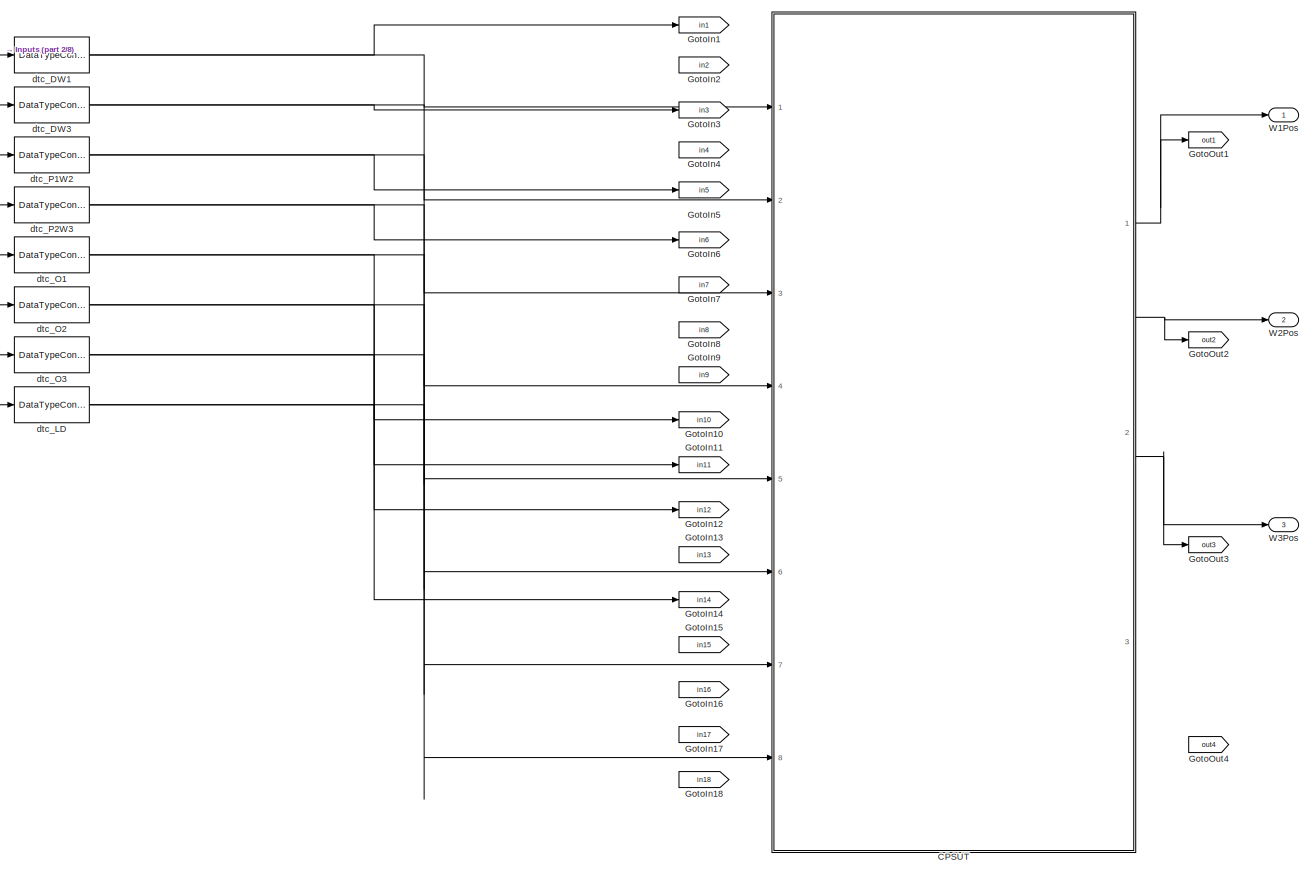
[diagram: root canvas - part 1/8, top left region]
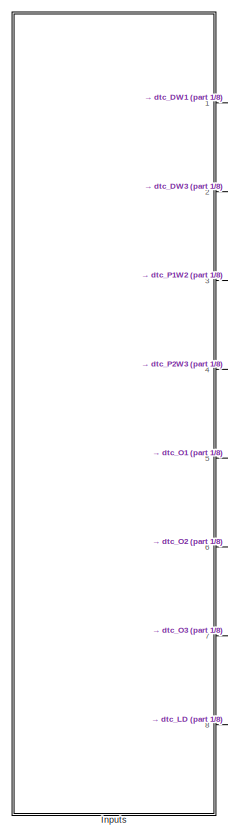
[diagram: root canvas - part 2/8, top left region]
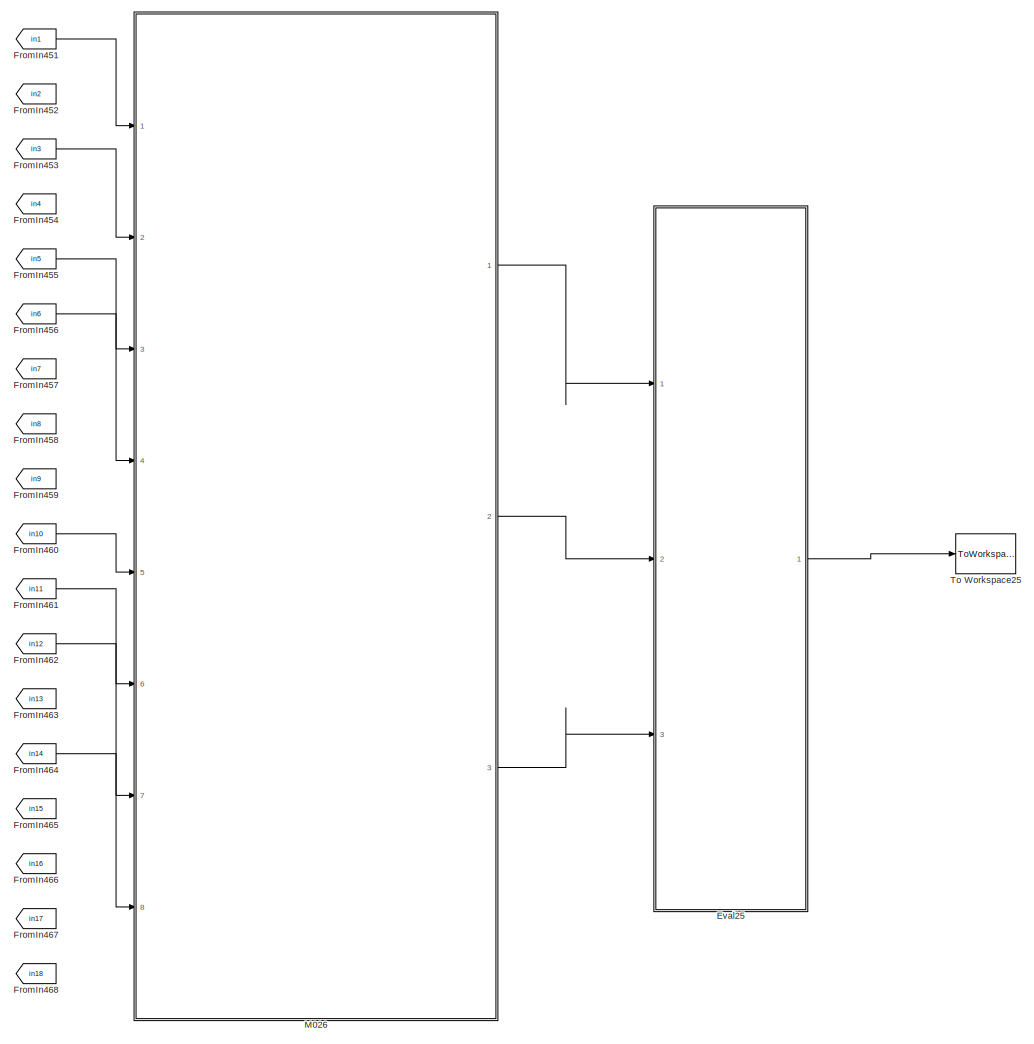
[diagram: root canvas - part 3/8, top center region]
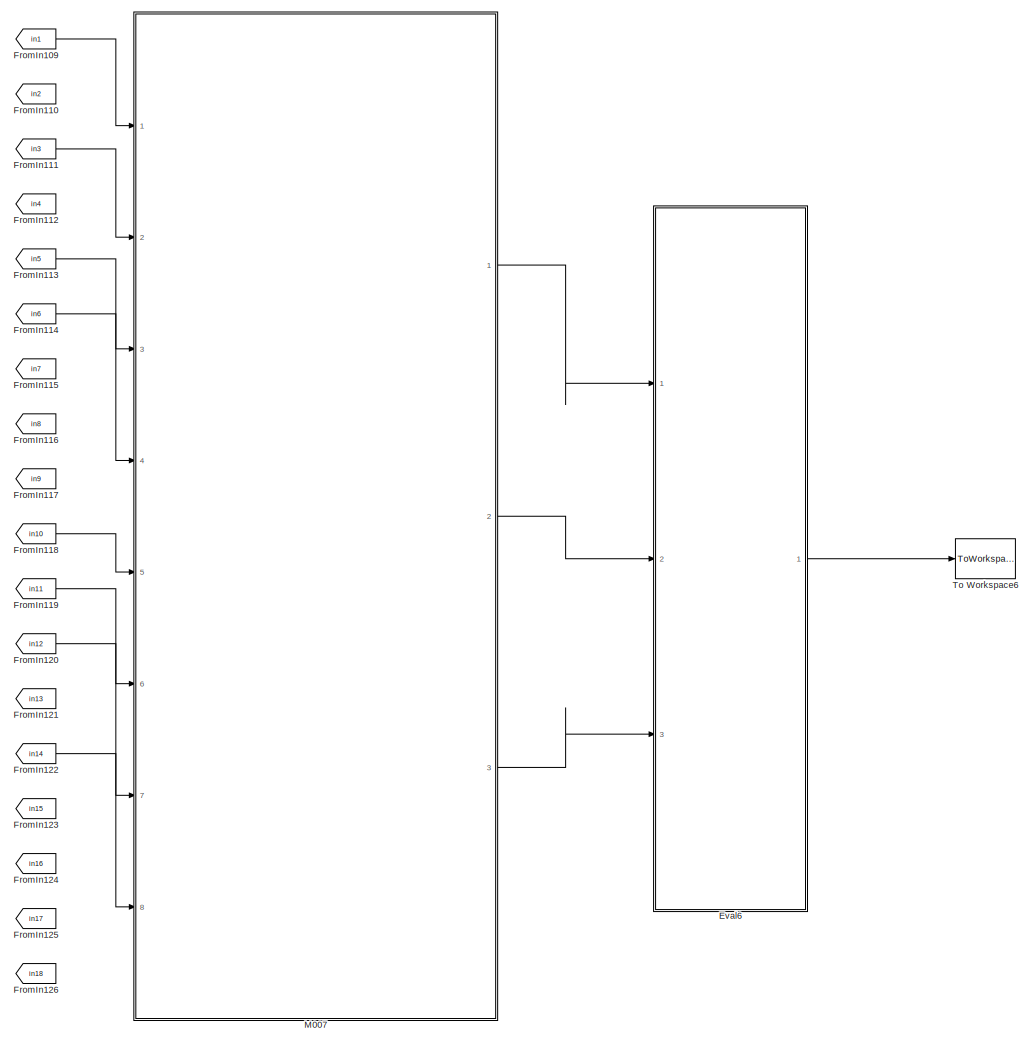
[diagram: root canvas - part 4/8, central region]
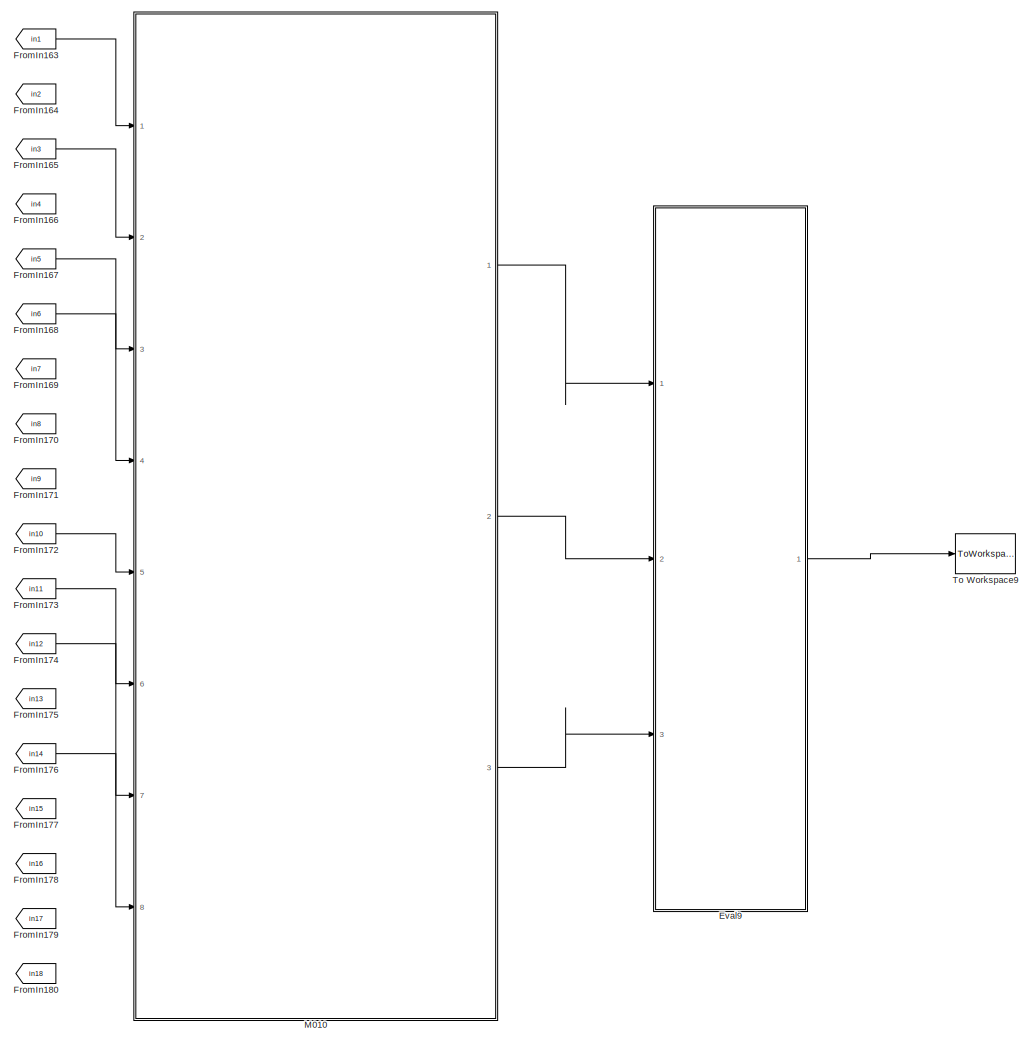
[diagram: root canvas - part 5/8, central region]
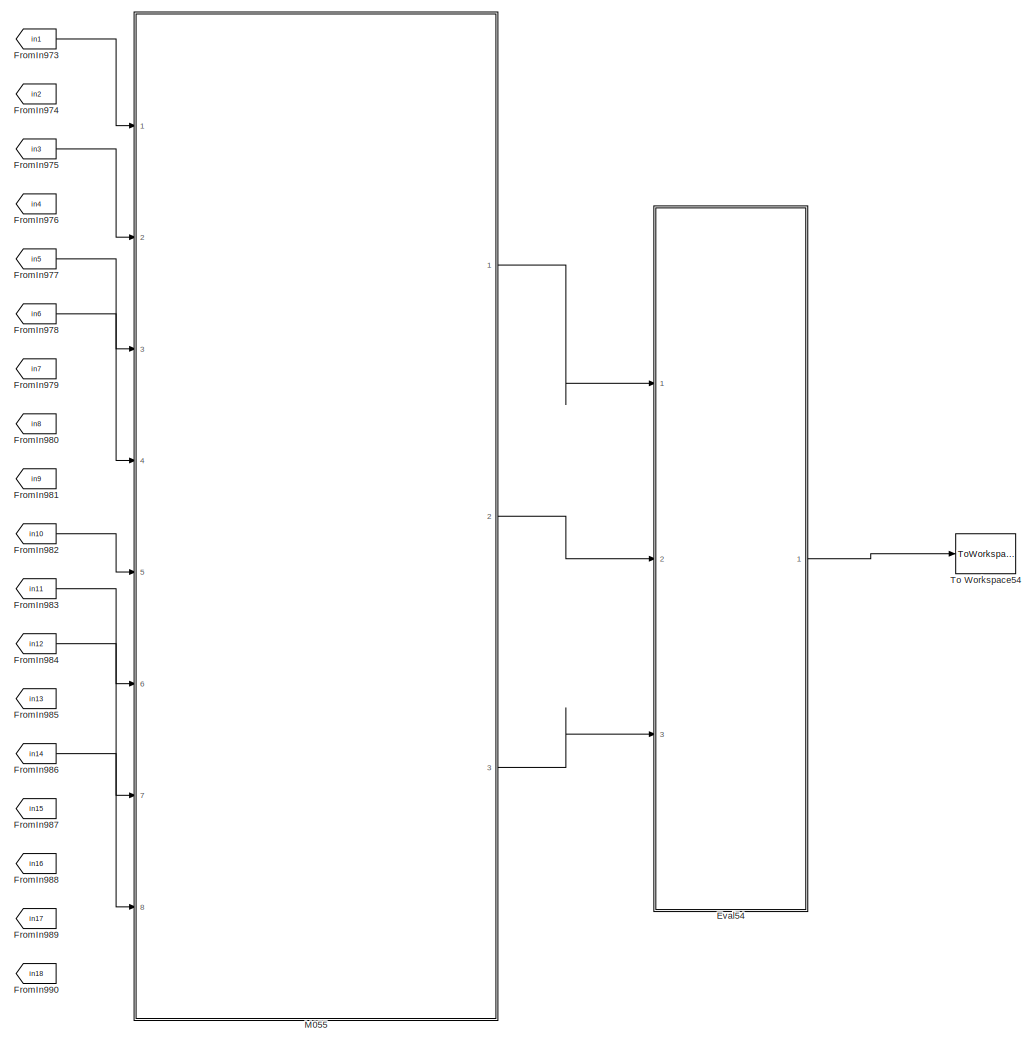
[diagram: root canvas - part 6/8, bottom right region]
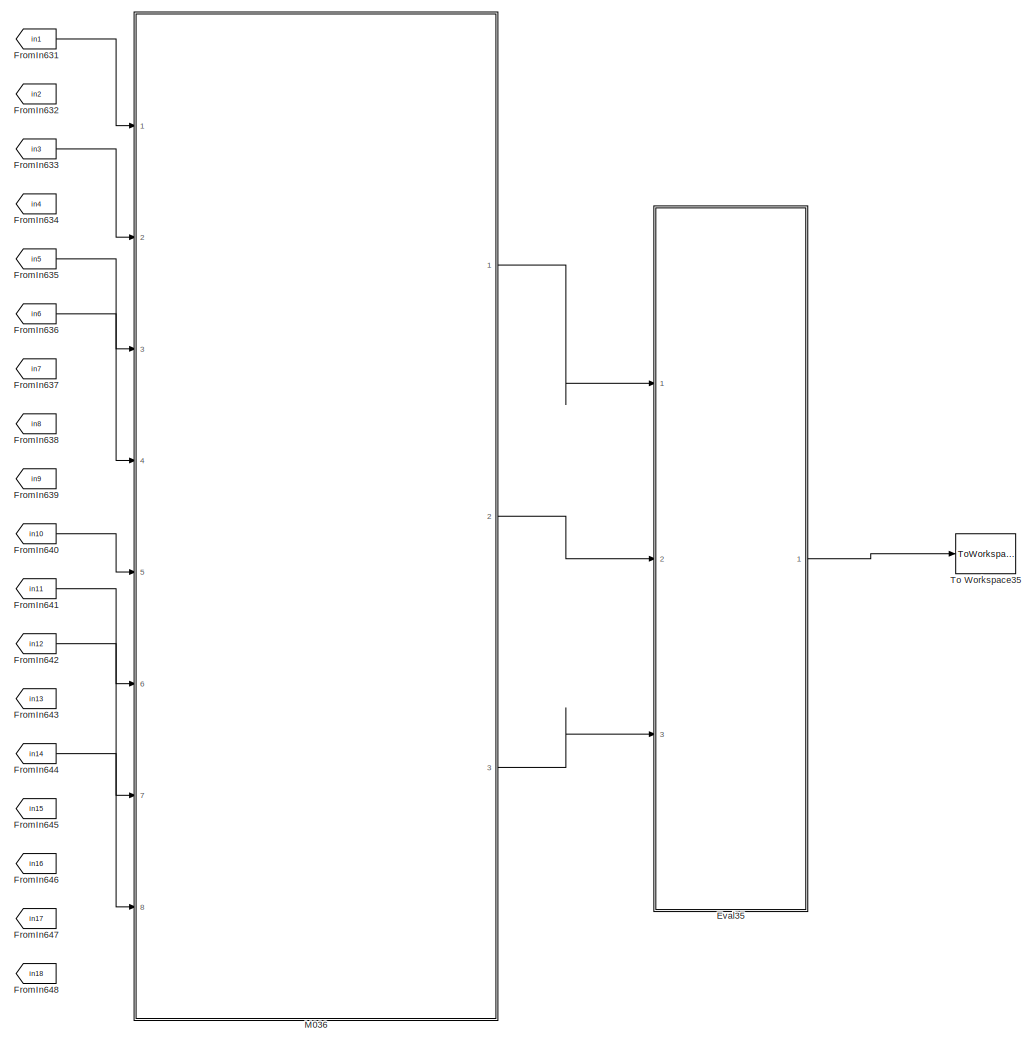
[diagram: root canvas - part 7/8, bottom center region]
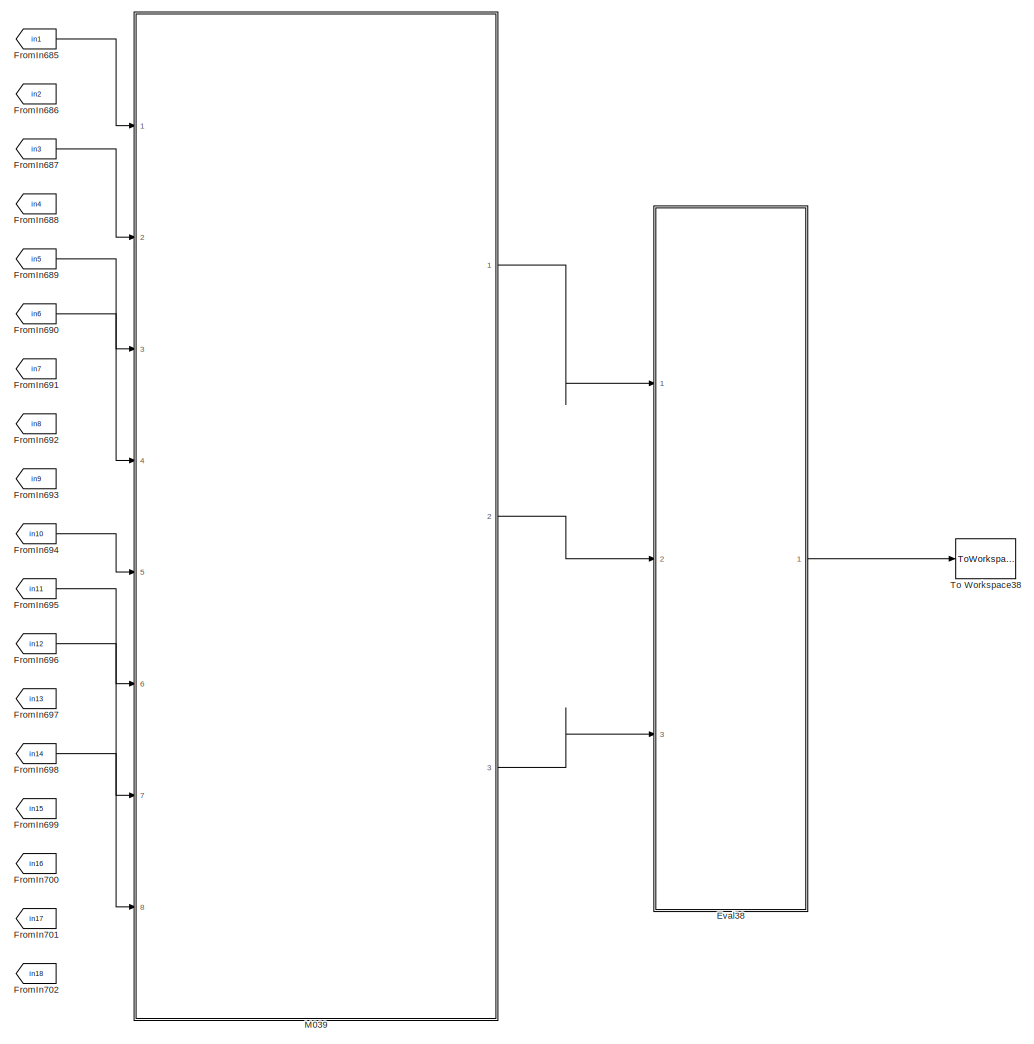
[diagram: root canvas - part 8/8, bottom center region]
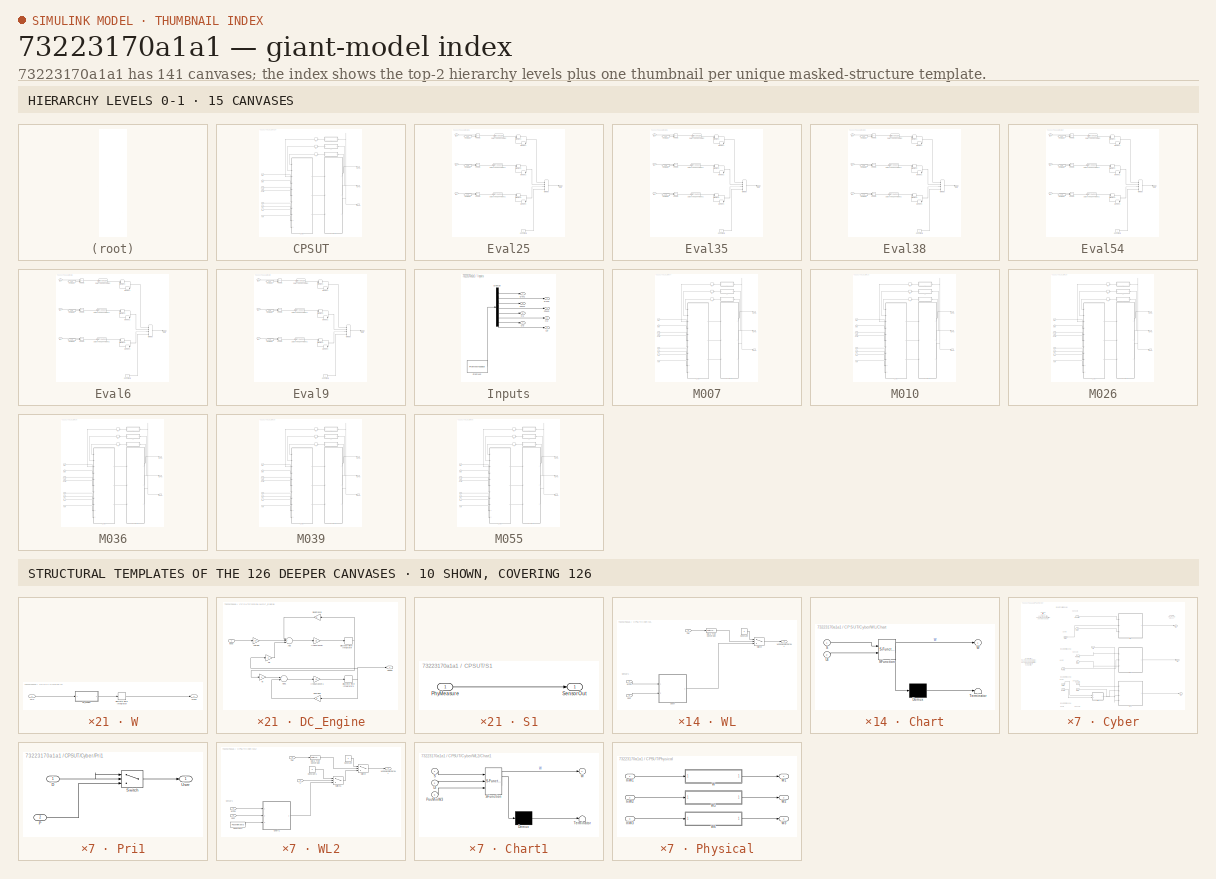
[diagram: thumbnail index - top-2 hierarchy levels (15 canvases) + 10 structural-template representatives of the remaining 126 canvases]
MODEL slx_73223170a1a1
KIND model
CONFIG AbsTol = auto
CONFIG EnableMultiTasking = on
CONFIG FixedStep = auto
CONFIG MaxStep = auto
CONFIG MinStep = auto
CONFIG RelTol = 1e-3
CONFIG SampleTimeConstraint = Unconstrained
CONFIG Solver = ode3
CONFIG SolverName = ode3
CONFIG StartTime = 0.0
CONFIG StopTime = 10.0
BLOCK [SubSystem] CPSUT
  Ports = [8, 3]
  RequestExecContextInheritance = off
BLOCK [SubSystem] CPSUT/Cyber
  Ports = [11, 3]
  RequestExecContextInheritance = off
BLOCK [Inport] CPSUT/Cyber/DW1
  IconDisplay = Port number
  Port = 4
BLOCK [Inport] CPSUT/Cyber/DW3
  IconDisplay = Port number
  Port = 5
BLOCK [Inport] CPSUT/Cyber/LD
  IconDisplay = Port number
  Port = 11
BLOCK [Inport] CPSUT/Cyber/OW1
  IconDisplay = Port number
  Port = 8
BLOCK [Inport] CPSUT/Cyber/OW2
  IconDisplay = Port number
  Port = 9
BLOCK [Inport] CPSUT/Cyber/OW3
  IconDisplay = Port number
  Port = 10
BLOCK [Inport] CPSUT/Cyber/P1W2
  IconDisplay = Port number
  Port = 6
BLOCK [Inport] CPSUT/Cyber/P2W3
  IconDisplay = Port number
  Port = 7
BLOCK [Inport] CPSUT/Cyber/PosW1
  IconDisplay = Port number
BLOCK [Inport] CPSUT/Cyber/PosW2
  IconDisplay = Port number
  Port = 2
BLOCK [Inport] CPSUT/Cyber/PosW3
  IconDisplay = Port number
  Port = 3
BLOCK [SubSystem] CPSUT/Cyber/Pri1
  Ports = [2, 1]
  RequestExecContextInheritance = off
BLOCK [Inport] CPSUT/Cyber/Pri1/D
  IconDisplay = Port number
BLOCK [Inport] CPSUT/Cyber/Pri1/P
  IconDisplay = Port number
  Port = 2
BLOCK [Switch] CPSUT/Cyber/Pri1/Switch
  Criteria = u2 ~= 0
  InputSameDT = off
  SaturateOnIntegerOverflow = off
BLOCK [Outport] CPSUT/Cyber/Pri1/User
  IconDisplay = Port number
BLOCK [Outport] CPSUT/Cyber/W1
  IconDisplay = Port number
BLOCK [Outport] CPSUT/Cyber/W2
  IconDisplay = Port number
  Port = 2
BLOCK [Outport] CPSUT/Cyber/W3
  IconDisplay = Port number
  Port = 3
BLOCK [SubSystem] CPSUT/Cyber/WL
  Ports = [3, 1]
  RequestExecContextInheritance = off
BLOCK [SubSystem] CPSUT/Cyber/WL/Chart
  ErrorFcn = Stateflow.Translate.translate
  PermitHierarchicalResolution = ExplicitOnly
  Ports = [2, 1]
  RequestExecContextInheritance = off
  SFBlockType = Chart
  TreatAsAtomicUnit = on
BLOCK [Demux] CPSUT/Cyber/WL/Chart/ Demux 
  Outputs = 1
  Ports = [1, 1]
BLOCK [S-Function] CPSUT/Cyber/WL/Chart/ SFunction 
  EnableBusSupport = off
  FunctionName = sf_sfun
  PortCounts = [2 2]
  Ports = [2, 2]
  SFcnIsStateOwnerBlock = off
  SFunctionDeploymentMode = off
  Tag = Stateflow S-Function c00027M_harness 1
BLOCK [Terminator] CPSUT/Cyber/WL/Chart/ Terminator 
BLOCK [Inport] CPSUT/Cyber/WL/Chart/S
  IconDisplay = Port number
BLOCK [Inport] CPSUT/Cyber/WL/Chart/UI
  IconDisplay = Port number
  Port = 2
BLOCK [Outport] CPSUT/Cyber/WL/Chart/W
  IconDisplay = Port number
BLOCK [Constant] CPSUT/Cyber/WL/Constant
  Value = -1
BLOCK [DataTypeConversion] CPSUT/Cyber/WL/Data Type Conversion
  RndMeth = Floor
  SaturateOnIntegerOverflow = off
BLOCK [Inport] CPSUT/Cyber/WL/OW
  IconDisplay = Port number
  Port = 3
BLOCK [Switch] CPSUT/Cyber/WL/Switch
  Criteria = u2 ~= 0
  InputSameDT = off
  SaturateOnIntegerOverflow = off
  Threshold = 1
  ZeroCross = off
BLOCK [Inport] CPSUT/Cyber/WL/User
  IconDisplay = Port number
  Port = 2
BLOCK [Inport] CPSUT/Cyber/WL/WPos
  IconDisplay = Port number
BLOCK [Outport] CPSUT/Cyber/WL/WindowLogicOutput
  IconDisplay = Port number
BLOCK [SubSystem] CPSUT/Cyber/WL1
  Ports = [3, 1]
  RequestExecContextInheritance = off
BLOCK [SubSystem] CPSUT/Cyber/WL1/Chart1
  ErrorFcn = Stateflow.Translate.translate
  PermitHierarchicalResolution = ExplicitOnly
  Ports = [2, 1]
  RequestExecContextInheritance = off
  SFBlockType = Chart
  TreatAsAtomicUnit = on
BLOCK [Demux] CPSUT/Cyber/WL1/Chart1/ Demux 
  Outputs = 1
  Ports = [1, 1]
BLOCK [S-Function] CPSUT/Cyber/WL1/Chart1/ SFunction 
  EnableBusSupport = off
  FunctionName = sf_sfun
  PortCounts = [2 2]
  Ports = [2, 2]
  SFcnIsStateOwnerBlock = off
  SFunctionDeploymentMode = off
  Tag = Stateflow S-Function c00027M_harness 3
BLOCK [Terminator] CPSUT/Cyber/WL1/Chart1/ Terminator 
BLOCK [Inport] CPSUT/Cyber/WL1/Chart1/S
  IconDisplay = Port number
BLOCK [Inport] CPSUT/Cyber/WL1/Chart1/UI
  IconDisplay = Port number
  Port = 2
BLOCK [Outport] CPSUT/Cyber/WL1/Chart1/W
  IconDisplay = Port number
BLOCK [Constant] CPSUT/Cyber/WL1/Constant
  Value = -1
BLOCK [DataTypeConversion] CPSUT/Cyber/WL1/Data Type Conversion
  RndMeth = Floor
  SaturateOnIntegerOverflow = off
BLOCK [Inport] CPSUT/Cyber/WL1/OW
  IconDisplay = Port number
  Port = 3
BLOCK [Switch] CPSUT/Cyber/WL1/Switch
  Criteria = u2 ~= 0
  InputSameDT = off
  SaturateOnIntegerOverflow = off
  Threshold = 1
  ZeroCross = off
BLOCK [Inport] CPSUT/Cyber/WL1/User
  IconDisplay = Port number
  Port = 2
BLOCK [Inport] CPSUT/Cyber/WL1/WPos
  IconDisplay = Port number
BLOCK [Outport] CPSUT/Cyber/WL1/WindowLogicOutput
  IconDisplay = Port number
BLOCK [SubSystem] CPSUT/Cyber/WL2
  Ports = [4, 1]
  RequestExecContextInheritance = off
BLOCK [SubSystem] CPSUT/Cyber/WL2/Chart1
  ErrorFcn = Stateflow.Translate.translate
  PermitHierarchicalResolution = ExplicitOnly
  Ports = [3, 1]
  RequestExecContextInheritance = off
  SFBlockType = Chart
  TreatAsAtomicUnit = on
BLOCK [Demux] CPSUT/Cyber/WL2/Chart1/ Demux 
  Outputs = 1
  Ports = [1, 1]
BLOCK [S-Function] CPSUT/Cyber/WL2/Chart1/ SFunction 
  EnableBusSupport = off
  FunctionName = sf_sfun
  PortCounts = [3 2]
  Ports = [3, 2]
  SFcnIsStateOwnerBlock = off
  SFunctionDeploymentMode = off
  Tag = Stateflow S-Function c00027M_harness 2
BLOCK [Terminator] CPSUT/Cyber/WL2/Chart1/ Terminator 
BLOCK [Inport] CPSUT/Cyber/WL2/Chart1/PosMinW3
  IconDisplay = Port number
  Port = 3
BLOCK [Inport] CPSUT/Cyber/WL2/Chart1/S
  IconDisplay = Port number
BLOCK [Inport] CPSUT/Cyber/WL2/Chart1/UI
  IconDisplay = Port number
  Port = 2
BLOCK [Outport] CPSUT/Cyber/WL2/Chart1/W
  IconDisplay = Port number
BLOCK [Constant] CPSUT/Cyber/WL2/Constant
  Value = -1
BLOCK [Constant] CPSUT/Cyber/WL2/Constant1
  Value = 0
BLOCK [Constant] CPSUT/Cyber/WL2/Constant2
  Value = PosMinimaW3
BLOCK [DataTypeConversion] CPSUT/Cyber/WL2/Data Type Conversion
  RndMeth = Floor
  SaturateOnIntegerOverflow = off
BLOCK [Inport] CPSUT/Cyber/WL2/L
  IconDisplay = Port number
  Port = 4
BLOCK [Inport] CPSUT/Cyber/WL2/OW
  IconDisplay = Port number
  Port = 3
BLOCK [Switch] CPSUT/Cyber/WL2/Switch
  Criteria = u2 ~= 0
  InputSameDT = off
  SaturateOnIntegerOverflow = off
  Threshold = 1
  ZeroCross = off
BLOCK [Switch] CPSUT/Cyber/WL2/Switch1
  Criteria = u2 ~= 0
  InputSameDT = off
  SaturateOnIntegerOverflow = off
BLOCK [Inport] CPSUT/Cyber/WL2/User
  IconDisplay = Port number
  Port = 2
BLOCK [Inport] CPSUT/Cyber/WL2/WPos
  IconDisplay = Port number
BLOCK [Outport] CPSUT/Cyber/WL2/WindowLogicOutput
  IconDisplay = Port number
BLOCK [Inport] CPSUT/DW1
  IconDisplay = Port number
  OutDataTypeStr = int8
  OutMax = 4
  OutMin = 0
BLOCK [Inport] CPSUT/DW3
  IconDisplay = Port number
  OutDataTypeStr = int8
  OutMax = 4
  OutMin = 0
  Port = 2
BLOCK [Inport] CPSUT/LD
  IconDisplay = Port number
  OutDataTypeStr = boolean
  Port = 8
BLOCK [Memory] CPSUT/M
BLOCK [Memory] CPSUT/M1
BLOCK [Memory] CPSUT/M2
BLOCK [Inport] CPSUT/O1
  IconDisplay = Port number
  OutDataTypeStr = boolean
  Port = 5
BLOCK [Inport] CPSUT/O2
  IconDisplay = Port number
  OutDataTypeStr = boolean
  Port = 6
BLOCK [Inport] CPSUT/O3
  IconDisplay = Port number
  OutDataTypeStr = boolean
  Port = 7
BLOCK [Inport] CPSUT/P1W2
  IconDisplay = Port number
  OutDataTypeStr = int8
  OutMax = 4
  OutMin = 0
  Port = 3
BLOCK [Inport] CPSUT/P2W3
  IconDisplay = Port number
  OutDataTypeStr = int8
  OutMax = 4
  OutMin = 0
  Port = 4
BLOCK [SubSystem] CPSUT/Physical
  Ports = [3, 3]
  RequestExecContextInheritance = off
BLOCK [Inport] CPSUT/Physical/InW1
  IconDisplay = Port number
BLOCK [Inport] CPSUT/Physical/InW2
  IconDisplay = Port number
  Port = 2
BLOCK [Inport] CPSUT/Physical/InW3
  IconDisplay = Port number
  Port = 3
BLOCK [SubSystem] CPSUT/Physical/W
  Ports = [1, 1]
  RequestExecContextInheritance = off
BLOCK [SubSystem] CPSUT/Physical/W/DC_Engine
  Ports = [1, 1]
  RequestExecContextInheritance = off
BLOCK [Gain] CPSUT/Physical/W/DC_Engine/(Inductance)
  Gain = 1/L
  OutDataTypeStr = Inherit: Inherit via internal rule
  ParamDataTypeStr = Inherit: Inherit via internal rule
  SaturateOnIntegerOverflow = off
BLOCK [Gain] CPSUT/Physical/W/DC_Engine/(Inductance)1
  Gain = 1/J
  OutDataTypeStr = Inherit: Inherit via internal rule
  ParamDataTypeStr = Inherit: Inherit via internal rule
  SaturateOnIntegerOverflow = off
BLOCK [Sum] CPSUT/Physical/W/DC_Engine/Add
  InputSameDT = off
  Inputs = -+-
  OutDataTypeStr = Inherit: Inherit via internal rule
  Ports = [3, 1]
  SaturateOnIntegerOverflow = off
BLOCK [Sum] CPSUT/Physical/W/DC_Engine/Add1
  InputSameDT = off
  Inputs = +-
  OutDataTypeStr = Inherit: Inherit via internal rule
  Ports = [2, 1]
  SaturateOnIntegerOverflow = off
BLOCK [Gain] CPSUT/Physical/W/DC_Engine/Damping
  Gain = b
  OutDataTypeStr = Inherit: Inherit via internal rule
  ParamDataTypeStr = Inherit: Inherit via internal rule
  SaturateOnIntegerOverflow = off
BLOCK [DiscreteIntegrator] CPSUT/Physical/W/DC_Engine/Discrete-Time Integrator
  ICPrevOutput = DiscIntNeverNeededParam
  ICPrevScaledInput = DiscIntNeverNeededParam
  Ports = [1, 1]
  SampleTime = -1
BLOCK [DiscreteIntegrator] CPSUT/Physical/W/DC_Engine/Discrete-Time Integrator1
  ICPrevOutput = DiscIntNeverNeededParam
  ICPrevScaledInput = DiscIntNeverNeededParam
  Ports = [1, 1]
  SampleTime = -1
BLOCK [Gain] CPSUT/Physical/W/DC_Engine/Ke
  Gain = K
  OutDataTypeStr = Inherit: Inherit via internal rule
  ParamDataTypeStr = Inherit: Inherit via internal rule
  SaturateOnIntegerOverflow = off
BLOCK [Gain] CPSUT/Physical/W/DC_Engine/Kt
  Gain = K
  OutDataTypeStr = Inherit: Inherit via internal rule
  ParamDataTypeStr = Inherit: Inherit via internal rule
  SaturateOnIntegerOverflow = off
BLOCK [Gain] CPSUT/Physical/W/DC_Engine/Resistance
  Gain = R
  OutDataTypeStr = Inherit: Inherit via internal rule
  ParamDataTypeStr = Inherit: Inherit via internal rule
  SaturateOnIntegerOverflow = off
BLOCK [Outport] CPSUT/Physical/W/DC_Engine/Speed
  IconDisplay = Port number
BLOCK [Gain] CPSUT/Physical/W/DC_Engine/Voltage
  Gain = 10
  OutDataTypeStr = Inherit: Inherit via internal rule
  ParamDataTypeStr = Inherit: Inherit via internal rule
  SaturateOnIntegerOverflow = off
BLOCK [Inport] CPSUT/Physical/W/DC_Engine/input
  IconDisplay = Port number
BLOCK [DiscreteIntegrator] CPSUT/Physical/W/Discrete-Time Integrator
  ICPrevOutput = DiscIntNeverNeededParam
  ICPrevScaledInput = DiscIntNeverNeededParam
  InitialCondition = 5
  LimitOutput = on
  LowerSaturationLimit = 0
  Ports = [1, 1]
  SampleTime = -1
  UpperSaturationLimit = 5
BLOCK [Inport] CPSUT/Physical/W/WIn
  IconDisplay = Port number
BLOCK [Outport] CPSUT/Physical/W/WPos
  IconDisplay = Port number
BLOCK [Outport] CPSUT/Physical/W1
  IconDisplay = Port number
BLOCK [Outport] CPSUT/Physical/W2
  IconDisplay = Port number
  Port = 2
BLOCK [Outport] CPSUT/Physical/W3
  IconDisplay = Port number
  Port = 3
BLOCK [SubSystem] CPSUT/Physical/W5
  Ports = [1, 1]
  RequestExecContextInheritance = off
BLOCK [SubSystem] CPSUT/Physical/W5/DC_Engine
  Ports = [1, 1]
  RequestExecContextInheritance = off
BLOCK [Gain] CPSUT/Physical/W5/DC_Engine/(Inductance)
  Gain = 1/L
  OutDataTypeStr = Inherit: Inherit via internal rule
  ParamDataTypeStr = Inherit: Inherit via internal rule
  SaturateOnIntegerOverflow = off
BLOCK [Gain] CPSUT/Physical/W5/DC_Engine/(Inductance)1
  Gain = 1/J
  OutDataTypeStr = Inherit: Inherit via internal rule
  ParamDataTypeStr = Inherit: Inherit via internal rule
  SaturateOnIntegerOverflow = off
BLOCK [Sum] CPSUT/Physical/W5/DC_Engine/Add
  InputSameDT = off
  Inputs = -+-
  OutDataTypeStr = Inherit: Inherit via internal rule
  Ports = [3, 1]
  SaturateOnIntegerOverflow = off
BLOCK [Sum] CPSUT/Physical/W5/DC_Engine/Add1
  InputSameDT = off
  Inputs = +-
  OutDataTypeStr = Inherit: Inherit via internal rule
  Ports = [2, 1]
  SaturateOnIntegerOverflow = off
BLOCK [Gain] CPSUT/Physical/W5/DC_Engine/Damping
  Gain = b
  OutDataTypeStr = Inherit: Inherit via internal rule
  ParamDataTypeStr = Inherit: Inherit via internal rule
  SaturateOnIntegerOverflow = off
BLOCK [DiscreteIntegrator] CPSUT/Physical/W5/DC_Engine/Discrete-Time Integrator
  ICPrevOutput = DiscIntNeverNeededParam
  ICPrevScaledInput = DiscIntNeverNeededParam
  Ports = [1, 1]
  SampleTime = -1
BLOCK [DiscreteIntegrator] CPSUT/Physical/W5/DC_Engine/Discrete-Time Integrator1
  ICPrevOutput = DiscIntNeverNeededParam
  ICPrevScaledInput = DiscIntNeverNeededParam
  Ports = [1, 1]
  SampleTime = -1
BLOCK [Gain] CPSUT/Physical/W5/DC_Engine/Ke
  Gain = K
  OutDataTypeStr = Inherit: Inherit via internal rule
  ParamDataTypeStr = Inherit: Inherit via internal rule
  SaturateOnIntegerOverflow = off
BLOCK [Gain] CPSUT/Physical/W5/DC_Engine/Kt
  Gain = K
  OutDataTypeStr = Inherit: Inherit via internal rule
  ParamDataTypeStr = Inherit: Inherit via internal rule
  SaturateOnIntegerOverflow = off
BLOCK [Gain] CPSUT/Physical/W5/DC_Engine/Resistance
  Gain = R
  OutDataTypeStr = Inherit: Inherit via internal rule
  ParamDataTypeStr = Inherit: Inherit via internal rule
  SaturateOnIntegerOverflow = off
BLOCK [Outport] CPSUT/Physical/W5/DC_Engine/Speed
  IconDisplay = Port number
BLOCK [Gain] CPSUT/Physical/W5/DC_Engine/Voltage
  Gain = 10
  OutDataTypeStr = Inherit: Inherit via internal rule
  ParamDataTypeStr = Inherit: Inherit via internal rule
  SaturateOnIntegerOverflow = off
BLOCK [Inport] CPSUT/Physical/W5/DC_Engine/input
  IconDisplay = Port number
BLOCK [DiscreteIntegrator] CPSUT/Physical/W5/Discrete-Time Integrator
  ICPrevOutput = DiscIntNeverNeededParam
  ICPrevScaledInput = DiscIntNeverNeededParam
  InitialCondition = 5
  LimitOutput = on
  LowerSaturationLimit = 0
  Ports = [1, 1]
  SampleTime = -1
  UpperSaturationLimit = 5
BLOCK [Inport] CPSUT/Physical/W5/WIn
  IconDisplay = Port number
BLOCK [Outport] CPSUT/Physical/W5/WPos
  IconDisplay = Port number
BLOCK [SubSystem] CPSUT/Physical/W6
  Ports = [1, 1]
  RequestExecContextInheritance = off
BLOCK [SubSystem] CPSUT/Physical/W6/DC_Engine
  Ports = [1, 1]
  RequestExecContextInheritance = off
BLOCK [Gain] CPSUT/Physical/W6/DC_Engine/(Inductance)
  Gain = 1/L
  OutDataTypeStr = Inherit: Inherit via internal rule
  ParamDataTypeStr = Inherit: Inherit via internal rule
  SaturateOnIntegerOverflow = off
BLOCK [Gain] CPSUT/Physical/W6/DC_Engine/(Inductance)1
  Gain = 1/J
  OutDataTypeStr = Inherit: Inherit via internal rule
  ParamDataTypeStr = Inherit: Inherit via internal rule
  SaturateOnIntegerOverflow = off
BLOCK [Sum] CPSUT/Physical/W6/DC_Engine/Add
  InputSameDT = off
  Inputs = -+-
  OutDataTypeStr = Inherit: Inherit via internal rule
  Ports = [3, 1]
  SaturateOnIntegerOverflow = off
BLOCK [Sum] CPSUT/Physical/W6/DC_Engine/Add1
  InputSameDT = off
  Inputs = +-
  OutDataTypeStr = Inherit: Inherit via internal rule
  Ports = [2, 1]
  SaturateOnIntegerOverflow = off
BLOCK [Gain] CPSUT/Physical/W6/DC_Engine/Damping
  Gain = b
  OutDataTypeStr = Inherit: Inherit via internal rule
  ParamDataTypeStr = Inherit: Inherit via internal rule
  SaturateOnIntegerOverflow = off
BLOCK [DiscreteIntegrator] CPSUT/Physical/W6/DC_Engine/Discrete-Time Integrator
  ICPrevOutput = DiscIntNeverNeededParam
  ICPrevScaledInput = DiscIntNeverNeededParam
  Ports = [1, 1]
  SampleTime = -1
BLOCK [DiscreteIntegrator] CPSUT/Physical/W6/DC_Engine/Discrete-Time Integrator1
  ICPrevOutput = DiscIntNeverNeededParam
  ICPrevScaledInput = DiscIntNeverNeededParam
  Ports = [1, 1]
  SampleTime = -1
BLOCK [Gain] CPSUT/Physical/W6/DC_Engine/Ke
  Gain = K
  OutDataTypeStr = Inherit: Inherit via internal rule
  ParamDataTypeStr = Inherit: Inherit via internal rule
  SaturateOnIntegerOverflow = off
BLOCK [Gain] CPSUT/Physical/W6/DC_Engine/Kt
  Gain = K
  OutDataTypeStr = Inherit: Inherit via internal rule
  ParamDataTypeStr = Inherit: Inherit via internal rule
  SaturateOnIntegerOverflow = off
BLOCK [Gain] CPSUT/Physical/W6/DC_Engine/Resistance
  Gain = R
  OutDataTypeStr = Inherit: Inherit via internal rule
  ParamDataTypeStr = Inherit: Inherit via internal rule
  SaturateOnIntegerOverflow = off
BLOCK [Outport] CPSUT/Physical/W6/DC_Engine/Speed
  IconDisplay = Port number
BLOCK [Gain] CPSUT/Physical/W6/DC_Engine/Voltage
  Gain = 10
  OutDataTypeStr = Inherit: Inherit via internal rule
  ParamDataTypeStr = Inherit: Inherit via internal rule
  SaturateOnIntegerOverflow = off
BLOCK [Inport] CPSUT/Physical/W6/DC_Engine/input
  IconDisplay = Port number
BLOCK [DiscreteIntegrator] CPSUT/Physical/W6/Discrete-Time Integrator
  ICPrevOutput = DiscIntNeverNeededParam
  ICPrevScaledInput = DiscIntNeverNeededParam
  InitialCondition = 5
  LimitOutput = on
  LowerSaturationLimit = PosMinimaW3
  Ports = [1, 1]
  SampleTime = -1
  UpperSaturationLimit = 5
BLOCK [Inport] CPSUT/Physical/W6/WIn
  IconDisplay = Port number
BLOCK [Outport] CPSUT/Physical/W6/WPos
  IconDisplay = Port number
BLOCK [SubSystem] CPSUT/S1
  Ports = [1, 1]
  RequestExecContextInheritance = off
BLOCK [Inport] CPSUT/S1/PhyMeasure
  IconDisplay = Port number
BLOCK [Outport] CPSUT/S1/SensorOut
  IconDisplay = Port number
BLOCK [SubSystem] CPSUT/S2
  Ports = [1, 1]
  RequestExecContextInheritance = off
BLOCK [Inport] CPSUT/S2/PhyMeasure
  IconDisplay = Port number
BLOCK [Outport] CPSUT/S2/SensorOut
  IconDisplay = Port number
BLOCK [SubSystem] CPSUT/S3
  Ports = [1, 1]
  RequestExecContextInheritance = off
BLOCK [Inport] CPSUT/S3/PhyMeasure
  IconDisplay = Port number
BLOCK [Outport] CPSUT/S3/SensorOut
  IconDisplay = Port number
BLOCK [Outport] CPSUT/W1Pos
  IconDisplay = Port number
BLOCK [Outport] CPSUT/W2Pos
  IconDisplay = Port number
  Port = 2
BLOCK [Outport] CPSUT/W3Pos
  IconDisplay = Port number
  Port = 3
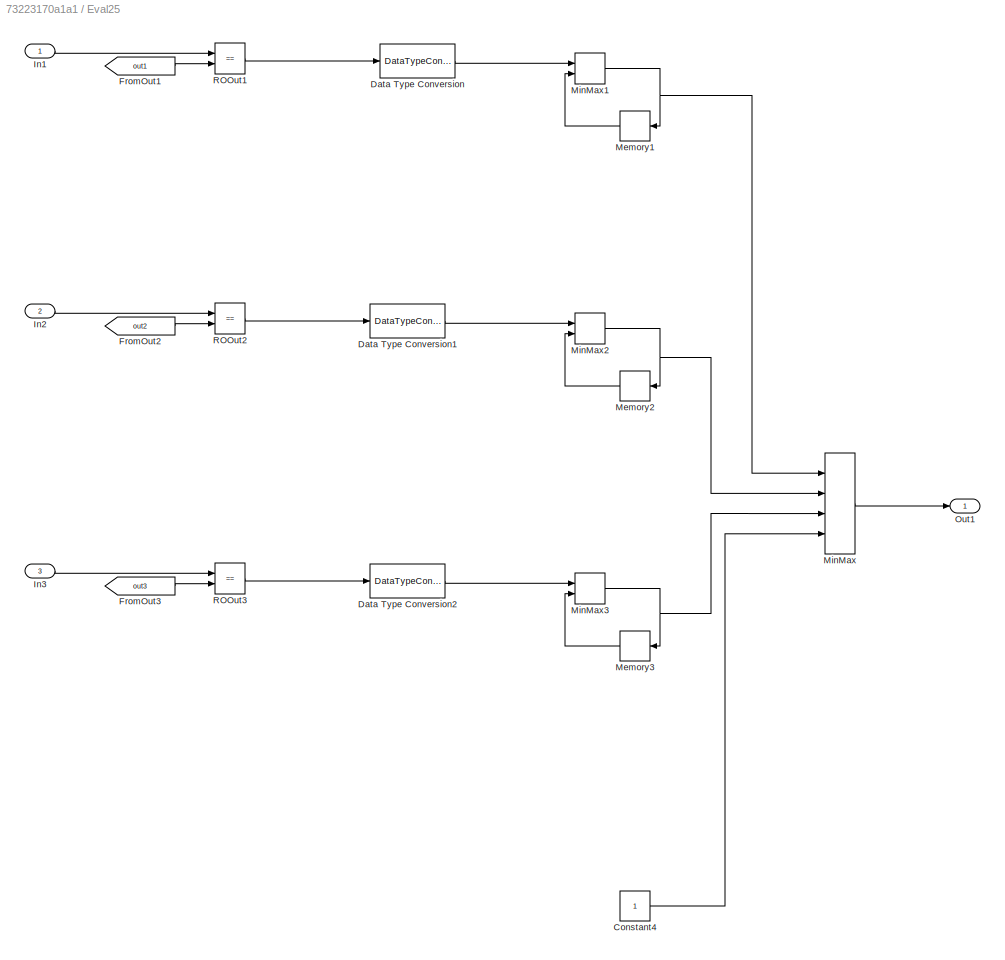
BLOCK [SubSystem] Eval25
  Ports = [3, 1]
  RequestExecContextInheritance = off
BLOCK [Constant] Eval25/Constant4
BLOCK [DataTypeConversion] Eval25/Data Type Conversion
  RndMeth = Floor
  SaturateOnIntegerOverflow = off
BLOCK [DataTypeConversion] Eval25/Data Type Conversion1
  RndMeth = Floor
  SaturateOnIntegerOverflow = off
BLOCK [DataTypeConversion] Eval25/Data Type Conversion2
  RndMeth = Floor
  SaturateOnIntegerOverflow = off
BLOCK [From] Eval25/FromOut1
  GotoTag = out1
BLOCK [From] Eval25/FromOut2
  GotoTag = out2
BLOCK [From] Eval25/FromOut3
  GotoTag = out3
BLOCK [Inport] Eval25/In1
  IconDisplay = Port number
BLOCK [Inport] Eval25/In2
  IconDisplay = Port number
  Port = 2
BLOCK [Inport] Eval25/In3
  IconDisplay = Port number
  Port = 3
BLOCK [Memory] Eval25/Memory1
  InitialCondition = 1
BLOCK [Memory] Eval25/Memory2
  InitialCondition = 1
BLOCK [Memory] Eval25/Memory3
  InitialCondition = 1
BLOCK [MinMax] Eval25/MinMax
  InputSameDT = off
  Inputs = 4
  Ports = [4, 1]
  SaturateOnIntegerOverflow = off
BLOCK [MinMax] Eval25/MinMax1
  InputSameDT = off
  Inputs = 2
  Ports = [2, 1]
  SaturateOnIntegerOverflow = off
BLOCK [MinMax] Eval25/MinMax2
  InputSameDT = off
  Inputs = 2
  Ports = [2, 1]
  SaturateOnIntegerOverflow = off
BLOCK [MinMax] Eval25/MinMax3
  InputSameDT = off
  Inputs = 2
  Ports = [2, 1]
  SaturateOnIntegerOverflow = off
BLOCK [Outport] Eval25/Out1
  IconDisplay = Port number
BLOCK [RelationalOperator] Eval25/ROOut1
  InputSameDT = off
  Operator = ==
  OutDataTypeStr = boolean
  Ports = [2, 1]
  RndMeth = Simplest
BLOCK [RelationalOperator] Eval25/ROOut2
  InputSameDT = off
  Operator = ==
  OutDataTypeStr = boolean
  Ports = [2, 1]
  RndMeth = Simplest
BLOCK [RelationalOperator] Eval25/ROOut3
  InputSameDT = off
  Operator = ==
  OutDataTypeStr = boolean
  Ports = [2, 1]
  RndMeth = Simplest
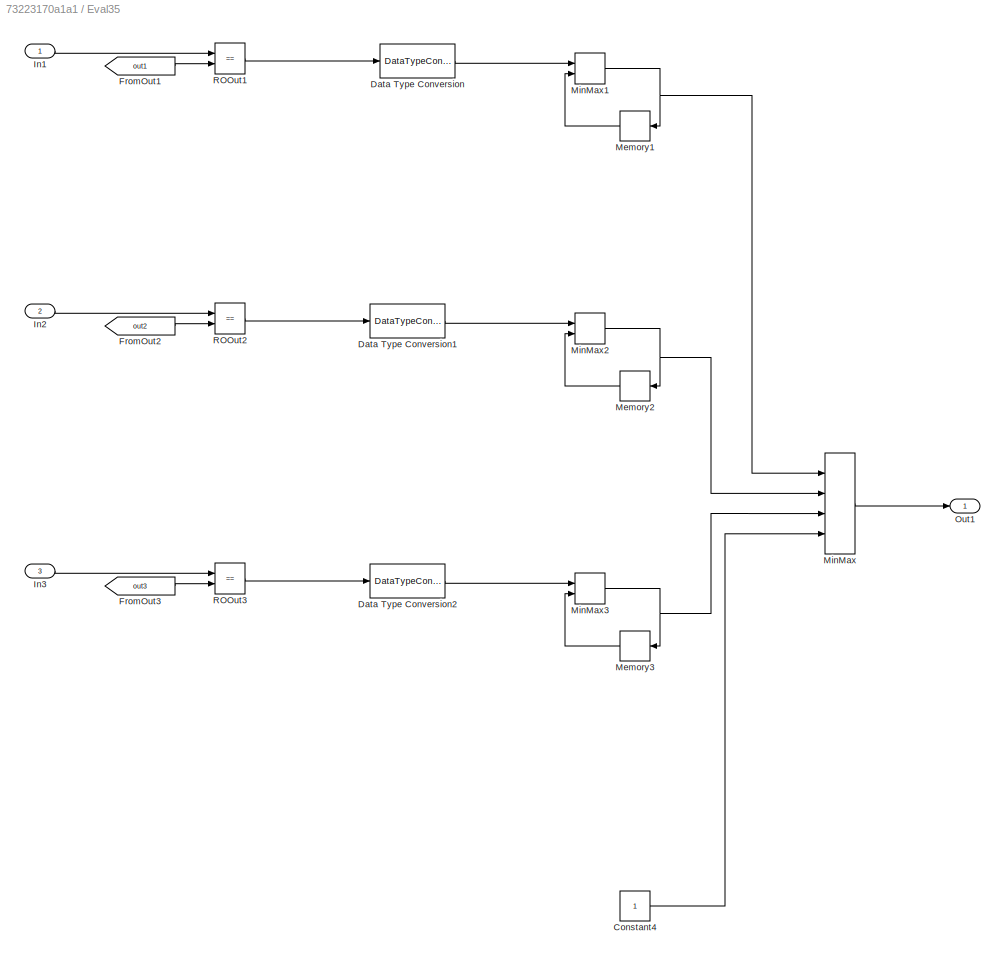
BLOCK [SubSystem] Eval35
  Ports = [3, 1]
  RequestExecContextInheritance = off
BLOCK [Constant] Eval35/Constant4
BLOCK [DataTypeConversion] Eval35/Data Type Conversion
  RndMeth = Floor
  SaturateOnIntegerOverflow = off
BLOCK [DataTypeConversion] Eval35/Data Type Conversion1
  RndMeth = Floor
  SaturateOnIntegerOverflow = off
BLOCK [DataTypeConversion] Eval35/Data Type Conversion2
  RndMeth = Floor
  SaturateOnIntegerOverflow = off
BLOCK [From] Eval35/FromOut1
  GotoTag = out1
BLOCK [From] Eval35/FromOut2
  GotoTag = out2
BLOCK [From] Eval35/FromOut3
  GotoTag = out3
BLOCK [Inport] Eval35/In1
  IconDisplay = Port number
BLOCK [Inport] Eval35/In2
  IconDisplay = Port number
  Port = 2
BLOCK [Inport] Eval35/In3
  IconDisplay = Port number
  Port = 3
BLOCK [Memory] Eval35/Memory1
  InitialCondition = 1
BLOCK [Memory] Eval35/Memory2
  InitialCondition = 1
BLOCK [Memory] Eval35/Memory3
  InitialCondition = 1
BLOCK [MinMax] Eval35/MinMax
  InputSameDT = off
  Inputs = 4
  Ports = [4, 1]
  SaturateOnIntegerOverflow = off
BLOCK [MinMax] Eval35/MinMax1
  InputSameDT = off
  Inputs = 2
  Ports = [2, 1]
  SaturateOnIntegerOverflow = off
BLOCK [MinMax] Eval35/MinMax2
  InputSameDT = off
  Inputs = 2
  Ports = [2, 1]
  SaturateOnIntegerOverflow = off
BLOCK [MinMax] Eval35/MinMax3
  InputSameDT = off
  Inputs = 2
  Ports = [2, 1]
  SaturateOnIntegerOverflow = off
BLOCK [Outport] Eval35/Out1
  IconDisplay = Port number
BLOCK [RelationalOperator] Eval35/ROOut1
  InputSameDT = off
  Operator = ==
  OutDataTypeStr = boolean
  Ports = [2, 1]
  RndMeth = Simplest
BLOCK [RelationalOperator] Eval35/ROOut2
  InputSameDT = off
  Operator = ==
  OutDataTypeStr = boolean
  Ports = [2, 1]
  RndMeth = Simplest
BLOCK [RelationalOperator] Eval35/ROOut3
  InputSameDT = off
  Operator = ==
  OutDataTypeStr = boolean
  Ports = [2, 1]
  RndMeth = Simplest
BLOCK [SubSystem] Eval38
  Ports = [3, 1]
  RequestExecContextInheritance = off
BLOCK [Constant] Eval38/Constant4
BLOCK [DataTypeConversion] Eval38/Data Type Conversion
  RndMeth = Floor
  SaturateOnIntegerOverflow = off
BLOCK [DataTypeConversion] Eval38/Data Type Conversion1
  RndMeth = Floor
  SaturateOnIntegerOverflow = off
BLOCK [DataTypeConversion] Eval38/Data Type Conversion2
  RndMeth = Floor
  SaturateOnIntegerOverflow = off
BLOCK [From] Eval38/FromOut1
  GotoTag = out1
BLOCK [From] Eval38/FromOut2
  GotoTag = out2
BLOCK [From] Eval38/FromOut3
  GotoTag = out3
BLOCK [Inport] Eval38/In1
  IconDisplay = Port number
BLOCK [Inport] Eval38/In2
  IconDisplay = Port number
  Port = 2
BLOCK [Inport] Eval38/In3
  IconDisplay = Port number
  Port = 3
BLOCK [Memory] Eval38/Memory1
  InitialCondition = 1
BLOCK [Memory] Eval38/Memory2
  InitialCondition = 1
BLOCK [Memory] Eval38/Memory3
  InitialCondition = 1
BLOCK [MinMax] Eval38/MinMax
  InputSameDT = off
  Inputs = 4
  Ports = [4, 1]
  SaturateOnIntegerOverflow = off
BLOCK [MinMax] Eval38/MinMax1
  InputSameDT = off
  Inputs = 2
  Ports = [2, 1]
  SaturateOnIntegerOverflow = off
BLOCK [MinMax] Eval38/MinMax2
  InputSameDT = off
  Inputs = 2
  Ports = [2, 1]
  SaturateOnIntegerOverflow = off
BLOCK [MinMax] Eval38/MinMax3
  InputSameDT = off
  Inputs = 2
  Ports = [2, 1]
  SaturateOnIntegerOverflow = off
BLOCK [Outport] Eval38/Out1
  IconDisplay = Port number
BLOCK [RelationalOperator] Eval38/ROOut1
  InputSameDT = off
  Operator = ==
  OutDataTypeStr = boolean
  Ports = [2, 1]
  RndMeth = Simplest
BLOCK [RelationalOperator] Eval38/ROOut2
  InputSameDT = off
  Operator = ==
  OutDataTypeStr = boolean
  Ports = [2, 1]
  RndMeth = Simplest
BLOCK [RelationalOperator] Eval38/ROOut3
  InputSameDT = off
  Operator = ==
  OutDataTypeStr = boolean
  Ports = [2, 1]
  RndMeth = Simplest
BLOCK [SubSystem] Eval54
  Ports = [3, 1]
  RequestExecContextInheritance = off
BLOCK [Constant] Eval54/Constant4
BLOCK [DataTypeConversion] Eval54/Data Type Conversion
  RndMeth = Floor
  SaturateOnIntegerOverflow = off
BLOCK [DataTypeConversion] Eval54/Data Type Conversion1
  RndMeth = Floor
  SaturateOnIntegerOverflow = off
BLOCK [DataTypeConversion] Eval54/Data Type Conversion2
  RndMeth = Floor
  SaturateOnIntegerOverflow = off
BLOCK [From] Eval54/FromOut1
  GotoTag = out1
BLOCK [From] Eval54/FromOut2
  GotoTag = out2
BLOCK [From] Eval54/FromOut3
  GotoTag = out3
BLOCK [Inport] Eval54/In1
  IconDisplay = Port number
BLOCK [Inport] Eval54/In2
  IconDisplay = Port number
  Port = 2
BLOCK [Inport] Eval54/In3
  IconDisplay = Port number
  Port = 3
BLOCK [Memory] Eval54/Memory1
  InitialCondition = 1
BLOCK [Memory] Eval54/Memory2
  InitialCondition = 1
BLOCK [Memory] Eval54/Memory3
  InitialCondition = 1
BLOCK [MinMax] Eval54/MinMax
  InputSameDT = off
  Inputs = 4
  Ports = [4, 1]
  SaturateOnIntegerOverflow = off
BLOCK [MinMax] Eval54/MinMax1
  InputSameDT = off
  Inputs = 2
  Ports = [2, 1]
  SaturateOnIntegerOverflow = off
BLOCK [MinMax] Eval54/MinMax2
  InputSameDT = off
  Inputs = 2
  Ports = [2, 1]
  SaturateOnIntegerOverflow = off
BLOCK [MinMax] Eval54/MinMax3
  InputSameDT = off
  Inputs = 2
  Ports = [2, 1]
  SaturateOnIntegerOverflow = off
BLOCK [Outport] Eval54/Out1
  IconDisplay = Port number
BLOCK [RelationalOperator] Eval54/ROOut1
  InputSameDT = off
  Operator = ==
  OutDataTypeStr = boolean
  Ports = [2, 1]
  RndMeth = Simplest
BLOCK [RelationalOperator] Eval54/ROOut2
  InputSameDT = off
  Operator = ==
  OutDataTypeStr = boolean
  Ports = [2, 1]
  RndMeth = Simplest
BLOCK [RelationalOperator] Eval54/ROOut3
  InputSameDT = off
  Operator = ==
  OutDataTypeStr = boolean
  Ports = [2, 1]
  RndMeth = Simplest
BLOCK [SubSystem] Eval6
  Ports = [3, 1]
  RequestExecContextInheritance = off
BLOCK [Constant] Eval6/Constant4
BLOCK [DataTypeConversion] Eval6/Data Type Conversion
  RndMeth = Floor
  SaturateOnIntegerOverflow = off
BLOCK [DataTypeConversion] Eval6/Data Type Conversion1
  RndMeth = Floor
  SaturateOnIntegerOverflow = off
BLOCK [DataTypeConversion] Eval6/Data Type Conversion2
  RndMeth = Floor
  SaturateOnIntegerOverflow = off
BLOCK [From] Eval6/FromOut1
  GotoTag = out1
BLOCK [From] Eval6/FromOut2
  GotoTag = out2
BLOCK [From] Eval6/FromOut3
  GotoTag = out3
BLOCK [Inport] Eval6/In1
  IconDisplay = Port number
BLOCK [Inport] Eval6/In2
  IconDisplay = Port number
  Port = 2
BLOCK [Inport] Eval6/In3
  IconDisplay = Port number
  Port = 3
BLOCK [Memory] Eval6/Memory1
  InitialCondition = 1
BLOCK [Memory] Eval6/Memory2
  InitialCondition = 1
BLOCK [Memory] Eval6/Memory3
  InitialCondition = 1
BLOCK [MinMax] Eval6/MinMax
  InputSameDT = off
  Inputs = 4
  Ports = [4, 1]
  SaturateOnIntegerOverflow = off
BLOCK [MinMax] Eval6/MinMax1
  InputSameDT = off
  Inputs = 2
  Ports = [2, 1]
  SaturateOnIntegerOverflow = off
BLOCK [MinMax] Eval6/MinMax2
  InputSameDT = off
  Inputs = 2
  Ports = [2, 1]
  SaturateOnIntegerOverflow = off
BLOCK [MinMax] Eval6/MinMax3
  InputSameDT = off
  Inputs = 2
  Ports = [2, 1]
  SaturateOnIntegerOverflow = off
BLOCK [Outport] Eval6/Out1
  IconDisplay = Port number
BLOCK [RelationalOperator] Eval6/ROOut1
  InputSameDT = off
  Operator = ==
  OutDataTypeStr = boolean
  Ports = [2, 1]
  RndMeth = Simplest
BLOCK [RelationalOperator] Eval6/ROOut2
  InputSameDT = off
  Operator = ==
  OutDataTypeStr = boolean
  Ports = [2, 1]
  RndMeth = Simplest
BLOCK [RelationalOperator] Eval6/ROOut3
  InputSameDT = off
  Operator = ==
  OutDataTypeStr = boolean
  Ports = [2, 1]
  RndMeth = Simplest
BLOCK [SubSystem] Eval9
  Ports = [3, 1]
  RequestExecContextInheritance = off
BLOCK [Constant] Eval9/Constant4
BLOCK [DataTypeConversion] Eval9/Data Type Conversion
  RndMeth = Floor
  SaturateOnIntegerOverflow = off
BLOCK [DataTypeConversion] Eval9/Data Type Conversion1
  RndMeth = Floor
  SaturateOnIntegerOverflow = off
BLOCK [DataTypeConversion] Eval9/Data Type Conversion2
  RndMeth = Floor
  SaturateOnIntegerOverflow = off
BLOCK [From] Eval9/FromOut1
  GotoTag = out1
BLOCK [From] Eval9/FromOut2
  GotoTag = out2
BLOCK [From] Eval9/FromOut3
  GotoTag = out3
BLOCK [Inport] Eval9/In1
  IconDisplay = Port number
BLOCK [Inport] Eval9/In2
  IconDisplay = Port number
  Port = 2
BLOCK [Inport] Eval9/In3
  IconDisplay = Port number
  Port = 3
BLOCK [Memory] Eval9/Memory1
  InitialCondition = 1
BLOCK [Memory] Eval9/Memory2
  InitialCondition = 1
BLOCK [Memory] Eval9/Memory3
  InitialCondition = 1
BLOCK [MinMax] Eval9/MinMax
  InputSameDT = off
  Inputs = 4
  Ports = [4, 1]
  SaturateOnIntegerOverflow = off
BLOCK [MinMax] Eval9/MinMax1
  InputSameDT = off
  Inputs = 2
  Ports = [2, 1]
  SaturateOnIntegerOverflow = off
BLOCK [MinMax] Eval9/MinMax2
  InputSameDT = off
  Inputs = 2
  Ports = [2, 1]
  SaturateOnIntegerOverflow = off
BLOCK [MinMax] Eval9/MinMax3
  InputSameDT = off
  Inputs = 2
  Ports = [2, 1]
  SaturateOnIntegerOverflow = off
BLOCK [Outport] Eval9/Out1
  IconDisplay = Port number
BLOCK [RelationalOperator] Eval9/ROOut1
  InputSameDT = off
  Operator = ==
  OutDataTypeStr = boolean
  Ports = [2, 1]
  RndMeth = Simplest
BLOCK [RelationalOperator] Eval9/ROOut2
  InputSameDT = off
  Operator = ==
  OutDataTypeStr = boolean
  Ports = [2, 1]
  RndMeth = Simplest
BLOCK [RelationalOperator] Eval9/ROOut3
  InputSameDT = off
  Operator = ==
  OutDataTypeStr = boolean
  Ports = [2, 1]
  RndMeth = Simplest
BLOCK [From] FromIn109
  GotoTag = in1
BLOCK [From] FromIn110
  GotoTag = in2
BLOCK [From] FromIn111
  GotoTag = in3
BLOCK [From] FromIn112
  GotoTag = in4
BLOCK [From] FromIn113
  GotoTag = in5
BLOCK [From] FromIn114
  GotoTag = in6
BLOCK [From] FromIn115
  GotoTag = in7
BLOCK [From] FromIn116
  GotoTag = in8
BLOCK [From] FromIn117
  GotoTag = in9
BLOCK [From] FromIn118
  GotoTag = in10
BLOCK [From] FromIn119
  GotoTag = in11
BLOCK [From] FromIn120
  GotoTag = in12
BLOCK [From] FromIn121
  GotoTag = in13
BLOCK [From] FromIn122
  GotoTag = in14
BLOCK [From] FromIn123
  GotoTag = in15
BLOCK [From] FromIn124
  GotoTag = in16
BLOCK [From] FromIn125
  GotoTag = in17
BLOCK [From] FromIn126
  GotoTag = in18
BLOCK [From] FromIn163
  GotoTag = in1
BLOCK [From] FromIn164
  GotoTag = in2
BLOCK [From] FromIn165
  GotoTag = in3
BLOCK [From] FromIn166
  GotoTag = in4
BLOCK [From] FromIn167
  GotoTag = in5
BLOCK [From] FromIn168
  GotoTag = in6
BLOCK [From] FromIn169
  GotoTag = in7
BLOCK [From] FromIn170
  GotoTag = in8
BLOCK [From] FromIn171
  GotoTag = in9
BLOCK [From] FromIn172
  GotoTag = in10
BLOCK [From] FromIn173
  GotoTag = in11
BLOCK [From] FromIn174
  GotoTag = in12
BLOCK [From] FromIn175
  GotoTag = in13
BLOCK [From] FromIn176
  GotoTag = in14
BLOCK [From] FromIn177
  GotoTag = in15
BLOCK [From] FromIn178
  GotoTag = in16
BLOCK [From] FromIn179
  GotoTag = in17
BLOCK [From] FromIn180
  GotoTag = in18
BLOCK [From] FromIn451
  GotoTag = in1
BLOCK [From] FromIn452
  GotoTag = in2
BLOCK [From] FromIn453
  GotoTag = in3
BLOCK [From] FromIn454
  GotoTag = in4
BLOCK [From] FromIn455
  GotoTag = in5
BLOCK [From] FromIn456
  GotoTag = in6
BLOCK [From] FromIn457
  GotoTag = in7
BLOCK [From] FromIn458
  GotoTag = in8
BLOCK [From] FromIn459
  GotoTag = in9
BLOCK [From] FromIn460
  GotoTag = in10
BLOCK [From] FromIn461
  GotoTag = in11
BLOCK [From] FromIn462
  GotoTag = in12
BLOCK [From] FromIn463
  GotoTag = in13
BLOCK [From] FromIn464
  GotoTag = in14
BLOCK [From] FromIn465
  GotoTag = in15
BLOCK [From] FromIn466
  GotoTag = in16
BLOCK [From] FromIn467
  GotoTag = in17
BLOCK [From] FromIn468
  GotoTag = in18
BLOCK [From] FromIn631
  GotoTag = in1
BLOCK [From] FromIn632
  GotoTag = in2
BLOCK [From] FromIn633
  GotoTag = in3
BLOCK [From] FromIn634
  GotoTag = in4
BLOCK [From] FromIn635
  GotoTag = in5
BLOCK [From] FromIn636
  GotoTag = in6
BLOCK [From] FromIn637
  GotoTag = in7
BLOCK [From] FromIn638
  GotoTag = in8
BLOCK [From] FromIn639
  GotoTag = in9
BLOCK [From] FromIn640
  GotoTag = in10
BLOCK [From] FromIn641
  GotoTag = in11
BLOCK [From] FromIn642
  GotoTag = in12
BLOCK [From] FromIn643
  GotoTag = in13
BLOCK [From] FromIn644
  GotoTag = in14
BLOCK [From] FromIn645
  GotoTag = in15
BLOCK [From] FromIn646
  GotoTag = in16
BLOCK [From] FromIn647
  GotoTag = in17
BLOCK [From] FromIn648
  GotoTag = in18
BLOCK [From] FromIn685
  GotoTag = in1
BLOCK [From] FromIn686
  GotoTag = in2
BLOCK [From] FromIn687
  GotoTag = in3
BLOCK [From] FromIn688
  GotoTag = in4
BLOCK [From] FromIn689
  GotoTag = in5
BLOCK [From] FromIn690
  GotoTag = in6
BLOCK [From] FromIn691
  GotoTag = in7
BLOCK [From] FromIn692
  GotoTag = in8
BLOCK [From] FromIn693
  GotoTag = in9
BLOCK [From] FromIn694
  GotoTag = in10
BLOCK [From] FromIn695
  GotoTag = in11
BLOCK [From] FromIn696
  GotoTag = in12
BLOCK [From] FromIn697
  GotoTag = in13
BLOCK [From] FromIn698
  GotoTag = in14
BLOCK [From] FromIn699
  GotoTag = in15
BLOCK [From] FromIn700
  GotoTag = in16
BLOCK [From] FromIn701
  GotoTag = in17
BLOCK [From] FromIn702
  GotoTag = in18
BLOCK [From] FromIn973
  GotoTag = in1
BLOCK [From] FromIn974
  GotoTag = in2
BLOCK [From] FromIn975
  GotoTag = in3
BLOCK [From] FromIn976
  GotoTag = in4
BLOCK [From] FromIn977
  GotoTag = in5
BLOCK [From] FromIn978
  GotoTag = in6
BLOCK [From] FromIn979
  GotoTag = in7
BLOCK [From] FromIn980
  GotoTag = in8
BLOCK [From] FromIn981
  GotoTag = in9
BLOCK [From] FromIn982
  GotoTag = in10
BLOCK [From] FromIn983
  GotoTag = in11
BLOCK [From] FromIn984
  GotoTag = in12
BLOCK [From] FromIn985
  GotoTag = in13
BLOCK [From] FromIn986
  GotoTag = in14
BLOCK [From] FromIn987
  GotoTag = in15
BLOCK [From] FromIn988
  GotoTag = in16
BLOCK [From] FromIn989
  GotoTag = in17
BLOCK [From] FromIn990
  GotoTag = in18
BLOCK [Goto] GotoIn1
  GotoTag = in1
BLOCK [Goto] GotoIn10
  GotoTag = in10
BLOCK [Goto] GotoIn11
  GotoTag = in11
BLOCK [Goto] GotoIn12
  GotoTag = in12
BLOCK [Goto] GotoIn13
  GotoTag = in13
BLOCK [Goto] GotoIn14
  GotoTag = in14
BLOCK [Goto] GotoIn15
  GotoTag = in15
BLOCK [Goto] GotoIn16
  GotoTag = in16
BLOCK [Goto] GotoIn17
  GotoTag = in17
BLOCK [Goto] GotoIn18
  GotoTag = in18
BLOCK [Goto] GotoIn2
  GotoTag = in2
BLOCK [Goto] GotoIn3
  GotoTag = in3
BLOCK [Goto] GotoIn4
  GotoTag = in4
BLOCK [Goto] GotoIn5
  GotoTag = in5
BLOCK [Goto] GotoIn6
  GotoTag = in6
BLOCK [Goto] GotoIn7
  GotoTag = in7
BLOCK [Goto] GotoIn8
  GotoTag = in8
BLOCK [Goto] GotoIn9
  GotoTag = in9
BLOCK [Goto] GotoOut1
  GotoTag = out1
  TagVisibility = global
BLOCK [Goto] GotoOut2
  GotoTag = out2
  TagVisibility = global
BLOCK [Goto] GotoOut3
  GotoTag = out3
  TagVisibility = global
BLOCK [Goto] GotoOut4
  GotoTag = out4
  TagVisibility = global
BLOCK [SubSystem] Inputs
  ClipboardFcn = sigbuilder_block('clipboard');
  CloseFcn = sigbuilder_block('close');
  ContinueFcn = sigbuilder_block('continue');
  CopyFcn = sigbuilder_block('copy');
  DeleteFcn = sigbuilder_block('delete');
  LoadFcn = sigbuilder_block('load');
  MaskHideContents = on
  ModelCloseFcn = sigbuilder_block('modelClose');
  NameChangeFcn = sigbuilder_block('namechange');
  OpenFcn = sigbuilder_block('open');
  PauseFcn = sigbuilder_block('pause');
  Ports = [0, 8]
  PreSaveFcn = sigbuilder_block('preSave');
  RequestExecContextInheritance = off
  StartFcn = sigbuilder_block('start');
  StopFcn = sigbuilder_block('stop');
  Tag = STV Subsys
BLOCK [Outport] Inputs/DW1
  IconDisplay = Port number
  Tag = STV Outport
BLOCK [Outport] Inputs/DW3
  IconDisplay = Port number
  Port = 2
  Tag = STV Outport
BLOCK [Demux] Inputs/Demux
  Outputs = 8
  Ports = [1, 8]
  Tag = STV Demux
BLOCK [FromWorkspace] Inputs/FromWs
  SampleTime = 0
  Tag = STV FromWs
  VariableName = tuvar
BLOCK [Outport] Inputs/LD
  IconDisplay = Port number
  Port = 8
  Tag = STV Outport
BLOCK [Outport] Inputs/O1
  IconDisplay = Port number
  Port = 5
  Tag = STV Outport
BLOCK [Outport] Inputs/O2
  IconDisplay = Port number
  Port = 6
  Tag = STV Outport
BLOCK [Outport] Inputs/O3
  IconDisplay = Port number
  Port = 7
  Tag = STV Outport
BLOCK [Outport] Inputs/P1W2
  IconDisplay = Port number
  Port = 3
  Tag = STV Outport
BLOCK [Outport] Inputs/P2W3
  IconDisplay = Port number
  Port = 4
  Tag = STV Outport
BLOCK [SubSystem] M007
  Ports = [8, 3]
  RequestExecContextInheritance = off
BLOCK [SubSystem] M007/Cyber
  Ports = [11, 3]
  RequestExecContextInheritance = off
BLOCK [Inport] M007/Cyber/DW1
  IconDisplay = Port number
  Port = 4
BLOCK [Inport] M007/Cyber/DW3
  IconDisplay = Port number
  Port = 5
BLOCK [Inport] M007/Cyber/LD
  IconDisplay = Port number
  Port = 11
BLOCK [Inport] M007/Cyber/OW1
  IconDisplay = Port number
  Port = 8
BLOCK [Inport] M007/Cyber/OW2
  IconDisplay = Port number
  Port = 9
BLOCK [Inport] M007/Cyber/OW3
  IconDisplay = Port number
  Port = 10
BLOCK [Inport] M007/Cyber/P1W2
  IconDisplay = Port number
  Port = 6
BLOCK [Inport] M007/Cyber/P2W3
  IconDisplay = Port number
  Port = 7
BLOCK [Inport] M007/Cyber/PosW1
  IconDisplay = Port number
BLOCK [Inport] M007/Cyber/PosW2
  IconDisplay = Port number
  Port = 2
BLOCK [Inport] M007/Cyber/PosW3
  IconDisplay = Port number
  Port = 3
BLOCK [SubSystem] M007/Cyber/Pri1
  Ports = [2, 1]
  RequestExecContextInheritance = off
BLOCK [Inport] M007/Cyber/Pri1/D
  IconDisplay = Port number
BLOCK [Inport] M007/Cyber/Pri1/P
  IconDisplay = Port number
  Port = 2
BLOCK [Switch] M007/Cyber/Pri1/Switch
  Criteria = u2 > Threshold
  InputSameDT = off
  SaturateOnIntegerOverflow = off
  Threshold = 4
BLOCK [Outport] M007/Cyber/Pri1/User
  IconDisplay = Port number
BLOCK [Outport] M007/Cyber/W1
  IconDisplay = Port number
BLOCK [Outport] M007/Cyber/W2
  IconDisplay = Port number
  Port = 2
BLOCK [Outport] M007/Cyber/W3
  IconDisplay = Port number
  Port = 3
BLOCK [SubSystem] M007/Cyber/WL
  Ports = [3, 1]
  RequestExecContextInheritance = off
BLOCK [SubSystem] M007/Cyber/WL/Chart
  ErrorFcn = Stateflow.Translate.translate
  PermitHierarchicalResolution = ExplicitOnly
  Ports = [2, 1]
  RequestExecContextInheritance = off
  SFBlockType = Chart
  TreatAsAtomicUnit = on
BLOCK [Demux] M007/Cyber/WL/Chart/ Demux 
  Outputs = 1
  Ports = [1, 1]
BLOCK [S-Function] M007/Cyber/WL/Chart/ SFunction 
  EnableBusSupport = off
  FunctionName = sf_sfun
  PortCounts = [2 2]
  Ports = [2, 2]
  SFcnIsStateOwnerBlock = off
  SFunctionDeploymentMode = off
  Tag = Stateflow S-Function c00027M_harness 29
BLOCK [Terminator] M007/Cyber/WL/Chart/ Terminator 
BLOCK [Inport] M007/Cyber/WL/Chart/S
  IconDisplay = Port number
BLOCK [Inport] M007/Cyber/WL/Chart/UI
  IconDisplay = Port number
  Port = 2
BLOCK [Outport] M007/Cyber/WL/Chart/W
  IconDisplay = Port number
BLOCK [Constant] M007/Cyber/WL/Constant
  Value = -1
BLOCK [DataTypeConversion] M007/Cyber/WL/Data Type Conversion
  RndMeth = Floor
  SaturateOnIntegerOverflow = off
BLOCK [Inport] M007/Cyber/WL/OW
  IconDisplay = Port number
  Port = 3
BLOCK [Switch] M007/Cyber/WL/Switch
  Criteria = u2 ~= 0
  InputSameDT = off
  SaturateOnIntegerOverflow = off
  Threshold = 1
  ZeroCross = off
BLOCK [Inport] M007/Cyber/WL/User
  IconDisplay = Port number
  Port = 2
BLOCK [Inport] M007/Cyber/WL/WPos
  IconDisplay = Port number
BLOCK [Outport] M007/Cyber/WL/WindowLogicOutput
  IconDisplay = Port number
BLOCK [SubSystem] M007/Cyber/WL1
  Ports = [3, 1]
  RequestExecContextInheritance = off
BLOCK [SubSystem] M007/Cyber/WL1/Chart1
  ErrorFcn = Stateflow.Translate.translate
  PermitHierarchicalResolution = ExplicitOnly
  Ports = [2, 1]
  RequestExecContextInheritance = off
  SFBlockType = Chart
  TreatAsAtomicUnit = on
BLOCK [Demux] M007/Cyber/WL1/Chart1/ Demux 
  Outputs = 1
  Ports = [1, 1]
BLOCK [S-Function] M007/Cyber/WL1/Chart1/ SFunction 
  EnableBusSupport = off
  FunctionName = sf_sfun
  PortCounts = [2 2]
  Ports = [2, 2]
  SFcnIsStateOwnerBlock = off
  SFunctionDeploymentMode = off
  Tag = Stateflow S-Function c00027M_harness 30
BLOCK [Terminator] M007/Cyber/WL1/Chart1/ Terminator 
BLOCK [Inport] M007/Cyber/WL1/Chart1/S
  IconDisplay = Port number
BLOCK [Inport] M007/Cyber/WL1/Chart1/UI
  IconDisplay = Port number
  Port = 2
BLOCK [Outport] M007/Cyber/WL1/Chart1/W
  IconDisplay = Port number
BLOCK [Constant] M007/Cyber/WL1/Constant
  Value = -1
BLOCK [DataTypeConversion] M007/Cyber/WL1/Data Type Conversion
  RndMeth = Floor
  SaturateOnIntegerOverflow = off
BLOCK [Inport] M007/Cyber/WL1/OW
  IconDisplay = Port number
  Port = 3
BLOCK [Switch] M007/Cyber/WL1/Switch
  Criteria = u2 ~= 0
  InputSameDT = off
  SaturateOnIntegerOverflow = off
  Threshold = 1
  ZeroCross = off
BLOCK [Inport] M007/Cyber/WL1/User
  IconDisplay = Port number
  Port = 2
BLOCK [Inport] M007/Cyber/WL1/WPos
  IconDisplay = Port number
BLOCK [Outport] M007/Cyber/WL1/WindowLogicOutput
  IconDisplay = Port number
BLOCK [SubSystem] M007/Cyber/WL2
  Ports = [4, 1]
  RequestExecContextInheritance = off
BLOCK [SubSystem] M007/Cyber/WL2/Chart1
  ErrorFcn = Stateflow.Translate.translate
  PermitHierarchicalResolution = ExplicitOnly
  Ports = [3, 1]
  RequestExecContextInheritance = off
  SFBlockType = Chart
  TreatAsAtomicUnit = on
BLOCK [Demux] M007/Cyber/WL2/Chart1/ Demux 
  Outputs = 1
  Ports = [1, 1]
BLOCK [S-Function] M007/Cyber/WL2/Chart1/ SFunction 
  EnableBusSupport = off
  FunctionName = sf_sfun
  PortCounts = [3 2]
  Ports = [3, 2]
  SFcnIsStateOwnerBlock = off
  SFunctionDeploymentMode = off
  Tag = Stateflow S-Function c00027M_harness 31
BLOCK [Terminator] M007/Cyber/WL2/Chart1/ Terminator 
BLOCK [Inport] M007/Cyber/WL2/Chart1/PosMinW3
  IconDisplay = Port number
  Port = 3
BLOCK [Inport] M007/Cyber/WL2/Chart1/S
  IconDisplay = Port number
BLOCK [Inport] M007/Cyber/WL2/Chart1/UI
  IconDisplay = Port number
  Port = 2
BLOCK [Outport] M007/Cyber/WL2/Chart1/W
  IconDisplay = Port number
BLOCK [Constant] M007/Cyber/WL2/Constant
  Value = -1
BLOCK [Constant] M007/Cyber/WL2/Constant1
  Value = 0
BLOCK [Constant] M007/Cyber/WL2/Constant2
  Value = PosMinimaW3
BLOCK [DataTypeConversion] M007/Cyber/WL2/Data Type Conversion
  RndMeth = Floor
  SaturateOnIntegerOverflow = off
BLOCK [Inport] M007/Cyber/WL2/L
  IconDisplay = Port number
  Port = 4
BLOCK [Inport] M007/Cyber/WL2/OW
  IconDisplay = Port number
  Port = 3
BLOCK [Switch] M007/Cyber/WL2/Switch
  Criteria = u2 ~= 0
  InputSameDT = off
  SaturateOnIntegerOverflow = off
  Threshold = 1
  ZeroCross = off
BLOCK [Switch] M007/Cyber/WL2/Switch1
  Criteria = u2 ~= 0
  InputSameDT = off
  SaturateOnIntegerOverflow = off
BLOCK [Inport] M007/Cyber/WL2/User
  IconDisplay = Port number
  Port = 2
BLOCK [Inport] M007/Cyber/WL2/WPos
  IconDisplay = Port number
BLOCK [Outport] M007/Cyber/WL2/WindowLogicOutput
  IconDisplay = Port number
BLOCK [Inport] M007/DW1
  IconDisplay = Port number
  OutDataTypeStr = int8
  OutMax = 4
  OutMin = 0
BLOCK [Inport] M007/DW3
  IconDisplay = Port number
  OutDataTypeStr = int8
  OutMax = 4
  OutMin = 0
  Port = 2
BLOCK [Inport] M007/LD
  IconDisplay = Port number
  OutDataTypeStr = boolean
  Port = 8
BLOCK [Memory] M007/M
BLOCK [Memory] M007/M1
BLOCK [Memory] M007/M2
BLOCK [Inport] M007/O1
  IconDisplay = Port number
  OutDataTypeStr = boolean
  Port = 5
BLOCK [Inport] M007/O2
  IconDisplay = Port number
  OutDataTypeStr = boolean
  Port = 6
BLOCK [Inport] M007/O3
  IconDisplay = Port number
  OutDataTypeStr = boolean
  Port = 7
BLOCK [Inport] M007/P1W2
  IconDisplay = Port number
  OutDataTypeStr = int8
  OutMax = 4
  OutMin = 0
  Port = 3
BLOCK [Inport] M007/P2W3
  IconDisplay = Port number
  OutDataTypeStr = int8
  OutMax = 4
  OutMin = 0
  Port = 4
BLOCK [SubSystem] M007/Physical
  Ports = [3, 3]
  RequestExecContextInheritance = off
BLOCK [Inport] M007/Physical/InW1
  IconDisplay = Port number
BLOCK [Inport] M007/Physical/InW2
  IconDisplay = Port number
  Port = 2
BLOCK [Inport] M007/Physical/InW3
  IconDisplay = Port number
  Port = 3
BLOCK [SubSystem] M007/Physical/W
  Ports = [1, 1]
  RequestExecContextInheritance = off
BLOCK [SubSystem] M007/Physical/W/DC_Engine
  Ports = [1, 1]
  RequestExecContextInheritance = off
BLOCK [Gain] M007/Physical/W/DC_Engine/(Inductance)
  Gain = 1/L
  OutDataTypeStr = Inherit: Inherit via internal rule
  ParamDataTypeStr = Inherit: Inherit via internal rule
  SaturateOnIntegerOverflow = off
BLOCK [Gain] M007/Physical/W/DC_Engine/(Inductance)1
  Gain = 1/J
  OutDataTypeStr = Inherit: Inherit via internal rule
  ParamDataTypeStr = Inherit: Inherit via internal rule
  SaturateOnIntegerOverflow = off
BLOCK [Sum] M007/Physical/W/DC_Engine/Add
  InputSameDT = off
  Inputs = -+-
  OutDataTypeStr = Inherit: Inherit via internal rule
  Ports = [3, 1]
  SaturateOnIntegerOverflow = off
BLOCK [Sum] M007/Physical/W/DC_Engine/Add1
  InputSameDT = off
  Inputs = +-
  OutDataTypeStr = Inherit: Inherit via internal rule
  Ports = [2, 1]
  SaturateOnIntegerOverflow = off
BLOCK [Gain] M007/Physical/W/DC_Engine/Damping
  Gain = b
  OutDataTypeStr = Inherit: Inherit via internal rule
  ParamDataTypeStr = Inherit: Inherit via internal rule
  SaturateOnIntegerOverflow = off
BLOCK [DiscreteIntegrator] M007/Physical/W/DC_Engine/Discrete-Time Integrator
  ICPrevOutput = DiscIntNeverNeededParam
  ICPrevScaledInput = DiscIntNeverNeededParam
  Ports = [1, 1]
  SampleTime = -1
BLOCK [DiscreteIntegrator] M007/Physical/W/DC_Engine/Discrete-Time Integrator1
  ICPrevOutput = DiscIntNeverNeededParam
  ICPrevScaledInput = DiscIntNeverNeededParam
  Ports = [1, 1]
  SampleTime = -1
BLOCK [Gain] M007/Physical/W/DC_Engine/Ke
  Gain = K
  OutDataTypeStr = Inherit: Inherit via internal rule
  ParamDataTypeStr = Inherit: Inherit via internal rule
  SaturateOnIntegerOverflow = off
BLOCK [Gain] M007/Physical/W/DC_Engine/Kt
  Gain = K
  OutDataTypeStr = Inherit: Inherit via internal rule
  ParamDataTypeStr = Inherit: Inherit via internal rule
  SaturateOnIntegerOverflow = off
BLOCK [Gain] M007/Physical/W/DC_Engine/Resistance
  Gain = R
  OutDataTypeStr = Inherit: Inherit via internal rule
  ParamDataTypeStr = Inherit: Inherit via internal rule
  SaturateOnIntegerOverflow = off
BLOCK [Outport] M007/Physical/W/DC_Engine/Speed
  IconDisplay = Port number
BLOCK [Gain] M007/Physical/W/DC_Engine/Voltage
  Gain = 10
  OutDataTypeStr = Inherit: Inherit via internal rule
  ParamDataTypeStr = Inherit: Inherit via internal rule
  SaturateOnIntegerOverflow = off
BLOCK [Inport] M007/Physical/W/DC_Engine/input
  IconDisplay = Port number
BLOCK [DiscreteIntegrator] M007/Physical/W/Discrete-Time Integrator
  ICPrevOutput = DiscIntNeverNeededParam
  ICPrevScaledInput = DiscIntNeverNeededParam
  InitialCondition = 5
  LimitOutput = on
  LowerSaturationLimit = 0
  Ports = [1, 1]
  SampleTime = -1
  UpperSaturationLimit = 5
BLOCK [Inport] M007/Physical/W/WIn
  IconDisplay = Port number
BLOCK [Outport] M007/Physical/W/WPos
  IconDisplay = Port number
BLOCK [Outport] M007/Physical/W1
  IconDisplay = Port number
BLOCK [Outport] M007/Physical/W2
  IconDisplay = Port number
  Port = 2
BLOCK [Outport] M007/Physical/W3
  IconDisplay = Port number
  Port = 3
BLOCK [SubSystem] M007/Physical/W5
  Ports = [1, 1]
  RequestExecContextInheritance = off
BLOCK [SubSystem] M007/Physical/W5/DC_Engine
  Ports = [1, 1]
  RequestExecContextInheritance = off
BLOCK [Gain] M007/Physical/W5/DC_Engine/(Inductance)
  Gain = 1/L
  OutDataTypeStr = Inherit: Inherit via internal rule
  ParamDataTypeStr = Inherit: Inherit via internal rule
  SaturateOnIntegerOverflow = off
BLOCK [Gain] M007/Physical/W5/DC_Engine/(Inductance)1
  Gain = 1/J
  OutDataTypeStr = Inherit: Inherit via internal rule
  ParamDataTypeStr = Inherit: Inherit via internal rule
  SaturateOnIntegerOverflow = off
BLOCK [Sum] M007/Physical/W5/DC_Engine/Add
  InputSameDT = off
  Inputs = -+-
  OutDataTypeStr = Inherit: Inherit via internal rule
  Ports = [3, 1]
  SaturateOnIntegerOverflow = off
BLOCK [Sum] M007/Physical/W5/DC_Engine/Add1
  InputSameDT = off
  Inputs = +-
  OutDataTypeStr = Inherit: Inherit via internal rule
  Ports = [2, 1]
  SaturateOnIntegerOverflow = off
BLOCK [Gain] M007/Physical/W5/DC_Engine/Damping
  Gain = b
  OutDataTypeStr = Inherit: Inherit via internal rule
  ParamDataTypeStr = Inherit: Inherit via internal rule
  SaturateOnIntegerOverflow = off
BLOCK [DiscreteIntegrator] M007/Physical/W5/DC_Engine/Discrete-Time Integrator
  ICPrevOutput = DiscIntNeverNeededParam
  ICPrevScaledInput = DiscIntNeverNeededParam
  Ports = [1, 1]
  SampleTime = -1
BLOCK [DiscreteIntegrator] M007/Physical/W5/DC_Engine/Discrete-Time Integrator1
  ICPrevOutput = DiscIntNeverNeededParam
  ICPrevScaledInput = DiscIntNeverNeededParam
  Ports = [1, 1]
  SampleTime = -1
BLOCK [Gain] M007/Physical/W5/DC_Engine/Ke
  Gain = K
  OutDataTypeStr = Inherit: Inherit via internal rule
  ParamDataTypeStr = Inherit: Inherit via internal rule
  SaturateOnIntegerOverflow = off
BLOCK [Gain] M007/Physical/W5/DC_Engine/Kt
  Gain = K
  OutDataTypeStr = Inherit: Inherit via internal rule
  ParamDataTypeStr = Inherit: Inherit via internal rule
  SaturateOnIntegerOverflow = off
BLOCK [Gain] M007/Physical/W5/DC_Engine/Resistance
  Gain = R
  OutDataTypeStr = Inherit: Inherit via internal rule
  ParamDataTypeStr = Inherit: Inherit via internal rule
  SaturateOnIntegerOverflow = off
BLOCK [Outport] M007/Physical/W5/DC_Engine/Speed
  IconDisplay = Port number
BLOCK [Gain] M007/Physical/W5/DC_Engine/Voltage
  Gain = 10
  OutDataTypeStr = Inherit: Inherit via internal rule
  ParamDataTypeStr = Inherit: Inherit via internal rule
  SaturateOnIntegerOverflow = off
BLOCK [Inport] M007/Physical/W5/DC_Engine/input
  IconDisplay = Port number
BLOCK [DiscreteIntegrator] M007/Physical/W5/Discrete-Time Integrator
  ICPrevOutput = DiscIntNeverNeededParam
  ICPrevScaledInput = DiscIntNeverNeededParam
  InitialCondition = 5
  LimitOutput = on
  LowerSaturationLimit = 0
  Ports = [1, 1]
  SampleTime = -1
  UpperSaturationLimit = 5
BLOCK [Inport] M007/Physical/W5/WIn
  IconDisplay = Port number
BLOCK [Outport] M007/Physical/W5/WPos
  IconDisplay = Port number
BLOCK [SubSystem] M007/Physical/W6
  Ports = [1, 1]
  RequestExecContextInheritance = off
BLOCK [SubSystem] M007/Physical/W6/DC_Engine
  Ports = [1, 1]
  RequestExecContextInheritance = off
BLOCK [Gain] M007/Physical/W6/DC_Engine/(Inductance)
  Gain = 1/L
  OutDataTypeStr = Inherit: Inherit via internal rule
  ParamDataTypeStr = Inherit: Inherit via internal rule
  SaturateOnIntegerOverflow = off
BLOCK [Gain] M007/Physical/W6/DC_Engine/(Inductance)1
  Gain = 1/J
  OutDataTypeStr = Inherit: Inherit via internal rule
  ParamDataTypeStr = Inherit: Inherit via internal rule
  SaturateOnIntegerOverflow = off
BLOCK [Sum] M007/Physical/W6/DC_Engine/Add
  InputSameDT = off
  Inputs = -+-
  OutDataTypeStr = Inherit: Inherit via internal rule
  Ports = [3, 1]
  SaturateOnIntegerOverflow = off
BLOCK [Sum] M007/Physical/W6/DC_Engine/Add1
  InputSameDT = off
  Inputs = +-
  OutDataTypeStr = Inherit: Inherit via internal rule
  Ports = [2, 1]
  SaturateOnIntegerOverflow = off
BLOCK [Gain] M007/Physical/W6/DC_Engine/Damping
  Gain = b
  OutDataTypeStr = Inherit: Inherit via internal rule
  ParamDataTypeStr = Inherit: Inherit via internal rule
  SaturateOnIntegerOverflow = off
BLOCK [DiscreteIntegrator] M007/Physical/W6/DC_Engine/Discrete-Time Integrator
  ICPrevOutput = DiscIntNeverNeededParam
  ICPrevScaledInput = DiscIntNeverNeededParam
  Ports = [1, 1]
  SampleTime = -1
BLOCK [DiscreteIntegrator] M007/Physical/W6/DC_Engine/Discrete-Time Integrator1
  ICPrevOutput = DiscIntNeverNeededParam
  ICPrevScaledInput = DiscIntNeverNeededParam
  Ports = [1, 1]
  SampleTime = -1
BLOCK [Gain] M007/Physical/W6/DC_Engine/Ke
  Gain = K
  OutDataTypeStr = Inherit: Inherit via internal rule
  ParamDataTypeStr = Inherit: Inherit via internal rule
  SaturateOnIntegerOverflow = off
BLOCK [Gain] M007/Physical/W6/DC_Engine/Kt
  Gain = K
  OutDataTypeStr = Inherit: Inherit via internal rule
  ParamDataTypeStr = Inherit: Inherit via internal rule
  SaturateOnIntegerOverflow = off
BLOCK [Gain] M007/Physical/W6/DC_Engine/Resistance
  Gain = R
  OutDataTypeStr = Inherit: Inherit via internal rule
  ParamDataTypeStr = Inherit: Inherit via internal rule
  SaturateOnIntegerOverflow = off
BLOCK [Outport] M007/Physical/W6/DC_Engine/Speed
  IconDisplay = Port number
BLOCK [Gain] M007/Physical/W6/DC_Engine/Voltage
  Gain = 10
  OutDataTypeStr = Inherit: Inherit via internal rule
  ParamDataTypeStr = Inherit: Inherit via internal rule
  SaturateOnIntegerOverflow = off
BLOCK [Inport] M007/Physical/W6/DC_Engine/input
  IconDisplay = Port number
BLOCK [DiscreteIntegrator] M007/Physical/W6/Discrete-Time Integrator
  ICPrevOutput = DiscIntNeverNeededParam
  ICPrevScaledInput = DiscIntNeverNeededParam
  InitialCondition = 5
  LimitOutput = on
  LowerSaturationLimit = PosMinimaW3
  Ports = [1, 1]
  SampleTime = -1
  UpperSaturationLimit = 5
BLOCK [Inport] M007/Physical/W6/WIn
  IconDisplay = Port number
BLOCK [Outport] M007/Physical/W6/WPos
  IconDisplay = Port number
BLOCK [SubSystem] M007/S1
  Ports = [1, 1]
  RequestExecContextInheritance = off
BLOCK [Inport] M007/S1/PhyMeasure
  IconDisplay = Port number
BLOCK [Outport] M007/S1/SensorOut
  IconDisplay = Port number
BLOCK [SubSystem] M007/S2
  Ports = [1, 1]
  RequestExecContextInheritance = off
BLOCK [Inport] M007/S2/PhyMeasure
  IconDisplay = Port number
BLOCK [Outport] M007/S2/SensorOut
  IconDisplay = Port number
BLOCK [SubSystem] M007/S3
  Ports = [1, 1]
  RequestExecContextInheritance = off
BLOCK [Inport] M007/S3/PhyMeasure
  IconDisplay = Port number
BLOCK [Outport] M007/S3/SensorOut
  IconDisplay = Port number
BLOCK [Outport] M007/W1Pos
  IconDisplay = Port number
BLOCK [Outport] M007/W2Pos
  IconDisplay = Port number
  Port = 2
BLOCK [Outport] M007/W3Pos
  IconDisplay = Port number
  Port = 3
BLOCK [SubSystem] M010
  Ports = [8, 3]
  RequestExecContextInheritance = off
BLOCK [SubSystem] M010/Cyber
  Ports = [11, 3]
  RequestExecContextInheritance = off
BLOCK [Inport] M010/Cyber/DW1
  IconDisplay = Port number
  Port = 4
BLOCK [Inport] M010/Cyber/DW3
  IconDisplay = Port number
  Port = 5
BLOCK [Inport] M010/Cyber/LD
  IconDisplay = Port number
  Port = 11
BLOCK [Inport] M010/Cyber/OW1
  IconDisplay = Port number
  Port = 8
BLOCK [Inport] M010/Cyber/OW2
  IconDisplay = Port number
  Port = 9
BLOCK [Inport] M010/Cyber/OW3
  IconDisplay = Port number
  Port = 10
BLOCK [Inport] M010/Cyber/P1W2
  IconDisplay = Port number
  Port = 6
BLOCK [Inport] M010/Cyber/P2W3
  IconDisplay = Port number
  Port = 7
BLOCK [Inport] M010/Cyber/PosW1
  IconDisplay = Port number
BLOCK [Inport] M010/Cyber/PosW2
  IconDisplay = Port number
  Port = 2
BLOCK [Inport] M010/Cyber/PosW3
  IconDisplay = Port number
  Port = 3
BLOCK [SubSystem] M010/Cyber/Pri1
  Ports = [2, 1]
  RequestExecContextInheritance = off
BLOCK [Inport] M010/Cyber/Pri1/D
  IconDisplay = Port number
BLOCK [Inport] M010/Cyber/Pri1/P
  IconDisplay = Port number
  Port = 2
BLOCK [Switch] M010/Cyber/Pri1/Switch
  Criteria = u2 ~= 0
  InputSameDT = off
  SaturateOnIntegerOverflow = off
BLOCK [Outport] M010/Cyber/Pri1/User
  IconDisplay = Port number
BLOCK [Outport] M010/Cyber/W1
  IconDisplay = Port number
BLOCK [Outport] M010/Cyber/W2
  IconDisplay = Port number
  Port = 2
BLOCK [Outport] M010/Cyber/W3
  IconDisplay = Port number
  Port = 3
BLOCK [SubSystem] M010/Cyber/WL
  Ports = [3, 1]
  RequestExecContextInheritance = off
BLOCK [SubSystem] M010/Cyber/WL/Chart
  ErrorFcn = Stateflow.Translate.translate
  PermitHierarchicalResolution = ExplicitOnly
  Ports = [2, 1]
  RequestExecContextInheritance = off
  SFBlockType = Chart
  TreatAsAtomicUnit = on
BLOCK [Demux] M010/Cyber/WL/Chart/ Demux 
  Outputs = 1
  Ports = [1, 1]
BLOCK [S-Function] M010/Cyber/WL/Chart/ SFunction 
  EnableBusSupport = off
  FunctionName = sf_sfun
  PortCounts = [2 2]
  Ports = [2, 2]
  SFcnIsStateOwnerBlock = off
  SFunctionDeploymentMode = off
  Tag = Stateflow S-Function c00027M_harness 41
BLOCK [Terminator] M010/Cyber/WL/Chart/ Terminator 
BLOCK [Inport] M010/Cyber/WL/Chart/S
  IconDisplay = Port number
BLOCK [Inport] M010/Cyber/WL/Chart/UI
  IconDisplay = Port number
  Port = 2
BLOCK [Outport] M010/Cyber/WL/Chart/W
  IconDisplay = Port number
BLOCK [Constant] M010/Cyber/WL/Constant
  Value = -1
BLOCK [DataTypeConversion] M010/Cyber/WL/Data Type Conversion
  RndMeth = Floor
  SaturateOnIntegerOverflow = off
BLOCK [Inport] M010/Cyber/WL/OW
  IconDisplay = Port number
  Port = 3
BLOCK [Switch] M010/Cyber/WL/Switch
  Criteria = u2 ~= 0
  InputSameDT = off
  SaturateOnIntegerOverflow = off
  Threshold = 1
  ZeroCross = off
BLOCK [Inport] M010/Cyber/WL/User
  IconDisplay = Port number
  Port = 2
BLOCK [Inport] M010/Cyber/WL/WPos
  IconDisplay = Port number
BLOCK [Outport] M010/Cyber/WL/WindowLogicOutput
  IconDisplay = Port number
BLOCK [SubSystem] M010/Cyber/WL1
  Ports = [3, 1]
  RequestExecContextInheritance = off
BLOCK [SubSystem] M010/Cyber/WL1/Chart1
  ErrorFcn = Stateflow.Translate.translate
  PermitHierarchicalResolution = ExplicitOnly
  Ports = [2, 1]
  RequestExecContextInheritance = off
  SFBlockType = Chart
  TreatAsAtomicUnit = on
BLOCK [Demux] M010/Cyber/WL1/Chart1/ Demux 
  Outputs = 1
  Ports = [1, 1]
BLOCK [S-Function] M010/Cyber/WL1/Chart1/ SFunction 
  EnableBusSupport = off
  FunctionName = sf_sfun
  PortCounts = [2 2]
  Ports = [2, 2]
  SFcnIsStateOwnerBlock = off
  SFunctionDeploymentMode = off
  Tag = Stateflow S-Function c00027M_harness 42
BLOCK [Terminator] M010/Cyber/WL1/Chart1/ Terminator 
BLOCK [Inport] M010/Cyber/WL1/Chart1/S
  IconDisplay = Port number
BLOCK [Inport] M010/Cyber/WL1/Chart1/UI
  IconDisplay = Port number
  Port = 2
BLOCK [Outport] M010/Cyber/WL1/Chart1/W
  IconDisplay = Port number
BLOCK [Constant] M010/Cyber/WL1/Constant
  Value = -1
BLOCK [DataTypeConversion] M010/Cyber/WL1/Data Type Conversion
  RndMeth = Floor
  SaturateOnIntegerOverflow = off
BLOCK [Inport] M010/Cyber/WL1/OW
  IconDisplay = Port number
  Port = 3
BLOCK [Switch] M010/Cyber/WL1/Switch
  Criteria = u2 ~= 0
  InputSameDT = off
  SaturateOnIntegerOverflow = off
  Threshold = 1
  ZeroCross = off
BLOCK [Inport] M010/Cyber/WL1/User
  IconDisplay = Port number
  Port = 2
BLOCK [Inport] M010/Cyber/WL1/WPos
  IconDisplay = Port number
BLOCK [Outport] M010/Cyber/WL1/WindowLogicOutput
  IconDisplay = Port number
BLOCK [SubSystem] M010/Cyber/WL2
  Ports = [4, 1]
  RequestExecContextInheritance = off
BLOCK [SubSystem] M010/Cyber/WL2/Chart1
  ErrorFcn = Stateflow.Translate.translate
  PermitHierarchicalResolution = ExplicitOnly
  Ports = [3, 1]
  RequestExecContextInheritance = off
  SFBlockType = Chart
  TreatAsAtomicUnit = on
BLOCK [Demux] M010/Cyber/WL2/Chart1/ Demux 
  Outputs = 1
  Ports = [1, 1]
BLOCK [S-Function] M010/Cyber/WL2/Chart1/ SFunction 
  EnableBusSupport = off
  FunctionName = sf_sfun
  PortCounts = [3 2]
  Ports = [3, 2]
  SFcnIsStateOwnerBlock = off
  SFunctionDeploymentMode = off
  Tag = Stateflow S-Function c00027M_harness 43
BLOCK [Terminator] M010/Cyber/WL2/Chart1/ Terminator 
BLOCK [Inport] M010/Cyber/WL2/Chart1/PosMinW3
  IconDisplay = Port number
  Port = 3
BLOCK [Inport] M010/Cyber/WL2/Chart1/S
  IconDisplay = Port number
BLOCK [Inport] M010/Cyber/WL2/Chart1/UI
  IconDisplay = Port number
  Port = 2
BLOCK [Outport] M010/Cyber/WL2/Chart1/W
  IconDisplay = Port number
BLOCK [Constant] M010/Cyber/WL2/Constant
  Value = -1
BLOCK [Constant] M010/Cyber/WL2/Constant1
  Value = 0
BLOCK [Constant] M010/Cyber/WL2/Constant2
  Value = PosMinimaW3
BLOCK [DataTypeConversion] M010/Cyber/WL2/Data Type Conversion
  RndMeth = Floor
  SaturateOnIntegerOverflow = off
BLOCK [Inport] M010/Cyber/WL2/L
  IconDisplay = Port number
  Port = 4
BLOCK [Inport] M010/Cyber/WL2/OW
  IconDisplay = Port number
  Port = 3
BLOCK [Switch] M010/Cyber/WL2/Switch
  Criteria = u2 ~= 0
  InputSameDT = off
  SaturateOnIntegerOverflow = off
  Threshold = 1
  ZeroCross = off
BLOCK [Switch] M010/Cyber/WL2/Switch1
  Criteria = u2 ~= 0
  InputSameDT = off
  SaturateOnIntegerOverflow = off
BLOCK [Inport] M010/Cyber/WL2/User
  IconDisplay = Port number
  Port = 2
BLOCK [Inport] M010/Cyber/WL2/WPos
  IconDisplay = Port number
BLOCK [Outport] M010/Cyber/WL2/WindowLogicOutput
  IconDisplay = Port number
BLOCK [Inport] M010/DW1
  IconDisplay = Port number
  OutDataTypeStr = int8
  OutMax = 4
  OutMin = 0
BLOCK [Inport] M010/DW3
  IconDisplay = Port number
  OutDataTypeStr = int8
  OutMax = 4
  OutMin = 0
  Port = 2
BLOCK [Inport] M010/LD
  IconDisplay = Port number
  OutDataTypeStr = boolean
  Port = 8
BLOCK [Memory] M010/M
BLOCK [Memory] M010/M1
BLOCK [Memory] M010/M2
BLOCK [Inport] M010/O1
  IconDisplay = Port number
  OutDataTypeStr = boolean
  Port = 5
BLOCK [Inport] M010/O2
  IconDisplay = Port number
  OutDataTypeStr = boolean
  Port = 6
BLOCK [Inport] M010/O3
  IconDisplay = Port number
  OutDataTypeStr = boolean
  Port = 7
BLOCK [Inport] M010/P1W2
  IconDisplay = Port number
  OutDataTypeStr = int8
  OutMax = 4
  OutMin = 0
  Port = 3
BLOCK [Inport] M010/P2W3
  IconDisplay = Port number
  OutDataTypeStr = int8
  OutMax = 4
  OutMin = 0
  Port = 4
BLOCK [SubSystem] M010/Physical
  Ports = [3, 3]
  RequestExecContextInheritance = off
BLOCK [Inport] M010/Physical/InW1
  IconDisplay = Port number
BLOCK [Inport] M010/Physical/InW2
  IconDisplay = Port number
  Port = 2
BLOCK [Inport] M010/Physical/InW3
  IconDisplay = Port number
  Port = 3
BLOCK [SubSystem] M010/Physical/W
  Ports = [1, 1]
  RequestExecContextInheritance = off
BLOCK [SubSystem] M010/Physical/W/DC_Engine
  Ports = [1, 1]
  RequestExecContextInheritance = off
BLOCK [Gain] M010/Physical/W/DC_Engine/(Inductance)
  Gain = 1/L
  OutDataTypeStr = Inherit: Inherit via internal rule
  ParamDataTypeStr = Inherit: Inherit via internal rule
  SaturateOnIntegerOverflow = off
BLOCK [Gain] M010/Physical/W/DC_Engine/(Inductance)1
  Gain = 1/J
  OutDataTypeStr = Inherit: Inherit via internal rule
  ParamDataTypeStr = Inherit: Inherit via internal rule
  SaturateOnIntegerOverflow = off
BLOCK [Sum] M010/Physical/W/DC_Engine/Add
  InputSameDT = off
  Inputs = -+-
  OutDataTypeStr = Inherit: Inherit via internal rule
  Ports = [3, 1]
  SaturateOnIntegerOverflow = off
BLOCK [Sum] M010/Physical/W/DC_Engine/Add1
  InputSameDT = off
  Inputs = +-
  OutDataTypeStr = Inherit: Inherit via internal rule
  Ports = [2, 1]
  SaturateOnIntegerOverflow = off
BLOCK [Gain] M010/Physical/W/DC_Engine/Damping
  Gain = b
  OutDataTypeStr = Inherit: Inherit via internal rule
  ParamDataTypeStr = Inherit: Inherit via internal rule
  SaturateOnIntegerOverflow = off
BLOCK [DiscreteIntegrator] M010/Physical/W/DC_Engine/Discrete-Time Integrator
  ICPrevOutput = DiscIntNeverNeededParam
  ICPrevScaledInput = DiscIntNeverNeededParam
  Ports = [1, 1]
  SampleTime = -1
BLOCK [DiscreteIntegrator] M010/Physical/W/DC_Engine/Discrete-Time Integrator1
  ICPrevOutput = DiscIntNeverNeededParam
  ICPrevScaledInput = DiscIntNeverNeededParam
  Ports = [1, 1]
  SampleTime = -1
BLOCK [Gain] M010/Physical/W/DC_Engine/Ke
  Gain = K
  OutDataTypeStr = Inherit: Inherit via internal rule
  ParamDataTypeStr = Inherit: Inherit via internal rule
  SaturateOnIntegerOverflow = off
BLOCK [Gain] M010/Physical/W/DC_Engine/Kt
  Gain = K
  OutDataTypeStr = Inherit: Inherit via internal rule
  ParamDataTypeStr = Inherit: Inherit via internal rule
  SaturateOnIntegerOverflow = off
BLOCK [Gain] M010/Physical/W/DC_Engine/Resistance
  Gain = R
  OutDataTypeStr = Inherit: Inherit via internal rule
  ParamDataTypeStr = Inherit: Inherit via internal rule
  SaturateOnIntegerOverflow = off
BLOCK [Outport] M010/Physical/W/DC_Engine/Speed
  IconDisplay = Port number
BLOCK [Gain] M010/Physical/W/DC_Engine/Voltage
  Gain = 10
  OutDataTypeStr = Inherit: Inherit via internal rule
  ParamDataTypeStr = Inherit: Inherit via internal rule
  SaturateOnIntegerOverflow = off
BLOCK [Inport] M010/Physical/W/DC_Engine/input
  IconDisplay = Port number
BLOCK [DiscreteIntegrator] M010/Physical/W/Discrete-Time Integrator
  ICPrevOutput = DiscIntNeverNeededParam
  ICPrevScaledInput = DiscIntNeverNeededParam
  InitialCondition = 5
  LimitOutput = on
  LowerSaturationLimit = 0
  Ports = [1, 1]
  SampleTime = -1
  UpperSaturationLimit = 5
BLOCK [Inport] M010/Physical/W/WIn
  IconDisplay = Port number
BLOCK [Outport] M010/Physical/W/WPos
  IconDisplay = Port number
BLOCK [Outport] M010/Physical/W1
  IconDisplay = Port number
BLOCK [Outport] M010/Physical/W2
  IconDisplay = Port number
  Port = 2
BLOCK [Outport] M010/Physical/W3
  IconDisplay = Port number
  Port = 3
BLOCK [SubSystem] M010/Physical/W5
  Ports = [1, 1]
  RequestExecContextInheritance = off
BLOCK [SubSystem] M010/Physical/W5/DC_Engine
  Ports = [1, 1]
  RequestExecContextInheritance = off
BLOCK [Gain] M010/Physical/W5/DC_Engine/(Inductance)
  Gain = 1/L
  OutDataTypeStr = Inherit: Inherit via internal rule
  ParamDataTypeStr = Inherit: Inherit via internal rule
  SaturateOnIntegerOverflow = off
BLOCK [Gain] M010/Physical/W5/DC_Engine/(Inductance)1
  Gain = 1/J
  OutDataTypeStr = Inherit: Inherit via internal rule
  ParamDataTypeStr = Inherit: Inherit via internal rule
  SaturateOnIntegerOverflow = off
BLOCK [Sum] M010/Physical/W5/DC_Engine/Add
  InputSameDT = off
  Inputs = -+-
  OutDataTypeStr = Inherit: Inherit via internal rule
  Ports = [3, 1]
  SaturateOnIntegerOverflow = off
BLOCK [Sum] M010/Physical/W5/DC_Engine/Add1
  InputSameDT = off
  Inputs = +-
  OutDataTypeStr = Inherit: Inherit via internal rule
  Ports = [2, 1]
  SaturateOnIntegerOverflow = off
BLOCK [Gain] M010/Physical/W5/DC_Engine/Damping
  Gain = b
  OutDataTypeStr = Inherit: Inherit via internal rule
  ParamDataTypeStr = Inherit: Inherit via internal rule
  SaturateOnIntegerOverflow = off
BLOCK [DiscreteIntegrator] M010/Physical/W5/DC_Engine/Discrete-Time Integrator
  ICPrevOutput = DiscIntNeverNeededParam
  ICPrevScaledInput = DiscIntNeverNeededParam
  Ports = [1, 1]
  SampleTime = -1
BLOCK [DiscreteIntegrator] M010/Physical/W5/DC_Engine/Discrete-Time Integrator1
  ICPrevOutput = DiscIntNeverNeededParam
  ICPrevScaledInput = DiscIntNeverNeededParam
  Ports = [1, 1]
  SampleTime = -1
BLOCK [Gain] M010/Physical/W5/DC_Engine/Ke
  Gain = K
  OutDataTypeStr = Inherit: Inherit via internal rule
  ParamDataTypeStr = Inherit: Inherit via internal rule
  SaturateOnIntegerOverflow = off
BLOCK [Gain] M010/Physical/W5/DC_Engine/Kt
  Gain = K
  OutDataTypeStr = Inherit: Inherit via internal rule
  ParamDataTypeStr = Inherit: Inherit via internal rule
  SaturateOnIntegerOverflow = off
BLOCK [Gain] M010/Physical/W5/DC_Engine/Resistance
  Gain = R
  OutDataTypeStr = Inherit: Inherit via internal rule
  ParamDataTypeStr = Inherit: Inherit via internal rule
  SaturateOnIntegerOverflow = off
BLOCK [Outport] M010/Physical/W5/DC_Engine/Speed
  IconDisplay = Port number
BLOCK [Gain] M010/Physical/W5/DC_Engine/Voltage
  Gain = 10
  OutDataTypeStr = Inherit: Inherit via internal rule
  ParamDataTypeStr = Inherit: Inherit via internal rule
  SaturateOnIntegerOverflow = off
BLOCK [Inport] M010/Physical/W5/DC_Engine/input
  IconDisplay = Port number
BLOCK [DiscreteIntegrator] M010/Physical/W5/Discrete-Time Integrator
  ICPrevOutput = DiscIntNeverNeededParam
  ICPrevScaledInput = DiscIntNeverNeededParam
  InitialCondition = 5
  LimitOutput = on
  LowerSaturationLimit = 0
  Ports = [1, 1]
  SampleTime = -1
  UpperSaturationLimit = 5
BLOCK [Inport] M010/Physical/W5/WIn
  IconDisplay = Port number
BLOCK [Outport] M010/Physical/W5/WPos
  IconDisplay = Port number
BLOCK [SubSystem] M010/Physical/W6
  Ports = [1, 1]
  RequestExecContextInheritance = off
BLOCK [SubSystem] M010/Physical/W6/DC_Engine
  Ports = [1, 1]
  RequestExecContextInheritance = off
BLOCK [Gain] M010/Physical/W6/DC_Engine/(Inductance)
  Gain = 1/L
  OutDataTypeStr = Inherit: Inherit via internal rule
  ParamDataTypeStr = Inherit: Inherit via internal rule
  SaturateOnIntegerOverflow = off
BLOCK [Gain] M010/Physical/W6/DC_Engine/(Inductance)1
  Gain = 1/J
  OutDataTypeStr = Inherit: Inherit via internal rule
  ParamDataTypeStr = Inherit: Inherit via internal rule
  SaturateOnIntegerOverflow = off
BLOCK [Sum] M010/Physical/W6/DC_Engine/Add
  InputSameDT = off
  Inputs = -+-
  OutDataTypeStr = Inherit: Inherit via internal rule
  Ports = [3, 1]
  SaturateOnIntegerOverflow = off
BLOCK [Sum] M010/Physical/W6/DC_Engine/Add1
  InputSameDT = off
  Inputs = +-
  OutDataTypeStr = Inherit: Inherit via internal rule
  Ports = [2, 1]
  SaturateOnIntegerOverflow = off
BLOCK [Gain] M010/Physical/W6/DC_Engine/Damping
  Gain = b
  OutDataTypeStr = Inherit: Inherit via internal rule
  ParamDataTypeStr = Inherit: Inherit via internal rule
  SaturateOnIntegerOverflow = off
BLOCK [DiscreteIntegrator] M010/Physical/W6/DC_Engine/Discrete-Time Integrator
  ICPrevOutput = DiscIntNeverNeededParam
  ICPrevScaledInput = DiscIntNeverNeededParam
  Ports = [1, 1]
  SampleTime = -1
BLOCK [DiscreteIntegrator] M010/Physical/W6/DC_Engine/Discrete-Time Integrator1
  ICPrevOutput = DiscIntNeverNeededParam
  ICPrevScaledInput = DiscIntNeverNeededParam
  Ports = [1, 1]
  SampleTime = -1
BLOCK [Gain] M010/Physical/W6/DC_Engine/Ke
  Gain = K
  OutDataTypeStr = Inherit: Inherit via internal rule
  ParamDataTypeStr = Inherit: Inherit via internal rule
  SaturateOnIntegerOverflow = off
BLOCK [Gain] M010/Physical/W6/DC_Engine/Kt
  Gain = K
  OutDataTypeStr = Inherit: Inherit via internal rule
  ParamDataTypeStr = Inherit: Inherit via internal rule
  SaturateOnIntegerOverflow = off
BLOCK [Gain] M010/Physical/W6/DC_Engine/Resistance
  Gain = R
  OutDataTypeStr = Inherit: Inherit via internal rule
  ParamDataTypeStr = Inherit: Inherit via internal rule
  SaturateOnIntegerOverflow = off
BLOCK [Outport] M010/Physical/W6/DC_Engine/Speed
  IconDisplay = Port number
BLOCK [Gain] M010/Physical/W6/DC_Engine/Voltage
  Gain = 10
  OutDataTypeStr = Inherit: Inherit via internal rule
  ParamDataTypeStr = Inherit: Inherit via internal rule
  SaturateOnIntegerOverflow = off
BLOCK [Inport] M010/Physical/W6/DC_Engine/input
  IconDisplay = Port number
BLOCK [DiscreteIntegrator] M010/Physical/W6/Discrete-Time Integrator
  ICPrevOutput = DiscIntNeverNeededParam
  ICPrevScaledInput = DiscIntNeverNeededParam
  InitialCondition = 5
  LimitOutput = on
  LowerSaturationLimit = PosMinimaW3
  Ports = [1, 1]
  SampleTime = -1
  UpperSaturationLimit = 5
BLOCK [Inport] M010/Physical/W6/WIn
  IconDisplay = Port number
BLOCK [Outport] M010/Physical/W6/WPos
  IconDisplay = Port number
BLOCK [SubSystem] M010/S1
  Ports = [1, 1]
  RequestExecContextInheritance = off
BLOCK [Inport] M010/S1/PhyMeasure
  IconDisplay = Port number
BLOCK [Outport] M010/S1/SensorOut
  IconDisplay = Port number
BLOCK [SubSystem] M010/S2
  Ports = [1, 1]
  RequestExecContextInheritance = off
BLOCK [Inport] M010/S2/PhyMeasure
  IconDisplay = Port number
BLOCK [Outport] M010/S2/SensorOut
  IconDisplay = Port number
BLOCK [SubSystem] M010/S3
  Ports = [1, 1]
  RequestExecContextInheritance = off
BLOCK [Inport] M010/S3/PhyMeasure
  IconDisplay = Port number
BLOCK [Outport] M010/S3/SensorOut
  IconDisplay = Port number
BLOCK [Outport] M010/W1Pos
  IconDisplay = Port number
BLOCK [Outport] M010/W2Pos
  IconDisplay = Port number
  Port = 2
BLOCK [Outport] M010/W3Pos
  IconDisplay = Port number
  Port = 3
BLOCK [SubSystem] M026
  Ports = [8, 3]
  RequestExecContextInheritance = off
BLOCK [SubSystem] M026/Cyber
  Ports = [11, 3]
  RequestExecContextInheritance = off
BLOCK [Inport] M026/Cyber/DW1
  IconDisplay = Port number
  Port = 4
BLOCK [Inport] M026/Cyber/DW3
  IconDisplay = Port number
  Port = 5
BLOCK [Inport] M026/Cyber/LD
  IconDisplay = Port number
  Port = 11
BLOCK [Inport] M026/Cyber/OW1
  IconDisplay = Port number
  Port = 8
BLOCK [Inport] M026/Cyber/OW2
  IconDisplay = Port number
  Port = 9
BLOCK [Inport] M026/Cyber/OW3
  IconDisplay = Port number
  Port = 10
BLOCK [Inport] M026/Cyber/P1W2
  IconDisplay = Port number
  Port = 6
BLOCK [Inport] M026/Cyber/P2W3
  IconDisplay = Port number
  Port = 7
BLOCK [Inport] M026/Cyber/PosW1
  IconDisplay = Port number
BLOCK [Inport] M026/Cyber/PosW2
  IconDisplay = Port number
  Port = 2
BLOCK [Inport] M026/Cyber/PosW3
  IconDisplay = Port number
  Port = 3
BLOCK [SubSystem] M026/Cyber/Pri1
  Ports = [2, 1]
  RequestExecContextInheritance = off
BLOCK [Inport] M026/Cyber/Pri1/D
  IconDisplay = Port number
BLOCK [Inport] M026/Cyber/Pri1/P
  IconDisplay = Port number
  Port = 2
BLOCK [Switch] M026/Cyber/Pri1/Switch
  Criteria = u2 ~= 0
  InputSameDT = off
  SaturateOnIntegerOverflow = off
BLOCK [Outport] M026/Cyber/Pri1/User
  IconDisplay = Port number
BLOCK [Outport] M026/Cyber/W1
  IconDisplay = Port number
BLOCK [Outport] M026/Cyber/W2
  IconDisplay = Port number
  Port = 2
BLOCK [Outport] M026/Cyber/W3
  IconDisplay = Port number
  Port = 3
BLOCK [SubSystem] M026/Cyber/WL
  Ports = [3, 1]
  RequestExecContextInheritance = off
BLOCK [SubSystem] M026/Cyber/WL/Chart
  ErrorFcn = Stateflow.Translate.translate
  PermitHierarchicalResolution = ExplicitOnly
  Ports = [2, 1]
  RequestExecContextInheritance = off
  SFBlockType = Chart
  TreatAsAtomicUnit = on
BLOCK [Demux] M026/Cyber/WL/Chart/ Demux 
  Outputs = 1
  Ports = [1, 1]
BLOCK [S-Function] M026/Cyber/WL/Chart/ SFunction 
  EnableBusSupport = off
  FunctionName = sf_sfun
  PortCounts = [2 2]
  Ports = [2, 2]
  SFcnIsStateOwnerBlock = off
  SFunctionDeploymentMode = off
  Tag = Stateflow S-Function c00027M_harness 105
BLOCK [Terminator] M026/Cyber/WL/Chart/ Terminator 
BLOCK [Inport] M026/Cyber/WL/Chart/S
  IconDisplay = Port number
BLOCK [Inport] M026/Cyber/WL/Chart/UI
  IconDisplay = Port number
  Port = 2
BLOCK [Outport] M026/Cyber/WL/Chart/W
  IconDisplay = Port number
BLOCK [Constant] M026/Cyber/WL/Constant
  Value = -1
BLOCK [DataTypeConversion] M026/Cyber/WL/Data Type Conversion
  RndMeth = Floor
  SaturateOnIntegerOverflow = off
BLOCK [Inport] M026/Cyber/WL/OW
  IconDisplay = Port number
  Port = 3
BLOCK [Switch] M026/Cyber/WL/Switch
  Criteria = u2 ~= 0
  InputSameDT = off
  SaturateOnIntegerOverflow = off
  Threshold = 1
  ZeroCross = off
BLOCK [Inport] M026/Cyber/WL/User
  IconDisplay = Port number
  Port = 2
BLOCK [Inport] M026/Cyber/WL/WPos
  IconDisplay = Port number
BLOCK [Outport] M026/Cyber/WL/WindowLogicOutput
  IconDisplay = Port number
BLOCK [SubSystem] M026/Cyber/WL1
  Ports = [3, 1]
  RequestExecContextInheritance = off
BLOCK [SubSystem] M026/Cyber/WL1/Chart1
  ErrorFcn = Stateflow.Translate.translate
  PermitHierarchicalResolution = ExplicitOnly
  Ports = [2, 1]
  RequestExecContextInheritance = off
  SFBlockType = Chart
  TreatAsAtomicUnit = on
BLOCK [Demux] M026/Cyber/WL1/Chart1/ Demux 
  Outputs = 1
  Ports = [1, 1]
BLOCK [S-Function] M026/Cyber/WL1/Chart1/ SFunction 
  EnableBusSupport = off
  FunctionName = sf_sfun
  PortCounts = [2 2]
  Ports = [2, 2]
  SFcnIsStateOwnerBlock = off
  SFunctionDeploymentMode = off
  Tag = Stateflow S-Function c00027M_harness 106
BLOCK [Terminator] M026/Cyber/WL1/Chart1/ Terminator 
BLOCK [Inport] M026/Cyber/WL1/Chart1/S
  IconDisplay = Port number
BLOCK [Inport] M026/Cyber/WL1/Chart1/UI
  IconDisplay = Port number
  Port = 2
BLOCK [Outport] M026/Cyber/WL1/Chart1/W
  IconDisplay = Port number
BLOCK [Constant] M026/Cyber/WL1/Constant
  Value = -1
BLOCK [DataTypeConversion] M026/Cyber/WL1/Data Type Conversion
  RndMeth = Floor
  SaturateOnIntegerOverflow = off
BLOCK [Inport] M026/Cyber/WL1/OW
  IconDisplay = Port number
  Port = 3
BLOCK [Switch] M026/Cyber/WL1/Switch
  Criteria = u2 ~= 0
  InputSameDT = off
  SaturateOnIntegerOverflow = off
  Threshold = 1
  ZeroCross = off
BLOCK [Inport] M026/Cyber/WL1/User
  IconDisplay = Port number
  Port = 2
BLOCK [Inport] M026/Cyber/WL1/WPos
  IconDisplay = Port number
BLOCK [Outport] M026/Cyber/WL1/WindowLogicOutput
  IconDisplay = Port number
BLOCK [SubSystem] M026/Cyber/WL2
  Ports = [4, 1]
  RequestExecContextInheritance = off
BLOCK [SubSystem] M026/Cyber/WL2/Chart1
  ErrorFcn = Stateflow.Translate.translate
  PermitHierarchicalResolution = ExplicitOnly
  Ports = [3, 1]
  RequestExecContextInheritance = off
  SFBlockType = Chart
  TreatAsAtomicUnit = on
BLOCK [Demux] M026/Cyber/WL2/Chart1/ Demux 
  Outputs = 1
  Ports = [1, 1]
BLOCK [S-Function] M026/Cyber/WL2/Chart1/ SFunction 
  EnableBusSupport = off
  FunctionName = sf_sfun
  PortCounts = [3 2]
  Ports = [3, 2]
  SFcnIsStateOwnerBlock = off
  SFunctionDeploymentMode = off
  Tag = Stateflow S-Function c00027M_harness 107
BLOCK [Terminator] M026/Cyber/WL2/Chart1/ Terminator 
BLOCK [Inport] M026/Cyber/WL2/Chart1/PosMinW3
  IconDisplay = Port number
  Port = 3
BLOCK [Inport] M026/Cyber/WL2/Chart1/S
  IconDisplay = Port number
BLOCK [Inport] M026/Cyber/WL2/Chart1/UI
  IconDisplay = Port number
  Port = 2
BLOCK [Outport] M026/Cyber/WL2/Chart1/W
  IconDisplay = Port number
BLOCK [Constant] M026/Cyber/WL2/Constant
  Value = -1
BLOCK [Constant] M026/Cyber/WL2/Constant1
  Value = 0
BLOCK [Constant] M026/Cyber/WL2/Constant2
  Value = PosMinimaW3
BLOCK [DataTypeConversion] M026/Cyber/WL2/Data Type Conversion
  RndMeth = Floor
  SaturateOnIntegerOverflow = off
BLOCK [Inport] M026/Cyber/WL2/L
  IconDisplay = Port number
  Port = 4
BLOCK [Inport] M026/Cyber/WL2/OW
  IconDisplay = Port number
  Port = 3
BLOCK [Switch] M026/Cyber/WL2/Switch
  Criteria = u2 ~= 0
  InputSameDT = off
  SaturateOnIntegerOverflow = off
  Threshold = 1
  ZeroCross = off
BLOCK [Switch] M026/Cyber/WL2/Switch1
  Criteria = u2 > Threshold
  InputSameDT = off
  SaturateOnIntegerOverflow = off
  Threshold = 4
BLOCK [Inport] M026/Cyber/WL2/User
  IconDisplay = Port number
  Port = 2
BLOCK [Inport] M026/Cyber/WL2/WPos
  IconDisplay = Port number
BLOCK [Outport] M026/Cyber/WL2/WindowLogicOutput
  IconDisplay = Port number
BLOCK [Inport] M026/DW1
  IconDisplay = Port number
  OutDataTypeStr = int8
  OutMax = 4
  OutMin = 0
BLOCK [Inport] M026/DW3
  IconDisplay = Port number
  OutDataTypeStr = int8
  OutMax = 4
  OutMin = 0
  Port = 2
BLOCK [Inport] M026/LD
  IconDisplay = Port number
  OutDataTypeStr = boolean
  Port = 8
BLOCK [Memory] M026/M
BLOCK [Memory] M026/M1
BLOCK [Memory] M026/M2
BLOCK [Inport] M026/O1
  IconDisplay = Port number
  OutDataTypeStr = boolean
  Port = 5
BLOCK [Inport] M026/O2
  IconDisplay = Port number
  OutDataTypeStr = boolean
  Port = 6
BLOCK [Inport] M026/O3
  IconDisplay = Port number
  OutDataTypeStr = boolean
  Port = 7
BLOCK [Inport] M026/P1W2
  IconDisplay = Port number
  OutDataTypeStr = int8
  OutMax = 4
  OutMin = 0
  Port = 3
BLOCK [Inport] M026/P2W3
  IconDisplay = Port number
  OutDataTypeStr = int8
  OutMax = 4
  OutMin = 0
  Port = 4
BLOCK [SubSystem] M026/Physical
  Ports = [3, 3]
  RequestExecContextInheritance = off
BLOCK [Inport] M026/Physical/InW1
  IconDisplay = Port number
BLOCK [Inport] M026/Physical/InW2
  IconDisplay = Port number
  Port = 2
BLOCK [Inport] M026/Physical/InW3
  IconDisplay = Port number
  Port = 3
BLOCK [SubSystem] M026/Physical/W
  Ports = [1, 1]
  RequestExecContextInheritance = off
BLOCK [SubSystem] M026/Physical/W/DC_Engine
  Ports = [1, 1]
  RequestExecContextInheritance = off
BLOCK [Gain] M026/Physical/W/DC_Engine/(Inductance)
  Gain = 1/L
  OutDataTypeStr = Inherit: Inherit via internal rule
  ParamDataTypeStr = Inherit: Inherit via internal rule
  SaturateOnIntegerOverflow = off
BLOCK [Gain] M026/Physical/W/DC_Engine/(Inductance)1
  Gain = 1/J
  OutDataTypeStr = Inherit: Inherit via internal rule
  ParamDataTypeStr = Inherit: Inherit via internal rule
  SaturateOnIntegerOverflow = off
BLOCK [Sum] M026/Physical/W/DC_Engine/Add
  InputSameDT = off
  Inputs = -+-
  OutDataTypeStr = Inherit: Inherit via internal rule
  Ports = [3, 1]
  SaturateOnIntegerOverflow = off
BLOCK [Sum] M026/Physical/W/DC_Engine/Add1
  InputSameDT = off
  Inputs = +-
  OutDataTypeStr = Inherit: Inherit via internal rule
  Ports = [2, 1]
  SaturateOnIntegerOverflow = off
BLOCK [Gain] M026/Physical/W/DC_Engine/Damping
  Gain = b
  OutDataTypeStr = Inherit: Inherit via internal rule
  ParamDataTypeStr = Inherit: Inherit via internal rule
  SaturateOnIntegerOverflow = off
BLOCK [DiscreteIntegrator] M026/Physical/W/DC_Engine/Discrete-Time Integrator
  ICPrevOutput = DiscIntNeverNeededParam
  ICPrevScaledInput = DiscIntNeverNeededParam
  Ports = [1, 1]
  SampleTime = -1
BLOCK [DiscreteIntegrator] M026/Physical/W/DC_Engine/Discrete-Time Integrator1
  ICPrevOutput = DiscIntNeverNeededParam
  ICPrevScaledInput = DiscIntNeverNeededParam
  Ports = [1, 1]
  SampleTime = -1
BLOCK [Gain] M026/Physical/W/DC_Engine/Ke
  Gain = K
  OutDataTypeStr = Inherit: Inherit via internal rule
  ParamDataTypeStr = Inherit: Inherit via internal rule
  SaturateOnIntegerOverflow = off
BLOCK [Gain] M026/Physical/W/DC_Engine/Kt
  Gain = K
  OutDataTypeStr = Inherit: Inherit via internal rule
  ParamDataTypeStr = Inherit: Inherit via internal rule
  SaturateOnIntegerOverflow = off
BLOCK [Gain] M026/Physical/W/DC_Engine/Resistance
  Gain = R
  OutDataTypeStr = Inherit: Inherit via internal rule
  ParamDataTypeStr = Inherit: Inherit via internal rule
  SaturateOnIntegerOverflow = off
BLOCK [Outport] M026/Physical/W/DC_Engine/Speed
  IconDisplay = Port number
BLOCK [Gain] M026/Physical/W/DC_Engine/Voltage
  Gain = 10
  OutDataTypeStr = Inherit: Inherit via internal rule
  ParamDataTypeStr = Inherit: Inherit via internal rule
  SaturateOnIntegerOverflow = off
BLOCK [Inport] M026/Physical/W/DC_Engine/input
  IconDisplay = Port number
BLOCK [DiscreteIntegrator] M026/Physical/W/Discrete-Time Integrator
  ICPrevOutput = DiscIntNeverNeededParam
  ICPrevScaledInput = DiscIntNeverNeededParam
  InitialCondition = 5
  LimitOutput = on
  LowerSaturationLimit = 0
  Ports = [1, 1]
  SampleTime = -1
  UpperSaturationLimit = 5
BLOCK [Inport] M026/Physical/W/WIn
  IconDisplay = Port number
BLOCK [Outport] M026/Physical/W/WPos
  IconDisplay = Port number
BLOCK [Outport] M026/Physical/W1
  IconDisplay = Port number
BLOCK [Outport] M026/Physical/W2
  IconDisplay = Port number
  Port = 2
BLOCK [Outport] M026/Physical/W3
  IconDisplay = Port number
  Port = 3
BLOCK [SubSystem] M026/Physical/W5
  Ports = [1, 1]
  RequestExecContextInheritance = off
BLOCK [SubSystem] M026/Physical/W5/DC_Engine
  Ports = [1, 1]
  RequestExecContextInheritance = off
BLOCK [Gain] M026/Physical/W5/DC_Engine/(Inductance)
  Gain = 1/L
  OutDataTypeStr = Inherit: Inherit via internal rule
  ParamDataTypeStr = Inherit: Inherit via internal rule
  SaturateOnIntegerOverflow = off
BLOCK [Gain] M026/Physical/W5/DC_Engine/(Inductance)1
  Gain = 1/J
  OutDataTypeStr = Inherit: Inherit via internal rule
  ParamDataTypeStr = Inherit: Inherit via internal rule
  SaturateOnIntegerOverflow = off
BLOCK [Sum] M026/Physical/W5/DC_Engine/Add
  InputSameDT = off
  Inputs = -+-
  OutDataTypeStr = Inherit: Inherit via internal rule
  Ports = [3, 1]
  SaturateOnIntegerOverflow = off
BLOCK [Sum] M026/Physical/W5/DC_Engine/Add1
  InputSameDT = off
  Inputs = +-
  OutDataTypeStr = Inherit: Inherit via internal rule
  Ports = [2, 1]
  SaturateOnIntegerOverflow = off
BLOCK [Gain] M026/Physical/W5/DC_Engine/Damping
  Gain = b
  OutDataTypeStr = Inherit: Inherit via internal rule
  ParamDataTypeStr = Inherit: Inherit via internal rule
  SaturateOnIntegerOverflow = off
BLOCK [DiscreteIntegrator] M026/Physical/W5/DC_Engine/Discrete-Time Integrator
  ICPrevOutput = DiscIntNeverNeededParam
  ICPrevScaledInput = DiscIntNeverNeededParam
  Ports = [1, 1]
  SampleTime = -1
BLOCK [DiscreteIntegrator] M026/Physical/W5/DC_Engine/Discrete-Time Integrator1
  ICPrevOutput = DiscIntNeverNeededParam
  ICPrevScaledInput = DiscIntNeverNeededParam
  Ports = [1, 1]
  SampleTime = -1
BLOCK [Gain] M026/Physical/W5/DC_Engine/Ke
  Gain = K
  OutDataTypeStr = Inherit: Inherit via internal rule
  ParamDataTypeStr = Inherit: Inherit via internal rule
  SaturateOnIntegerOverflow = off
BLOCK [Gain] M026/Physical/W5/DC_Engine/Kt
  Gain = K
  OutDataTypeStr = Inherit: Inherit via internal rule
  ParamDataTypeStr = Inherit: Inherit via internal rule
  SaturateOnIntegerOverflow = off
BLOCK [Gain] M026/Physical/W5/DC_Engine/Resistance
  Gain = R
  OutDataTypeStr = Inherit: Inherit via internal rule
  ParamDataTypeStr = Inherit: Inherit via internal rule
  SaturateOnIntegerOverflow = off
BLOCK [Outport] M026/Physical/W5/DC_Engine/Speed
  IconDisplay = Port number
BLOCK [Gain] M026/Physical/W5/DC_Engine/Voltage
  Gain = 10
  OutDataTypeStr = Inherit: Inherit via internal rule
  ParamDataTypeStr = Inherit: Inherit via internal rule
  SaturateOnIntegerOverflow = off
BLOCK [Inport] M026/Physical/W5/DC_Engine/input
  IconDisplay = Port number
BLOCK [DiscreteIntegrator] M026/Physical/W5/Discrete-Time Integrator
  ICPrevOutput = DiscIntNeverNeededParam
  ICPrevScaledInput = DiscIntNeverNeededParam
  InitialCondition = 5
  LimitOutput = on
  LowerSaturationLimit = 0
  Ports = [1, 1]
  SampleTime = -1
  UpperSaturationLimit = 5
BLOCK [Inport] M026/Physical/W5/WIn
  IconDisplay = Port number
BLOCK [Outport] M026/Physical/W5/WPos
  IconDisplay = Port number
BLOCK [SubSystem] M026/Physical/W6
  Ports = [1, 1]
  RequestExecContextInheritance = off
BLOCK [SubSystem] M026/Physical/W6/DC_Engine
  Ports = [1, 1]
  RequestExecContextInheritance = off
BLOCK [Gain] M026/Physical/W6/DC_Engine/(Inductance)
  Gain = 1/L
  OutDataTypeStr = Inherit: Inherit via internal rule
  ParamDataTypeStr = Inherit: Inherit via internal rule
  SaturateOnIntegerOverflow = off
BLOCK [Gain] M026/Physical/W6/DC_Engine/(Inductance)1
  Gain = 1/J
  OutDataTypeStr = Inherit: Inherit via internal rule
  ParamDataTypeStr = Inherit: Inherit via internal rule
  SaturateOnIntegerOverflow = off
BLOCK [Sum] M026/Physical/W6/DC_Engine/Add
  InputSameDT = off
  Inputs = -+-
  OutDataTypeStr = Inherit: Inherit via internal rule
  Ports = [3, 1]
  SaturateOnIntegerOverflow = off
BLOCK [Sum] M026/Physical/W6/DC_Engine/Add1
  InputSameDT = off
  Inputs = +-
  OutDataTypeStr = Inherit: Inherit via internal rule
  Ports = [2, 1]
  SaturateOnIntegerOverflow = off
BLOCK [Gain] M026/Physical/W6/DC_Engine/Damping
  Gain = b
  OutDataTypeStr = Inherit: Inherit via internal rule
  ParamDataTypeStr = Inherit: Inherit via internal rule
  SaturateOnIntegerOverflow = off
BLOCK [DiscreteIntegrator] M026/Physical/W6/DC_Engine/Discrete-Time Integrator
  ICPrevOutput = DiscIntNeverNeededParam
  ICPrevScaledInput = DiscIntNeverNeededParam
  Ports = [1, 1]
  SampleTime = -1
BLOCK [DiscreteIntegrator] M026/Physical/W6/DC_Engine/Discrete-Time Integrator1
  ICPrevOutput = DiscIntNeverNeededParam
  ICPrevScaledInput = DiscIntNeverNeededParam
  Ports = [1, 1]
  SampleTime = -1
BLOCK [Gain] M026/Physical/W6/DC_Engine/Ke
  Gain = K
  OutDataTypeStr = Inherit: Inherit via internal rule
  ParamDataTypeStr = Inherit: Inherit via internal rule
  SaturateOnIntegerOverflow = off
BLOCK [Gain] M026/Physical/W6/DC_Engine/Kt
  Gain = K
  OutDataTypeStr = Inherit: Inherit via internal rule
  ParamDataTypeStr = Inherit: Inherit via internal rule
  SaturateOnIntegerOverflow = off
BLOCK [Gain] M026/Physical/W6/DC_Engine/Resistance
  Gain = R
  OutDataTypeStr = Inherit: Inherit via internal rule
  ParamDataTypeStr = Inherit: Inherit via internal rule
  SaturateOnIntegerOverflow = off
BLOCK [Outport] M026/Physical/W6/DC_Engine/Speed
  IconDisplay = Port number
BLOCK [Gain] M026/Physical/W6/DC_Engine/Voltage
  Gain = 10
  OutDataTypeStr = Inherit: Inherit via internal rule
  ParamDataTypeStr = Inherit: Inherit via internal rule
  SaturateOnIntegerOverflow = off
BLOCK [Inport] M026/Physical/W6/DC_Engine/input
  IconDisplay = Port number
BLOCK [DiscreteIntegrator] M026/Physical/W6/Discrete-Time Integrator
  ICPrevOutput = DiscIntNeverNeededParam
  ICPrevScaledInput = DiscIntNeverNeededParam
  InitialCondition = 5
  LimitOutput = on
  LowerSaturationLimit = PosMinimaW3
  Ports = [1, 1]
  SampleTime = -1
  UpperSaturationLimit = 5
BLOCK [Inport] M026/Physical/W6/WIn
  IconDisplay = Port number
BLOCK [Outport] M026/Physical/W6/WPos
  IconDisplay = Port number
BLOCK [SubSystem] M026/S1
  Ports = [1, 1]
  RequestExecContextInheritance = off
BLOCK [Inport] M026/S1/PhyMeasure
  IconDisplay = Port number
BLOCK [Outport] M026/S1/SensorOut
  IconDisplay = Port number
BLOCK [SubSystem] M026/S2
  Ports = [1, 1]
  RequestExecContextInheritance = off
BLOCK [Inport] M026/S2/PhyMeasure
  IconDisplay = Port number
BLOCK [Outport] M026/S2/SensorOut
  IconDisplay = Port number
BLOCK [SubSystem] M026/S3
  Ports = [1, 1]
  RequestExecContextInheritance = off
BLOCK [Inport] M026/S3/PhyMeasure
  IconDisplay = Port number
BLOCK [Outport] M026/S3/SensorOut
  IconDisplay = Port number
BLOCK [Outport] M026/W1Pos
  IconDisplay = Port number
BLOCK [Outport] M026/W2Pos
  IconDisplay = Port number
  Port = 2
BLOCK [Outport] M026/W3Pos
  IconDisplay = Port number
  Port = 3
BLOCK [SubSystem] M036
  Ports = [8, 3]
  RequestExecContextInheritance = off
BLOCK [SubSystem] M036/Cyber
  Ports = [11, 3]
  RequestExecContextInheritance = off
BLOCK [Inport] M036/Cyber/DW1
  IconDisplay = Port number
  Port = 4
BLOCK [Inport] M036/Cyber/DW3
  IconDisplay = Port number
  Port = 5
BLOCK [Inport] M036/Cyber/LD
  IconDisplay = Port number
  Port = 11
BLOCK [Inport] M036/Cyber/OW1
  IconDisplay = Port number
  Port = 8
BLOCK [Inport] M036/Cyber/OW2
  IconDisplay = Port number
  Port = 9
BLOCK [Inport] M036/Cyber/OW3
  IconDisplay = Port number
  Port = 10
BLOCK [Inport] M036/Cyber/P1W2
  IconDisplay = Port number
  Port = 6
BLOCK [Inport] M036/Cyber/P2W3
  IconDisplay = Port number
  Port = 7
BLOCK [Inport] M036/Cyber/PosW1
  IconDisplay = Port number
BLOCK [Inport] M036/Cyber/PosW2
  IconDisplay = Port number
  Port = 2
BLOCK [Inport] M036/Cyber/PosW3
  IconDisplay = Port number
  Port = 3
BLOCK [SubSystem] M036/Cyber/Pri1
  Ports = [2, 1]
  RequestExecContextInheritance = off
BLOCK [Inport] M036/Cyber/Pri1/D
  IconDisplay = Port number
BLOCK [Inport] M036/Cyber/Pri1/P
  IconDisplay = Port number
  Port = 2
BLOCK [Switch] M036/Cyber/Pri1/Switch
  Criteria = u2 ~= 0
  InputSameDT = off
  SaturateOnIntegerOverflow = off
BLOCK [Outport] M036/Cyber/Pri1/User
  IconDisplay = Port number
BLOCK [Outport] M036/Cyber/W1
  IconDisplay = Port number
BLOCK [Outport] M036/Cyber/W2
  IconDisplay = Port number
  Port = 2
BLOCK [Outport] M036/Cyber/W3
  IconDisplay = Port number
  Port = 3
BLOCK [SubSystem] M036/Cyber/WL
  Ports = [3, 1]
  RequestExecContextInheritance = off
BLOCK [SubSystem] M036/Cyber/WL/Chart
  ErrorFcn = Stateflow.Translate.translate
  PermitHierarchicalResolution = ExplicitOnly
  Ports = [2, 1]
  RequestExecContextInheritance = off
  SFBlockType = Chart
  TreatAsAtomicUnit = on
BLOCK [Demux] M036/Cyber/WL/Chart/ Demux 
  Outputs = 1
  Ports = [1, 1]
BLOCK [S-Function] M036/Cyber/WL/Chart/ SFunction 
  EnableBusSupport = off
  FunctionName = sf_sfun
  PortCounts = [2 2]
  Ports = [2, 2]
  SFcnIsStateOwnerBlock = off
  SFunctionDeploymentMode = off
  Tag = Stateflow S-Function c00027M_harness 145
BLOCK [Terminator] M036/Cyber/WL/Chart/ Terminator 
BLOCK [Inport] M036/Cyber/WL/Chart/S
  IconDisplay = Port number
BLOCK [Inport] M036/Cyber/WL/Chart/UI
  IconDisplay = Port number
  Port = 2
BLOCK [Outport] M036/Cyber/WL/Chart/W
  IconDisplay = Port number
BLOCK [Constant] M036/Cyber/WL/Constant
  Value = -1
BLOCK [DataTypeConversion] M036/Cyber/WL/Data Type Conversion
  RndMeth = Floor
  SaturateOnIntegerOverflow = off
BLOCK [Inport] M036/Cyber/WL/OW
  IconDisplay = Port number
  Port = 3
BLOCK [Switch] M036/Cyber/WL/Switch
  Criteria = u2 ~= 0
  InputSameDT = off
  SaturateOnIntegerOverflow = off
  Threshold = 1
  ZeroCross = off
BLOCK [Inport] M036/Cyber/WL/User
  IconDisplay = Port number
  Port = 2
BLOCK [Inport] M036/Cyber/WL/WPos
  IconDisplay = Port number
BLOCK [Outport] M036/Cyber/WL/WindowLogicOutput
  IconDisplay = Port number
BLOCK [SubSystem] M036/Cyber/WL1
  Ports = [3, 1]
  RequestExecContextInheritance = off
BLOCK [SubSystem] M036/Cyber/WL1/Chart1
  ErrorFcn = Stateflow.Translate.translate
  PermitHierarchicalResolution = ExplicitOnly
  Ports = [2, 1]
  RequestExecContextInheritance = off
  SFBlockType = Chart
  TreatAsAtomicUnit = on
BLOCK [Demux] M036/Cyber/WL1/Chart1/ Demux 
  Outputs = 1
  Ports = [1, 1]
BLOCK [S-Function] M036/Cyber/WL1/Chart1/ SFunction 
  EnableBusSupport = off
  FunctionName = sf_sfun
  PortCounts = [2 2]
  Ports = [2, 2]
  SFcnIsStateOwnerBlock = off
  SFunctionDeploymentMode = off
  Tag = Stateflow S-Function c00027M_harness 146
BLOCK [Terminator] M036/Cyber/WL1/Chart1/ Terminator 
BLOCK [Inport] M036/Cyber/WL1/Chart1/S
  IconDisplay = Port number
BLOCK [Inport] M036/Cyber/WL1/Chart1/UI
  IconDisplay = Port number
  Port = 2
BLOCK [Outport] M036/Cyber/WL1/Chart1/W
  IconDisplay = Port number
BLOCK [Constant] M036/Cyber/WL1/Constant
  Value = -1
BLOCK [DataTypeConversion] M036/Cyber/WL1/Data Type Conversion
  RndMeth = Floor
  SaturateOnIntegerOverflow = off
BLOCK [Inport] M036/Cyber/WL1/OW
  IconDisplay = Port number
  Port = 3
BLOCK [Switch] M036/Cyber/WL1/Switch
  Criteria = u2 ~= 0
  InputSameDT = off
  SaturateOnIntegerOverflow = off
  Threshold = 1
  ZeroCross = off
BLOCK [Inport] M036/Cyber/WL1/User
  IconDisplay = Port number
  Port = 2
BLOCK [Inport] M036/Cyber/WL1/WPos
  IconDisplay = Port number
BLOCK [Outport] M036/Cyber/WL1/WindowLogicOutput
  IconDisplay = Port number
BLOCK [SubSystem] M036/Cyber/WL2
  Ports = [4, 1]
  RequestExecContextInheritance = off
BLOCK [SubSystem] M036/Cyber/WL2/Chart1
  ErrorFcn = Stateflow.Translate.translate
  PermitHierarchicalResolution = ExplicitOnly
  Ports = [3, 1]
  RequestExecContextInheritance = off
  SFBlockType = Chart
  TreatAsAtomicUnit = on
BLOCK [Demux] M036/Cyber/WL2/Chart1/ Demux 
  Outputs = 1
  Ports = [1, 1]
BLOCK [S-Function] M036/Cyber/WL2/Chart1/ SFunction 
  EnableBusSupport = off
  FunctionName = sf_sfun
  PortCounts = [3 2]
  Ports = [3, 2]
  SFcnIsStateOwnerBlock = off
  SFunctionDeploymentMode = off
  Tag = Stateflow S-Function c00027M_harness 147
BLOCK [Terminator] M036/Cyber/WL2/Chart1/ Terminator 
BLOCK [Inport] M036/Cyber/WL2/Chart1/PosMinW3
  IconDisplay = Port number
  Port = 3
BLOCK [Inport] M036/Cyber/WL2/Chart1/S
  IconDisplay = Port number
BLOCK [Inport] M036/Cyber/WL2/Chart1/UI
  IconDisplay = Port number
  Port = 2
BLOCK [Outport] M036/Cyber/WL2/Chart1/W
  IconDisplay = Port number
BLOCK [Constant] M036/Cyber/WL2/Constant
  Value = -1
BLOCK [Constant] M036/Cyber/WL2/Constant1
  Value = 0
BLOCK [Constant] M036/Cyber/WL2/Constant2
  Value = PosMinimaW3
BLOCK [DataTypeConversion] M036/Cyber/WL2/Data Type Conversion
  RndMeth = Floor
  SaturateOnIntegerOverflow = off
BLOCK [Inport] M036/Cyber/WL2/L
  IconDisplay = Port number
  Port = 4
BLOCK [Inport] M036/Cyber/WL2/OW
  IconDisplay = Port number
  Port = 3
BLOCK [Switch] M036/Cyber/WL2/Switch
  Criteria = u2 ~= 0
  InputSameDT = off
  SaturateOnIntegerOverflow = off
  Threshold = 1
  ZeroCross = off
BLOCK [Switch] M036/Cyber/WL2/Switch1
  Criteria = u2 ~= 0
  InputSameDT = off
  SaturateOnIntegerOverflow = off
BLOCK [Inport] M036/Cyber/WL2/User
  IconDisplay = Port number
  Port = 2
BLOCK [Inport] M036/Cyber/WL2/WPos
  IconDisplay = Port number
BLOCK [Outport] M036/Cyber/WL2/WindowLogicOutput
  IconDisplay = Port number
BLOCK [Inport] M036/DW1
  IconDisplay = Port number
  OutDataTypeStr = int8
  OutMax = 4
  OutMin = 0
BLOCK [Inport] M036/DW3
  IconDisplay = Port number
  OutDataTypeStr = int8
  OutMax = 4
  OutMin = 0
  Port = 2
BLOCK [Inport] M036/LD
  IconDisplay = Port number
  OutDataTypeStr = boolean
  Port = 8
BLOCK [Memory] M036/M
BLOCK [Memory] M036/M1
BLOCK [Memory] M036/M2
BLOCK [Inport] M036/O1
  IconDisplay = Port number
  OutDataTypeStr = boolean
  Port = 5
BLOCK [Inport] M036/O2
  IconDisplay = Port number
  OutDataTypeStr = boolean
  Port = 6
BLOCK [Inport] M036/O3
  IconDisplay = Port number
  OutDataTypeStr = boolean
  Port = 7
BLOCK [Inport] M036/P1W2
  IconDisplay = Port number
  OutDataTypeStr = int8
  OutMax = 4
  OutMin = 0
  Port = 3
BLOCK [Inport] M036/P2W3
  IconDisplay = Port number
  OutDataTypeStr = int8
  OutMax = 4
  OutMin = 0
  Port = 4
BLOCK [SubSystem] M036/Physical
  Ports = [3, 3]
  RequestExecContextInheritance = off
BLOCK [Inport] M036/Physical/InW1
  IconDisplay = Port number
BLOCK [Inport] M036/Physical/InW2
  IconDisplay = Port number
  Port = 2
BLOCK [Inport] M036/Physical/InW3
  IconDisplay = Port number
  Port = 3
BLOCK [SubSystem] M036/Physical/W
  Ports = [1, 1]
  RequestExecContextInheritance = off
BLOCK [SubSystem] M036/Physical/W/DC_Engine
  Ports = [1, 1]
  RequestExecContextInheritance = off
BLOCK [Gain] M036/Physical/W/DC_Engine/(Inductance)
  Gain = 1/L
  OutDataTypeStr = Inherit: Inherit via internal rule
  ParamDataTypeStr = Inherit: Inherit via internal rule
  SaturateOnIntegerOverflow = off
BLOCK [Gain] M036/Physical/W/DC_Engine/(Inductance)1
  Gain = 1/J
  OutDataTypeStr = Inherit: Inherit via internal rule
  ParamDataTypeStr = Inherit: Inherit via internal rule
  SaturateOnIntegerOverflow = off
BLOCK [Sum] M036/Physical/W/DC_Engine/Add
  InputSameDT = off
  Inputs = -+-
  OutDataTypeStr = Inherit: Inherit via internal rule
  Ports = [3, 1]
  SaturateOnIntegerOverflow = off
BLOCK [Sum] M036/Physical/W/DC_Engine/Add1
  InputSameDT = off
  Inputs = +-
  OutDataTypeStr = Inherit: Inherit via internal rule
  Ports = [2, 1]
  SaturateOnIntegerOverflow = off
BLOCK [Gain] M036/Physical/W/DC_Engine/Damping
  Gain = b
  OutDataTypeStr = Inherit: Inherit via internal rule
  ParamDataTypeStr = Inherit: Inherit via internal rule
  SaturateOnIntegerOverflow = off
BLOCK [DiscreteIntegrator] M036/Physical/W/DC_Engine/Discrete-Time Integrator
  ICPrevOutput = DiscIntNeverNeededParam
  ICPrevScaledInput = DiscIntNeverNeededParam
  Ports = [1, 1]
  SampleTime = -1
BLOCK [DiscreteIntegrator] M036/Physical/W/DC_Engine/Discrete-Time Integrator1
  ICPrevOutput = DiscIntNeverNeededParam
  ICPrevScaledInput = DiscIntNeverNeededParam
  Ports = [1, 1]
  SampleTime = -1
BLOCK [Gain] M036/Physical/W/DC_Engine/Ke
  Gain = K
  OutDataTypeStr = Inherit: Inherit via internal rule
  ParamDataTypeStr = Inherit: Inherit via internal rule
  SaturateOnIntegerOverflow = off
BLOCK [Gain] M036/Physical/W/DC_Engine/Kt
  Gain = K
  OutDataTypeStr = Inherit: Inherit via internal rule
  ParamDataTypeStr = Inherit: Inherit via internal rule
  SaturateOnIntegerOverflow = off
BLOCK [Gain] M036/Physical/W/DC_Engine/Resistance
  Gain = R
  OutDataTypeStr = Inherit: Inherit via internal rule
  ParamDataTypeStr = Inherit: Inherit via internal rule
  SaturateOnIntegerOverflow = off
BLOCK [Outport] M036/Physical/W/DC_Engine/Speed
  IconDisplay = Port number
BLOCK [Gain] M036/Physical/W/DC_Engine/Voltage
  Gain = 10
  OutDataTypeStr = Inherit: Inherit via internal rule
  ParamDataTypeStr = Inherit: Inherit via internal rule
  SaturateOnIntegerOverflow = off
BLOCK [Inport] M036/Physical/W/DC_Engine/input
  IconDisplay = Port number
BLOCK [DiscreteIntegrator] M036/Physical/W/Discrete-Time Integrator
  ICPrevOutput = DiscIntNeverNeededParam
  ICPrevScaledInput = DiscIntNeverNeededParam
  InitialCondition = 5
  LimitOutput = on
  LowerSaturationLimit = 0
  Ports = [1, 1]
  SampleTime = -1
  UpperSaturationLimit = 5
BLOCK [Inport] M036/Physical/W/WIn
  IconDisplay = Port number
BLOCK [Outport] M036/Physical/W/WPos
  IconDisplay = Port number
BLOCK [Outport] M036/Physical/W1
  IconDisplay = Port number
BLOCK [Outport] M036/Physical/W2
  IconDisplay = Port number
  Port = 2
BLOCK [Outport] M036/Physical/W3
  IconDisplay = Port number
  Port = 3
BLOCK [SubSystem] M036/Physical/W5
  Ports = [1, 1]
  RequestExecContextInheritance = off
BLOCK [SubSystem] M036/Physical/W5/DC_Engine
  Ports = [1, 1]
  RequestExecContextInheritance = off
BLOCK [Gain] M036/Physical/W5/DC_Engine/(Inductance)
  Gain = 1/L
  OutDataTypeStr = Inherit: Inherit via internal rule
  ParamDataTypeStr = Inherit: Inherit via internal rule
  SaturateOnIntegerOverflow = off
BLOCK [Gain] M036/Physical/W5/DC_Engine/(Inductance)1
  Gain = 1/J
  OutDataTypeStr = Inherit: Inherit via internal rule
  ParamDataTypeStr = Inherit: Inherit via internal rule
  SaturateOnIntegerOverflow = off
BLOCK [Sum] M036/Physical/W5/DC_Engine/Add
  InputSameDT = off
  Inputs = -+-
  OutDataTypeStr = Inherit: Inherit via internal rule
  Ports = [3, 1]
  SaturateOnIntegerOverflow = off
BLOCK [Sum] M036/Physical/W5/DC_Engine/Add1
  InputSameDT = off
  Inputs = +-
  OutDataTypeStr = Inherit: Inherit via internal rule
  Ports = [2, 1]
  SaturateOnIntegerOverflow = off
BLOCK [Gain] M036/Physical/W5/DC_Engine/Damping
  Gain = b
  OutDataTypeStr = Inherit: Inherit via internal rule
  ParamDataTypeStr = Inherit: Inherit via internal rule
  SaturateOnIntegerOverflow = off
BLOCK [DiscreteIntegrator] M036/Physical/W5/DC_Engine/Discrete-Time Integrator
  ICPrevOutput = DiscIntNeverNeededParam
  ICPrevScaledInput = DiscIntNeverNeededParam
  Ports = [1, 1]
  SampleTime = -1
BLOCK [DiscreteIntegrator] M036/Physical/W5/DC_Engine/Discrete-Time Integrator1
  ICPrevOutput = DiscIntNeverNeededParam
  ICPrevScaledInput = DiscIntNeverNeededParam
  Ports = [1, 1]
  SampleTime = -1
BLOCK [Gain] M036/Physical/W5/DC_Engine/Ke
  Gain = K
  OutDataTypeStr = Inherit: Inherit via internal rule
  ParamDataTypeStr = Inherit: Inherit via internal rule
  SaturateOnIntegerOverflow = off
BLOCK [Gain] M036/Physical/W5/DC_Engine/Kt
  Gain = K
  OutDataTypeStr = Inherit: Inherit via internal rule
  ParamDataTypeStr = Inherit: Inherit via internal rule
  SaturateOnIntegerOverflow = off
BLOCK [Gain] M036/Physical/W5/DC_Engine/Resistance
  Gain = R
  OutDataTypeStr = Inherit: Inherit via internal rule
  ParamDataTypeStr = Inherit: Inherit via internal rule
  SaturateOnIntegerOverflow = off
BLOCK [Outport] M036/Physical/W5/DC_Engine/Speed
  IconDisplay = Port number
BLOCK [Gain] M036/Physical/W5/DC_Engine/Voltage
  Gain = 10
  OutDataTypeStr = Inherit: Inherit via internal rule
  ParamDataTypeStr = Inherit: Inherit via internal rule
  SaturateOnIntegerOverflow = off
BLOCK [Inport] M036/Physical/W5/DC_Engine/input
  IconDisplay = Port number
BLOCK [DiscreteIntegrator] M036/Physical/W5/Discrete-Time Integrator
  ICPrevOutput = DiscIntNeverNeededParam
  ICPrevScaledInput = DiscIntNeverNeededParam
  InitialCondition = 5
  LimitOutput = on
  LowerSaturationLimit = 0
  Ports = [1, 1]
  SampleTime = -1
  UpperSaturationLimit = 5
BLOCK [Inport] M036/Physical/W5/WIn
  IconDisplay = Port number
BLOCK [Outport] M036/Physical/W5/WPos
  IconDisplay = Port number
BLOCK [SubSystem] M036/Physical/W6
  Ports = [1, 1]
  RequestExecContextInheritance = off
BLOCK [SubSystem] M036/Physical/W6/DC_Engine
  Ports = [1, 1]
  RequestExecContextInheritance = off
BLOCK [Gain] M036/Physical/W6/DC_Engine/(Inductance)
  Gain = 1/L
  OutDataTypeStr = Inherit: Inherit via internal rule
  ParamDataTypeStr = Inherit: Inherit via internal rule
  SaturateOnIntegerOverflow = off
BLOCK [Gain] M036/Physical/W6/DC_Engine/(Inductance)1
  Gain = 1/J
  OutDataTypeStr = Inherit: Inherit via internal rule
  ParamDataTypeStr = Inherit: Inherit via internal rule
  SaturateOnIntegerOverflow = off
BLOCK [Sum] M036/Physical/W6/DC_Engine/Add
  InputSameDT = off
  Inputs = -+-
  OutDataTypeStr = Inherit: Inherit via internal rule
  Ports = [3, 1]
  SaturateOnIntegerOverflow = off
BLOCK [Sum] M036/Physical/W6/DC_Engine/Add1
  InputSameDT = off
  Inputs = +-
  OutDataTypeStr = Inherit: Inherit via internal rule
  Ports = [2, 1]
  SaturateOnIntegerOverflow = off
BLOCK [Gain] M036/Physical/W6/DC_Engine/Damping
  Gain = b
  OutDataTypeStr = Inherit: Inherit via internal rule
  ParamDataTypeStr = Inherit: Inherit via internal rule
  SaturateOnIntegerOverflow = off
BLOCK [DiscreteIntegrator] M036/Physical/W6/DC_Engine/Discrete-Time Integrator
  ICPrevOutput = DiscIntNeverNeededParam
  ICPrevScaledInput = DiscIntNeverNeededParam
  Ports = [1, 1]
  SampleTime = -1
BLOCK [DiscreteIntegrator] M036/Physical/W6/DC_Engine/Discrete-Time Integrator1
  ICPrevOutput = DiscIntNeverNeededParam
  ICPrevScaledInput = DiscIntNeverNeededParam
  Ports = [1, 1]
  SampleTime = -1
BLOCK [Gain] M036/Physical/W6/DC_Engine/Ke
  Gain = K
  OutDataTypeStr = Inherit: Inherit via internal rule
  ParamDataTypeStr = Inherit: Inherit via internal rule
  SaturateOnIntegerOverflow = off
BLOCK [Gain] M036/Physical/W6/DC_Engine/Kt
  Gain = K
  OutDataTypeStr = Inherit: Inherit via internal rule
  ParamDataTypeStr = Inherit: Inherit via internal rule
  SaturateOnIntegerOverflow = off
BLOCK [Gain] M036/Physical/W6/DC_Engine/Resistance
  Gain = R
  OutDataTypeStr = Inherit: Inherit via internal rule
  ParamDataTypeStr = Inherit: Inherit via internal rule
  SaturateOnIntegerOverflow = off
BLOCK [Outport] M036/Physical/W6/DC_Engine/Speed
  IconDisplay = Port number
BLOCK [Gain] M036/Physical/W6/DC_Engine/Voltage
  Gain = 10
  OutDataTypeStr = Inherit: Inherit via internal rule
  ParamDataTypeStr = Inherit: Inherit via internal rule
  SaturateOnIntegerOverflow = off
BLOCK [Inport] M036/Physical/W6/DC_Engine/input
  IconDisplay = Port number
BLOCK [DiscreteIntegrator] M036/Physical/W6/Discrete-Time Integrator
  ICPrevOutput = DiscIntNeverNeededParam
  ICPrevScaledInput = DiscIntNeverNeededParam
  InitialCondition = 5
  LimitOutput = on
  LowerSaturationLimit = PosMinimaW3
  Ports = [1, 1]
  SampleTime = -1
  UpperSaturationLimit = 5
BLOCK [Inport] M036/Physical/W6/WIn
  IconDisplay = Port number
BLOCK [Outport] M036/Physical/W6/WPos
  IconDisplay = Port number
BLOCK [SubSystem] M036/S1
  Ports = [1, 1]
  RequestExecContextInheritance = off
BLOCK [Inport] M036/S1/PhyMeasure
  IconDisplay = Port number
BLOCK [Outport] M036/S1/SensorOut
  IconDisplay = Port number
BLOCK [SubSystem] M036/S2
  Ports = [1, 1]
  RequestExecContextInheritance = off
BLOCK [Inport] M036/S2/PhyMeasure
  IconDisplay = Port number
BLOCK [Outport] M036/S2/SensorOut
  IconDisplay = Port number
BLOCK [SubSystem] M036/S3
  Ports = [1, 1]
  RequestExecContextInheritance = off
BLOCK [Inport] M036/S3/PhyMeasure
  IconDisplay = Port number
BLOCK [Outport] M036/S3/SensorOut
  IconDisplay = Port number
BLOCK [Outport] M036/W1Pos
  IconDisplay = Port number
BLOCK [Outport] M036/W2Pos
  IconDisplay = Port number
  Port = 2
BLOCK [Outport] M036/W3Pos
  IconDisplay = Port number
  Port = 3
BLOCK [SubSystem] M039
  Ports = [8, 3]
  RequestExecContextInheritance = off
BLOCK [SubSystem] M039/Cyber
  Ports = [11, 3]
  RequestExecContextInheritance = off
BLOCK [Inport] M039/Cyber/DW1
  IconDisplay = Port number
  Port = 4
BLOCK [Inport] M039/Cyber/DW3
  IconDisplay = Port number
  Port = 5
BLOCK [Inport] M039/Cyber/LD
  IconDisplay = Port number
  Port = 11
BLOCK [Inport] M039/Cyber/OW1
  IconDisplay = Port number
  Port = 8
BLOCK [Inport] M039/Cyber/OW2
  IconDisplay = Port number
  Port = 9
BLOCK [Inport] M039/Cyber/OW3
  IconDisplay = Port number
  Port = 10
BLOCK [Inport] M039/Cyber/P1W2
  IconDisplay = Port number
  Port = 6
BLOCK [Inport] M039/Cyber/P2W3
  IconDisplay = Port number
  Port = 7
BLOCK [Inport] M039/Cyber/PosW1
  IconDisplay = Port number
BLOCK [Inport] M039/Cyber/PosW2
  IconDisplay = Port number
  Port = 2
BLOCK [Inport] M039/Cyber/PosW3
  IconDisplay = Port number
  Port = 3
BLOCK [SubSystem] M039/Cyber/Pri1
  Ports = [2, 1]
  RequestExecContextInheritance = off
BLOCK [Inport] M039/Cyber/Pri1/D
  IconDisplay = Port number
BLOCK [Inport] M039/Cyber/Pri1/P
  IconDisplay = Port number
  Port = 2
BLOCK [Switch] M039/Cyber/Pri1/Switch
  Criteria = u2 ~= 0
  InputSameDT = off
  SaturateOnIntegerOverflow = off
BLOCK [Outport] M039/Cyber/Pri1/User
  IconDisplay = Port number
BLOCK [Outport] M039/Cyber/W1
  IconDisplay = Port number
BLOCK [Outport] M039/Cyber/W2
  IconDisplay = Port number
  Port = 2
BLOCK [Outport] M039/Cyber/W3
  IconDisplay = Port number
  Port = 3
BLOCK [SubSystem] M039/Cyber/WL
  Ports = [3, 1]
  RequestExecContextInheritance = off
BLOCK [SubSystem] M039/Cyber/WL/Chart
  ErrorFcn = Stateflow.Translate.translate
  PermitHierarchicalResolution = ExplicitOnly
  Ports = [2, 1]
  RequestExecContextInheritance = off
  SFBlockType = Chart
  TreatAsAtomicUnit = on
BLOCK [Demux] M039/Cyber/WL/Chart/ Demux 
  Outputs = 1
  Ports = [1, 1]
BLOCK [S-Function] M039/Cyber/WL/Chart/ SFunction 
  EnableBusSupport = off
  FunctionName = sf_sfun
  PortCounts = [2 2]
  Ports = [2, 2]
  SFcnIsStateOwnerBlock = off
  SFunctionDeploymentMode = off
  Tag = Stateflow S-Function c00027M_harness 157
BLOCK [Terminator] M039/Cyber/WL/Chart/ Terminator 
BLOCK [Inport] M039/Cyber/WL/Chart/S
  IconDisplay = Port number
BLOCK [Inport] M039/Cyber/WL/Chart/UI
  IconDisplay = Port number
  Port = 2
BLOCK [Outport] M039/Cyber/WL/Chart/W
  IconDisplay = Port number
BLOCK [Constant] M039/Cyber/WL/Constant
  Value = -1
BLOCK [DataTypeConversion] M039/Cyber/WL/Data Type Conversion
  RndMeth = Floor
  SaturateOnIntegerOverflow = off
BLOCK [Inport] M039/Cyber/WL/OW
  IconDisplay = Port number
  Port = 3
BLOCK [Switch] M039/Cyber/WL/Switch
  Criteria = u2 ~= 0
  InputSameDT = off
  SaturateOnIntegerOverflow = off
  Threshold = 1
  ZeroCross = off
BLOCK [Inport] M039/Cyber/WL/User
  IconDisplay = Port number
  Port = 2
BLOCK [Inport] M039/Cyber/WL/WPos
  IconDisplay = Port number
BLOCK [Outport] M039/Cyber/WL/WindowLogicOutput
  IconDisplay = Port number
BLOCK [SubSystem] M039/Cyber/WL1
  Ports = [3, 1]
  RequestExecContextInheritance = off
BLOCK [SubSystem] M039/Cyber/WL1/Chart1
  ErrorFcn = Stateflow.Translate.translate
  PermitHierarchicalResolution = ExplicitOnly
  Ports = [2, 1]
  RequestExecContextInheritance = off
  SFBlockType = Chart
  TreatAsAtomicUnit = on
BLOCK [Demux] M039/Cyber/WL1/Chart1/ Demux 
  Outputs = 1
  Ports = [1, 1]
BLOCK [S-Function] M039/Cyber/WL1/Chart1/ SFunction 
  EnableBusSupport = off
  FunctionName = sf_sfun
  PortCounts = [2 2]
  Ports = [2, 2]
  SFcnIsStateOwnerBlock = off
  SFunctionDeploymentMode = off
  Tag = Stateflow S-Function c00027M_harness 158
BLOCK [Terminator] M039/Cyber/WL1/Chart1/ Terminator 
BLOCK [Inport] M039/Cyber/WL1/Chart1/S
  IconDisplay = Port number
BLOCK [Inport] M039/Cyber/WL1/Chart1/UI
  IconDisplay = Port number
  Port = 2
BLOCK [Outport] M039/Cyber/WL1/Chart1/W
  IconDisplay = Port number
BLOCK [Constant] M039/Cyber/WL1/Constant
  Value = -1
BLOCK [DataTypeConversion] M039/Cyber/WL1/Data Type Conversion
  RndMeth = Floor
  SaturateOnIntegerOverflow = off
BLOCK [Inport] M039/Cyber/WL1/OW
  IconDisplay = Port number
  Port = 3
BLOCK [Switch] M039/Cyber/WL1/Switch
  Criteria = u2 ~= 0
  InputSameDT = off
  SaturateOnIntegerOverflow = off
  Threshold = 1
  ZeroCross = off
BLOCK [Inport] M039/Cyber/WL1/User
  IconDisplay = Port number
  Port = 2
BLOCK [Inport] M039/Cyber/WL1/WPos
  IconDisplay = Port number
BLOCK [Outport] M039/Cyber/WL1/WindowLogicOutput
  IconDisplay = Port number
BLOCK [SubSystem] M039/Cyber/WL2
  Ports = [4, 1]
  RequestExecContextInheritance = off
BLOCK [SubSystem] M039/Cyber/WL2/Chart1
  ErrorFcn = Stateflow.Translate.translate
  PermitHierarchicalResolution = ExplicitOnly
  Ports = [3, 1]
  RequestExecContextInheritance = off
  SFBlockType = Chart
  TreatAsAtomicUnit = on
BLOCK [Demux] M039/Cyber/WL2/Chart1/ Demux 
  Outputs = 1
  Ports = [1, 1]
BLOCK [S-Function] M039/Cyber/WL2/Chart1/ SFunction 
  EnableBusSupport = off
  FunctionName = sf_sfun
  PortCounts = [3 2]
  Ports = [3, 2]
  SFcnIsStateOwnerBlock = off
  SFunctionDeploymentMode = off
  Tag = Stateflow S-Function c00027M_harness 159
BLOCK [Terminator] M039/Cyber/WL2/Chart1/ Terminator 
BLOCK [Inport] M039/Cyber/WL2/Chart1/PosMinW3
  IconDisplay = Port number
  Port = 3
BLOCK [Inport] M039/Cyber/WL2/Chart1/S
  IconDisplay = Port number
BLOCK [Inport] M039/Cyber/WL2/Chart1/UI
  IconDisplay = Port number
  Port = 2
BLOCK [Outport] M039/Cyber/WL2/Chart1/W
  IconDisplay = Port number
BLOCK [Constant] M039/Cyber/WL2/Constant
  Value = -1
BLOCK [Constant] M039/Cyber/WL2/Constant1
  Value = 0
BLOCK [Constant] M039/Cyber/WL2/Constant2
  Value = PosMinimaW3
BLOCK [DataTypeConversion] M039/Cyber/WL2/Data Type Conversion
  RndMeth = Floor
  SaturateOnIntegerOverflow = off
BLOCK [Inport] M039/Cyber/WL2/L
  IconDisplay = Port number
  Port = 4
BLOCK [Inport] M039/Cyber/WL2/OW
  IconDisplay = Port number
  Port = 3
BLOCK [Switch] M039/Cyber/WL2/Switch
  Criteria = u2 ~= 0
  InputSameDT = off
  SaturateOnIntegerOverflow = off
  Threshold = 1
  ZeroCross = off
BLOCK [Switch] M039/Cyber/WL2/Switch1
  Criteria = u2 ~= 0
  InputSameDT = off
  SaturateOnIntegerOverflow = off
BLOCK [Inport] M039/Cyber/WL2/User
  IconDisplay = Port number
  Port = 2
BLOCK [Inport] M039/Cyber/WL2/WPos
  IconDisplay = Port number
BLOCK [Outport] M039/Cyber/WL2/WindowLogicOutput
  IconDisplay = Port number
BLOCK [Inport] M039/DW1
  IconDisplay = Port number
  OutDataTypeStr = int8
  OutMax = 4
  OutMin = 0
BLOCK [Inport] M039/DW3
  IconDisplay = Port number
  OutDataTypeStr = int8
  OutMax = 4
  OutMin = 0
  Port = 2
BLOCK [Inport] M039/LD
  IconDisplay = Port number
  OutDataTypeStr = boolean
  Port = 8
BLOCK [Memory] M039/M
BLOCK [Memory] M039/M1
BLOCK [Memory] M039/M2
BLOCK [Inport] M039/O1
  IconDisplay = Port number
  OutDataTypeStr = boolean
  Port = 5
BLOCK [Inport] M039/O2
  IconDisplay = Port number
  OutDataTypeStr = boolean
  Port = 6
BLOCK [Inport] M039/O3
  IconDisplay = Port number
  OutDataTypeStr = boolean
  Port = 7
BLOCK [Inport] M039/P1W2
  IconDisplay = Port number
  OutDataTypeStr = int8
  OutMax = 4
  OutMin = 0
  Port = 3
BLOCK [Inport] M039/P2W3
  IconDisplay = Port number
  OutDataTypeStr = int8
  OutMax = 4
  OutMin = 0
  Port = 4
BLOCK [SubSystem] M039/Physical
  Ports = [3, 3]
  RequestExecContextInheritance = off
BLOCK [Inport] M039/Physical/InW1
  IconDisplay = Port number
BLOCK [Inport] M039/Physical/InW2
  IconDisplay = Port number
  Port = 2
BLOCK [Inport] M039/Physical/InW3
  IconDisplay = Port number
  Port = 3
BLOCK [SubSystem] M039/Physical/W
  Ports = [1, 1]
  RequestExecContextInheritance = off
BLOCK [SubSystem] M039/Physical/W/DC_Engine
  Ports = [1, 1]
  RequestExecContextInheritance = off
BLOCK [Gain] M039/Physical/W/DC_Engine/(Inductance)
  Gain = 1/L
  OutDataTypeStr = Inherit: Inherit via internal rule
  ParamDataTypeStr = Inherit: Inherit via internal rule
  SaturateOnIntegerOverflow = off
BLOCK [Gain] M039/Physical/W/DC_Engine/(Inductance)1
  Gain = 1/J
  OutDataTypeStr = Inherit: Inherit via internal rule
  ParamDataTypeStr = Inherit: Inherit via internal rule
  SaturateOnIntegerOverflow = off
BLOCK [Sum] M039/Physical/W/DC_Engine/Add
  InputSameDT = off
  Inputs = -+-
  OutDataTypeStr = Inherit: Inherit via internal rule
  Ports = [3, 1]
  SaturateOnIntegerOverflow = off
BLOCK [Sum] M039/Physical/W/DC_Engine/Add1
  InputSameDT = off
  Inputs = +-
  OutDataTypeStr = Inherit: Inherit via internal rule
  Ports = [2, 1]
  SaturateOnIntegerOverflow = off
BLOCK [Gain] M039/Physical/W/DC_Engine/Damping
  Gain = b
  OutDataTypeStr = Inherit: Inherit via internal rule
  ParamDataTypeStr = Inherit: Inherit via internal rule
  SaturateOnIntegerOverflow = off
BLOCK [DiscreteIntegrator] M039/Physical/W/DC_Engine/Discrete-Time Integrator
  ICPrevOutput = DiscIntNeverNeededParam
  ICPrevScaledInput = DiscIntNeverNeededParam
  Ports = [1, 1]
  SampleTime = -1
BLOCK [DiscreteIntegrator] M039/Physical/W/DC_Engine/Discrete-Time Integrator1
  ICPrevOutput = DiscIntNeverNeededParam
  ICPrevScaledInput = DiscIntNeverNeededParam
  Ports = [1, 1]
  SampleTime = -1
BLOCK [Gain] M039/Physical/W/DC_Engine/Ke
  Gain = K
  OutDataTypeStr = Inherit: Inherit via internal rule
  ParamDataTypeStr = Inherit: Inherit via internal rule
  SaturateOnIntegerOverflow = off
BLOCK [Gain] M039/Physical/W/DC_Engine/Kt
  Gain = K
  OutDataTypeStr = Inherit: Inherit via internal rule
  ParamDataTypeStr = Inherit: Inherit via internal rule
  SaturateOnIntegerOverflow = off
BLOCK [Gain] M039/Physical/W/DC_Engine/Resistance
  Gain = R
  OutDataTypeStr = Inherit: Inherit via internal rule
  ParamDataTypeStr = Inherit: Inherit via internal rule
  SaturateOnIntegerOverflow = off
BLOCK [Outport] M039/Physical/W/DC_Engine/Speed
  IconDisplay = Port number
BLOCK [Gain] M039/Physical/W/DC_Engine/Voltage
  Gain = 10
  OutDataTypeStr = Inherit: Inherit via internal rule
  ParamDataTypeStr = Inherit: Inherit via internal rule
  SaturateOnIntegerOverflow = off
BLOCK [Inport] M039/Physical/W/DC_Engine/input
  IconDisplay = Port number
BLOCK [DiscreteIntegrator] M039/Physical/W/Discrete-Time Integrator
  ICPrevOutput = DiscIntNeverNeededParam
  ICPrevScaledInput = DiscIntNeverNeededParam
  InitialCondition = 5
  LimitOutput = on
  LowerSaturationLimit = 0
  Ports = [1, 1]
  SampleTime = -1
  UpperSaturationLimit = 5
BLOCK [Inport] M039/Physical/W/WIn
  IconDisplay = Port number
BLOCK [Outport] M039/Physical/W/WPos
  IconDisplay = Port number
BLOCK [Outport] M039/Physical/W1
  IconDisplay = Port number
BLOCK [Outport] M039/Physical/W2
  IconDisplay = Port number
  Port = 2
BLOCK [Outport] M039/Physical/W3
  IconDisplay = Port number
  Port = 3
BLOCK [SubSystem] M039/Physical/W5
  Ports = [1, 1]
  RequestExecContextInheritance = off
BLOCK [SubSystem] M039/Physical/W5/DC_Engine
  Ports = [1, 1]
  RequestExecContextInheritance = off
BLOCK [Gain] M039/Physical/W5/DC_Engine/(Inductance)
  Gain = 1/L
  OutDataTypeStr = Inherit: Inherit via internal rule
  ParamDataTypeStr = Inherit: Inherit via internal rule
  SaturateOnIntegerOverflow = off
BLOCK [Gain] M039/Physical/W5/DC_Engine/(Inductance)1
  Gain = 1/J
  OutDataTypeStr = Inherit: Inherit via internal rule
  ParamDataTypeStr = Inherit: Inherit via internal rule
  SaturateOnIntegerOverflow = off
BLOCK [Sum] M039/Physical/W5/DC_Engine/Add
  InputSameDT = off
  Inputs = -+-
  OutDataTypeStr = Inherit: Inherit via internal rule
  Ports = [3, 1]
  SaturateOnIntegerOverflow = off
BLOCK [Sum] M039/Physical/W5/DC_Engine/Add1
  InputSameDT = off
  Inputs = +-
  OutDataTypeStr = Inherit: Inherit via internal rule
  Ports = [2, 1]
  SaturateOnIntegerOverflow = off
BLOCK [Gain] M039/Physical/W5/DC_Engine/Damping
  Gain = b
  OutDataTypeStr = Inherit: Inherit via internal rule
  ParamDataTypeStr = Inherit: Inherit via internal rule
  SaturateOnIntegerOverflow = off
BLOCK [DiscreteIntegrator] M039/Physical/W5/DC_Engine/Discrete-Time Integrator
  ICPrevOutput = DiscIntNeverNeededParam
  ICPrevScaledInput = DiscIntNeverNeededParam
  Ports = [1, 1]
  SampleTime = -1
BLOCK [DiscreteIntegrator] M039/Physical/W5/DC_Engine/Discrete-Time Integrator1
  ICPrevOutput = DiscIntNeverNeededParam
  ICPrevScaledInput = DiscIntNeverNeededParam
  Ports = [1, 1]
  SampleTime = -1
BLOCK [Gain] M039/Physical/W5/DC_Engine/Ke
  Gain = K
  OutDataTypeStr = Inherit: Inherit via internal rule
  ParamDataTypeStr = Inherit: Inherit via internal rule
  SaturateOnIntegerOverflow = off
BLOCK [Gain] M039/Physical/W5/DC_Engine/Kt
  Gain = K
  OutDataTypeStr = Inherit: Inherit via internal rule
  ParamDataTypeStr = Inherit: Inherit via internal rule
  SaturateOnIntegerOverflow = off
BLOCK [Gain] M039/Physical/W5/DC_Engine/Resistance
  Gain = R
  OutDataTypeStr = Inherit: Inherit via internal rule
  ParamDataTypeStr = Inherit: Inherit via internal rule
  SaturateOnIntegerOverflow = off
BLOCK [Outport] M039/Physical/W5/DC_Engine/Speed
  IconDisplay = Port number
BLOCK [Gain] M039/Physical/W5/DC_Engine/Voltage
  Gain = 10
  OutDataTypeStr = Inherit: Inherit via internal rule
  ParamDataTypeStr = Inherit: Inherit via internal rule
  SaturateOnIntegerOverflow = off
BLOCK [Inport] M039/Physical/W5/DC_Engine/input
  IconDisplay = Port number
BLOCK [DiscreteIntegrator] M039/Physical/W5/Discrete-Time Integrator
  ICPrevOutput = DiscIntNeverNeededParam
  ICPrevScaledInput = DiscIntNeverNeededParam
  InitialCondition = 5
  LimitOutput = on
  LowerSaturationLimit = 0
  Ports = [1, 1]
  SampleTime = -1
  UpperSaturationLimit = 5
BLOCK [Inport] M039/Physical/W5/WIn
  IconDisplay = Port number
BLOCK [Outport] M039/Physical/W5/WPos
  IconDisplay = Port number
BLOCK [SubSystem] M039/Physical/W6
  Ports = [1, 1]
  RequestExecContextInheritance = off
BLOCK [SubSystem] M039/Physical/W6/DC_Engine
  Ports = [1, 1]
  RequestExecContextInheritance = off
BLOCK [Gain] M039/Physical/W6/DC_Engine/(Inductance)
  Gain = 1/L
  OutDataTypeStr = Inherit: Inherit via internal rule
  ParamDataTypeStr = Inherit: Inherit via internal rule
  SaturateOnIntegerOverflow = off
BLOCK [Gain] M039/Physical/W6/DC_Engine/(Inductance)1
  Gain = 1/J
  OutDataTypeStr = Inherit: Inherit via internal rule
  ParamDataTypeStr = Inherit: Inherit via internal rule
  SaturateOnIntegerOverflow = off
BLOCK [Sum] M039/Physical/W6/DC_Engine/Add
  InputSameDT = off
  Inputs = -+-
  OutDataTypeStr = Inherit: Inherit via internal rule
  Ports = [3, 1]
  SaturateOnIntegerOverflow = off
BLOCK [Sum] M039/Physical/W6/DC_Engine/Add1
  InputSameDT = off
  Inputs = +-
  OutDataTypeStr = Inherit: Inherit via internal rule
  Ports = [2, 1]
  SaturateOnIntegerOverflow = off
BLOCK [Gain] M039/Physical/W6/DC_Engine/Damping
  Gain = b
  OutDataTypeStr = Inherit: Inherit via internal rule
  ParamDataTypeStr = Inherit: Inherit via internal rule
  SaturateOnIntegerOverflow = off
BLOCK [DiscreteIntegrator] M039/Physical/W6/DC_Engine/Discrete-Time Integrator
  ICPrevOutput = DiscIntNeverNeededParam
  ICPrevScaledInput = DiscIntNeverNeededParam
  Ports = [1, 1]
  SampleTime = -1
BLOCK [DiscreteIntegrator] M039/Physical/W6/DC_Engine/Discrete-Time Integrator1
  ICPrevOutput = DiscIntNeverNeededParam
  ICPrevScaledInput = DiscIntNeverNeededParam
  Ports = [1, 1]
  SampleTime = -1
BLOCK [Gain] M039/Physical/W6/DC_Engine/Ke
  Gain = K
  OutDataTypeStr = Inherit: Inherit via internal rule
  ParamDataTypeStr = Inherit: Inherit via internal rule
  SaturateOnIntegerOverflow = off
BLOCK [Gain] M039/Physical/W6/DC_Engine/Kt
  Gain = K
  OutDataTypeStr = Inherit: Inherit via internal rule
  ParamDataTypeStr = Inherit: Inherit via internal rule
  SaturateOnIntegerOverflow = off
BLOCK [Gain] M039/Physical/W6/DC_Engine/Resistance
  Gain = R
  OutDataTypeStr = Inherit: Inherit via internal rule
  ParamDataTypeStr = Inherit: Inherit via internal rule
  SaturateOnIntegerOverflow = off
BLOCK [Outport] M039/Physical/W6/DC_Engine/Speed
  IconDisplay = Port number
BLOCK [Gain] M039/Physical/W6/DC_Engine/Voltage
  Gain = 10
  OutDataTypeStr = Inherit: Inherit via internal rule
  ParamDataTypeStr = Inherit: Inherit via internal rule
  SaturateOnIntegerOverflow = off
BLOCK [Inport] M039/Physical/W6/DC_Engine/input
  IconDisplay = Port number
BLOCK [DiscreteIntegrator] M039/Physical/W6/Discrete-Time Integrator
  ICPrevOutput = DiscIntNeverNeededParam
  ICPrevScaledInput = DiscIntNeverNeededParam
  InitialCondition = 5
  LimitOutput = on
  LowerSaturationLimit = PosMinimaW3
  Ports = [1, 1]
  SampleTime = -1
  UpperSaturationLimit = 5
BLOCK [Inport] M039/Physical/W6/WIn
  IconDisplay = Port number
BLOCK [Outport] M039/Physical/W6/WPos
  IconDisplay = Port number
BLOCK [SubSystem] M039/S1
  Ports = [1, 1]
  RequestExecContextInheritance = off
BLOCK [Inport] M039/S1/PhyMeasure
  IconDisplay = Port number
BLOCK [Outport] M039/S1/SensorOut
  IconDisplay = Port number
BLOCK [SubSystem] M039/S2
  Ports = [1, 1]
  RequestExecContextInheritance = off
BLOCK [Inport] M039/S2/PhyMeasure
  IconDisplay = Port number
BLOCK [Outport] M039/S2/SensorOut
  IconDisplay = Port number
BLOCK [SubSystem] M039/S3
  Ports = [1, 1]
  RequestExecContextInheritance = off
BLOCK [Inport] M039/S3/PhyMeasure
  IconDisplay = Port number
BLOCK [Outport] M039/S3/SensorOut
  IconDisplay = Port number
BLOCK [Outport] M039/W1Pos
  IconDisplay = Port number
BLOCK [Outport] M039/W2Pos
  IconDisplay = Port number
  Port = 2
BLOCK [Outport] M039/W3Pos
  IconDisplay = Port number
  Port = 3
BLOCK [SubSystem] M055
  Ports = [8, 3]
  RequestExecContextInheritance = off
BLOCK [SubSystem] M055/Cyber
  Ports = [11, 3]
  RequestExecContextInheritance = off
BLOCK [Inport] M055/Cyber/DW1
  IconDisplay = Port number
  Port = 4
BLOCK [Inport] M055/Cyber/DW3
  IconDisplay = Port number
  Port = 5
BLOCK [Inport] M055/Cyber/LD
  IconDisplay = Port number
  Port = 11
BLOCK [Inport] M055/Cyber/OW1
  IconDisplay = Port number
  Port = 8
BLOCK [Inport] M055/Cyber/OW2
  IconDisplay = Port number
  Port = 9
BLOCK [Inport] M055/Cyber/OW3
  IconDisplay = Port number
  Port = 10
BLOCK [Inport] M055/Cyber/P1W2
  IconDisplay = Port number
  Port = 6
BLOCK [Inport] M055/Cyber/P2W3
  IconDisplay = Port number
  Port = 7
BLOCK [Inport] M055/Cyber/PosW1
  IconDisplay = Port number
BLOCK [Inport] M055/Cyber/PosW2
  IconDisplay = Port number
  Port = 2
BLOCK [Inport] M055/Cyber/PosW3
  IconDisplay = Port number
  Port = 3
BLOCK [SubSystem] M055/Cyber/Pri1
  Ports = [2, 1]
  RequestExecContextInheritance = off
BLOCK [Inport] M055/Cyber/Pri1/D
  IconDisplay = Port number
BLOCK [Inport] M055/Cyber/Pri1/P
  IconDisplay = Port number
  Port = 2
BLOCK [Switch] M055/Cyber/Pri1/Switch
  Criteria = u2 ~= 0
  InputSameDT = off
  SaturateOnIntegerOverflow = off
BLOCK [Outport] M055/Cyber/Pri1/User
  IconDisplay = Port number
BLOCK [Outport] M055/Cyber/W1
  IconDisplay = Port number
BLOCK [Outport] M055/Cyber/W2
  IconDisplay = Port number
  Port = 2
BLOCK [Outport] M055/Cyber/W3
  IconDisplay = Port number
  Port = 3
BLOCK [SubSystem] M055/Cyber/WL
  Ports = [3, 1]
  RequestExecContextInheritance = off
BLOCK [SubSystem] M055/Cyber/WL/Chart
  ErrorFcn = Stateflow.Translate.translate
  PermitHierarchicalResolution = ExplicitOnly
  Ports = [2, 1]
  RequestExecContextInheritance = off
  SFBlockType = Chart
  TreatAsAtomicUnit = on
BLOCK [Demux] M055/Cyber/WL/Chart/ Demux 
  Outputs = 1
  Ports = [1, 1]
BLOCK [S-Function] M055/Cyber/WL/Chart/ SFunction 
  EnableBusSupport = off
  FunctionName = sf_sfun
  PortCounts = [2 2]
  Ports = [2, 2]
  SFcnIsStateOwnerBlock = off
  SFunctionDeploymentMode = off
  Tag = Stateflow S-Function c00027M_harness 221
BLOCK [Terminator] M055/Cyber/WL/Chart/ Terminator 
BLOCK [Inport] M055/Cyber/WL/Chart/S
  IconDisplay = Port number
BLOCK [Inport] M055/Cyber/WL/Chart/UI
  IconDisplay = Port number
  Port = 2
BLOCK [Outport] M055/Cyber/WL/Chart/W
  IconDisplay = Port number
BLOCK [Constant] M055/Cyber/WL/Constant
  Value = -1
BLOCK [DataTypeConversion] M055/Cyber/WL/Data Type Conversion
  RndMeth = Floor
  SaturateOnIntegerOverflow = off
BLOCK [Inport] M055/Cyber/WL/OW
  IconDisplay = Port number
  Port = 3
BLOCK [Switch] M055/Cyber/WL/Switch
  Criteria = u2 ~= 0
  InputSameDT = off
  SaturateOnIntegerOverflow = off
  Threshold = 1
  ZeroCross = off
BLOCK [Inport] M055/Cyber/WL/User
  IconDisplay = Port number
  Port = 2
BLOCK [Inport] M055/Cyber/WL/WPos
  IconDisplay = Port number
BLOCK [Outport] M055/Cyber/WL/WindowLogicOutput
  IconDisplay = Port number
BLOCK [SubSystem] M055/Cyber/WL1
  Ports = [3, 1]
  RequestExecContextInheritance = off
BLOCK [SubSystem] M055/Cyber/WL1/Chart1
  ErrorFcn = Stateflow.Translate.translate
  PermitHierarchicalResolution = ExplicitOnly
  Ports = [2, 1]
  RequestExecContextInheritance = off
  SFBlockType = Chart
  TreatAsAtomicUnit = on
BLOCK [Demux] M055/Cyber/WL1/Chart1/ Demux 
  Outputs = 1
  Ports = [1, 1]
BLOCK [S-Function] M055/Cyber/WL1/Chart1/ SFunction 
  EnableBusSupport = off
  FunctionName = sf_sfun
  PortCounts = [2 2]
  Ports = [2, 2]
  SFcnIsStateOwnerBlock = off
  SFunctionDeploymentMode = off
  Tag = Stateflow S-Function c00027M_harness 222
BLOCK [Terminator] M055/Cyber/WL1/Chart1/ Terminator 
BLOCK [Inport] M055/Cyber/WL1/Chart1/S
  IconDisplay = Port number
BLOCK [Inport] M055/Cyber/WL1/Chart1/UI
  IconDisplay = Port number
  Port = 2
BLOCK [Outport] M055/Cyber/WL1/Chart1/W
  IconDisplay = Port number
BLOCK [Constant] M055/Cyber/WL1/Constant
  Value = -1
BLOCK [DataTypeConversion] M055/Cyber/WL1/Data Type Conversion
  RndMeth = Floor
  SaturateOnIntegerOverflow = off
BLOCK [Inport] M055/Cyber/WL1/OW
  IconDisplay = Port number
  Port = 3
BLOCK [Switch] M055/Cyber/WL1/Switch
  Criteria = u2 ~= 0
  InputSameDT = off
  SaturateOnIntegerOverflow = off
  Threshold = 1
  ZeroCross = off
BLOCK [Inport] M055/Cyber/WL1/User
  IconDisplay = Port number
  Port = 2
BLOCK [Inport] M055/Cyber/WL1/WPos
  IconDisplay = Port number
BLOCK [Outport] M055/Cyber/WL1/WindowLogicOutput
  IconDisplay = Port number
BLOCK [SubSystem] M055/Cyber/WL2
  Ports = [4, 1]
  RequestExecContextInheritance = off
BLOCK [SubSystem] M055/Cyber/WL2/Chart1
  ErrorFcn = Stateflow.Translate.translate
  PermitHierarchicalResolution = ExplicitOnly
  Ports = [3, 1]
  RequestExecContextInheritance = off
  SFBlockType = Chart
  TreatAsAtomicUnit = on
BLOCK [Demux] M055/Cyber/WL2/Chart1/ Demux 
  Outputs = 1
  Ports = [1, 1]
BLOCK [S-Function] M055/Cyber/WL2/Chart1/ SFunction 
  EnableBusSupport = off
  FunctionName = sf_sfun
  PortCounts = [3 2]
  Ports = [3, 2]
  SFcnIsStateOwnerBlock = off
  SFunctionDeploymentMode = off
  Tag = Stateflow S-Function c00027M_harness 223
BLOCK [Terminator] M055/Cyber/WL2/Chart1/ Terminator 
BLOCK [Inport] M055/Cyber/WL2/Chart1/PosMinW3
  IconDisplay = Port number
  Port = 3
BLOCK [Inport] M055/Cyber/WL2/Chart1/S
  IconDisplay = Port number
BLOCK [Inport] M055/Cyber/WL2/Chart1/UI
  IconDisplay = Port number
  Port = 2
BLOCK [Outport] M055/Cyber/WL2/Chart1/W
  IconDisplay = Port number
BLOCK [Constant] M055/Cyber/WL2/Constant
  Value = -1
BLOCK [Constant] M055/Cyber/WL2/Constant1
  Value = 0
BLOCK [Constant] M055/Cyber/WL2/Constant2
  Value = PosMinimaW3
BLOCK [DataTypeConversion] M055/Cyber/WL2/Data Type Conversion
  RndMeth = Floor
  SaturateOnIntegerOverflow = off
BLOCK [Inport] M055/Cyber/WL2/L
  IconDisplay = Port number
  Port = 4
BLOCK [Inport] M055/Cyber/WL2/OW
  IconDisplay = Port number
  Port = 3
BLOCK [Switch] M055/Cyber/WL2/Switch
  Criteria = u2 ~= 0
  InputSameDT = off
  SaturateOnIntegerOverflow = off
  Threshold = 1
  ZeroCross = off
BLOCK [Switch] M055/Cyber/WL2/Switch1
  Criteria = u2 ~= 0
  InputSameDT = off
  SaturateOnIntegerOverflow = off
BLOCK [Inport] M055/Cyber/WL2/User
  IconDisplay = Port number
  Port = 2
BLOCK [Inport] M055/Cyber/WL2/WPos
  IconDisplay = Port number
BLOCK [Outport] M055/Cyber/WL2/WindowLogicOutput
  IconDisplay = Port number
BLOCK [Inport] M055/DW1
  IconDisplay = Port number
  OutDataTypeStr = int8
  OutMax = 4
  OutMin = 0
BLOCK [Inport] M055/DW3
  IconDisplay = Port number
  OutDataTypeStr = int8
  OutMax = 4
  OutMin = 0
  Port = 2
BLOCK [Inport] M055/LD
  IconDisplay = Port number
  OutDataTypeStr = boolean
  Port = 8
BLOCK [Memory] M055/M
BLOCK [Memory] M055/M1
BLOCK [Memory] M055/M2
BLOCK [Inport] M055/O1
  IconDisplay = Port number
  OutDataTypeStr = boolean
  Port = 5
BLOCK [Inport] M055/O2
  IconDisplay = Port number
  OutDataTypeStr = boolean
  Port = 6
BLOCK [Inport] M055/O3
  IconDisplay = Port number
  OutDataTypeStr = boolean
  Port = 7
BLOCK [Inport] M055/P1W2
  IconDisplay = Port number
  OutDataTypeStr = int8
  OutMax = 4
  OutMin = 0
  Port = 3
BLOCK [Inport] M055/P2W3
  IconDisplay = Port number
  OutDataTypeStr = int8
  OutMax = 4
  OutMin = 0
  Port = 4
BLOCK [SubSystem] M055/Physical
  Ports = [3, 3]
  RequestExecContextInheritance = off
BLOCK [Inport] M055/Physical/InW1
  IconDisplay = Port number
BLOCK [Inport] M055/Physical/InW2
  IconDisplay = Port number
  Port = 2
BLOCK [Inport] M055/Physical/InW3
  IconDisplay = Port number
  Port = 3
BLOCK [SubSystem] M055/Physical/W
  Ports = [1, 1]
  RequestExecContextInheritance = off
BLOCK [SubSystem] M055/Physical/W/DC_Engine
  Ports = [1, 1]
  RequestExecContextInheritance = off
BLOCK [Gain] M055/Physical/W/DC_Engine/(Inductance)
  Gain = 1/L
  OutDataTypeStr = Inherit: Inherit via internal rule
  ParamDataTypeStr = Inherit: Inherit via internal rule
  SaturateOnIntegerOverflow = off
BLOCK [Gain] M055/Physical/W/DC_Engine/(Inductance)1
  Gain = 1/J
  OutDataTypeStr = Inherit: Inherit via internal rule
  ParamDataTypeStr = Inherit: Inherit via internal rule
  SaturateOnIntegerOverflow = off
BLOCK [Sum] M055/Physical/W/DC_Engine/Add
  InputSameDT = off
  Inputs = -+-
  OutDataTypeStr = Inherit: Inherit via internal rule
  Ports = [3, 1]
  SaturateOnIntegerOverflow = off
BLOCK [Sum] M055/Physical/W/DC_Engine/Add1
  InputSameDT = off
  Inputs = +-
  OutDataTypeStr = Inherit: Inherit via internal rule
  Ports = [2, 1]
  SaturateOnIntegerOverflow = off
BLOCK [Gain] M055/Physical/W/DC_Engine/Damping
  Gain = b
  OutDataTypeStr = Inherit: Inherit via internal rule
  ParamDataTypeStr = Inherit: Inherit via internal rule
  SaturateOnIntegerOverflow = off
BLOCK [DiscreteIntegrator] M055/Physical/W/DC_Engine/Discrete-Time Integrator
  ICPrevOutput = DiscIntNeverNeededParam
  ICPrevScaledInput = DiscIntNeverNeededParam
  Ports = [1, 1]
  SampleTime = -1
BLOCK [DiscreteIntegrator] M055/Physical/W/DC_Engine/Discrete-Time Integrator1
  ICPrevOutput = DiscIntNeverNeededParam
  ICPrevScaledInput = DiscIntNeverNeededParam
  Ports = [1, 1]
  SampleTime = -1
BLOCK [Gain] M055/Physical/W/DC_Engine/Ke
  Gain = K
  OutDataTypeStr = Inherit: Inherit via internal rule
  ParamDataTypeStr = Inherit: Inherit via internal rule
  SaturateOnIntegerOverflow = off
BLOCK [Gain] M055/Physical/W/DC_Engine/Kt
  Gain = K
  OutDataTypeStr = Inherit: Inherit via internal rule
  ParamDataTypeStr = Inherit: Inherit via internal rule
  SaturateOnIntegerOverflow = off
BLOCK [Gain] M055/Physical/W/DC_Engine/Resistance
  Gain = R
  OutDataTypeStr = Inherit: Inherit via internal rule
  ParamDataTypeStr = Inherit: Inherit via internal rule
  SaturateOnIntegerOverflow = off
BLOCK [Outport] M055/Physical/W/DC_Engine/Speed
  IconDisplay = Port number
BLOCK [Gain] M055/Physical/W/DC_Engine/Voltage
  Gain = 10
  OutDataTypeStr = Inherit: Inherit via internal rule
  ParamDataTypeStr = Inherit: Inherit via internal rule
  SaturateOnIntegerOverflow = off
BLOCK [Inport] M055/Physical/W/DC_Engine/input
  IconDisplay = Port number
BLOCK [DiscreteIntegrator] M055/Physical/W/Discrete-Time Integrator
  ICPrevOutput = DiscIntNeverNeededParam
  ICPrevScaledInput = DiscIntNeverNeededParam
  InitialCondition = 5
  LimitOutput = on
  LowerSaturationLimit = 0
  Ports = [1, 1]
  SampleTime = -1
  UpperSaturationLimit = 5
BLOCK [Inport] M055/Physical/W/WIn
  IconDisplay = Port number
BLOCK [Outport] M055/Physical/W/WPos
  IconDisplay = Port number
BLOCK [Outport] M055/Physical/W1
  IconDisplay = Port number
BLOCK [Outport] M055/Physical/W2
  IconDisplay = Port number
  Port = 2
BLOCK [Outport] M055/Physical/W3
  IconDisplay = Port number
  Port = 3
BLOCK [SubSystem] M055/Physical/W5
  Ports = [1, 1]
  RequestExecContextInheritance = off
BLOCK [SubSystem] M055/Physical/W5/DC_Engine
  Ports = [1, 1]
  RequestExecContextInheritance = off
BLOCK [Gain] M055/Physical/W5/DC_Engine/(Inductance)
  Gain = 1/L
  OutDataTypeStr = Inherit: Inherit via internal rule
  ParamDataTypeStr = Inherit: Inherit via internal rule
  SaturateOnIntegerOverflow = off
BLOCK [Gain] M055/Physical/W5/DC_Engine/(Inductance)1
  Gain = 1/J
  OutDataTypeStr = Inherit: Inherit via internal rule
  ParamDataTypeStr = Inherit: Inherit via internal rule
  SaturateOnIntegerOverflow = off
BLOCK [Sum] M055/Physical/W5/DC_Engine/Add
  InputSameDT = off
  Inputs = -+-
  OutDataTypeStr = Inherit: Inherit via internal rule
  Ports = [3, 1]
  SaturateOnIntegerOverflow = off
BLOCK [Sum] M055/Physical/W5/DC_Engine/Add1
  InputSameDT = off
  Inputs = +-
  OutDataTypeStr = Inherit: Inherit via internal rule
  Ports = [2, 1]
  SaturateOnIntegerOverflow = off
BLOCK [Gain] M055/Physical/W5/DC_Engine/Damping
  Gain = b
  OutDataTypeStr = Inherit: Inherit via internal rule
  ParamDataTypeStr = Inherit: Inherit via internal rule
  SaturateOnIntegerOverflow = off
BLOCK [DiscreteIntegrator] M055/Physical/W5/DC_Engine/Discrete-Time Integrator
  ICPrevOutput = DiscIntNeverNeededParam
  ICPrevScaledInput = DiscIntNeverNeededParam
  Ports = [1, 1]
  SampleTime = -1
BLOCK [DiscreteIntegrator] M055/Physical/W5/DC_Engine/Discrete-Time Integrator1
  ICPrevOutput = DiscIntNeverNeededParam
  ICPrevScaledInput = DiscIntNeverNeededParam
  Ports = [1, 1]
  SampleTime = -1
BLOCK [Gain] M055/Physical/W5/DC_Engine/Ke
  Gain = K
  OutDataTypeStr = Inherit: Inherit via internal rule
  ParamDataTypeStr = Inherit: Inherit via internal rule
  SaturateOnIntegerOverflow = off
BLOCK [Gain] M055/Physical/W5/DC_Engine/Kt
  Gain = K
  OutDataTypeStr = Inherit: Inherit via internal rule
  ParamDataTypeStr = Inherit: Inherit via internal rule
  SaturateOnIntegerOverflow = off
BLOCK [Gain] M055/Physical/W5/DC_Engine/Resistance
  Gain = R
  OutDataTypeStr = Inherit: Inherit via internal rule
  ParamDataTypeStr = Inherit: Inherit via internal rule
  SaturateOnIntegerOverflow = off
BLOCK [Outport] M055/Physical/W5/DC_Engine/Speed
  IconDisplay = Port number
BLOCK [Gain] M055/Physical/W5/DC_Engine/Voltage
  Gain = 10
  OutDataTypeStr = Inherit: Inherit via internal rule
  ParamDataTypeStr = Inherit: Inherit via internal rule
  SaturateOnIntegerOverflow = off
BLOCK [Inport] M055/Physical/W5/DC_Engine/input
  IconDisplay = Port number
BLOCK [DiscreteIntegrator] M055/Physical/W5/Discrete-Time Integrator
  ICPrevOutput = DiscIntNeverNeededParam
  ICPrevScaledInput = DiscIntNeverNeededParam
  InitialCondition = 5
  LimitOutput = on
  LowerSaturationLimit = 0
  Ports = [1, 1]
  SampleTime = -1
  UpperSaturationLimit = 5
BLOCK [Inport] M055/Physical/W5/WIn
  IconDisplay = Port number
BLOCK [Outport] M055/Physical/W5/WPos
  IconDisplay = Port number
BLOCK [SubSystem] M055/Physical/W6
  Ports = [1, 1]
  RequestExecContextInheritance = off
BLOCK [SubSystem] M055/Physical/W6/DC_Engine
  Ports = [1, 1]
  RequestExecContextInheritance = off
BLOCK [Gain] M055/Physical/W6/DC_Engine/(Inductance)
  Gain = 1/L
  OutDataTypeStr = Inherit: Inherit via internal rule
  ParamDataTypeStr = Inherit: Inherit via internal rule
  SaturateOnIntegerOverflow = off
BLOCK [Gain] M055/Physical/W6/DC_Engine/(Inductance)1
  Gain = 1/J
  OutDataTypeStr = Inherit: Inherit via internal rule
  ParamDataTypeStr = Inherit: Inherit via internal rule
  SaturateOnIntegerOverflow = off
BLOCK [Sum] M055/Physical/W6/DC_Engine/Add
  InputSameDT = off
  Inputs = -+-
  OutDataTypeStr = Inherit: Inherit via internal rule
  Ports = [3, 1]
  SaturateOnIntegerOverflow = off
BLOCK [Sum] M055/Physical/W6/DC_Engine/Add1
  InputSameDT = off
  Inputs = +-
  OutDataTypeStr = Inherit: Inherit via internal rule
  Ports = [2, 1]
  SaturateOnIntegerOverflow = off
BLOCK [Gain] M055/Physical/W6/DC_Engine/Damping
  Gain = b
  OutDataTypeStr = Inherit: Inherit via internal rule
  ParamDataTypeStr = Inherit: Inherit via internal rule
  SaturateOnIntegerOverflow = off
BLOCK [DiscreteIntegrator] M055/Physical/W6/DC_Engine/Discrete-Time Integrator
  ICPrevOutput = DiscIntNeverNeededParam
  ICPrevScaledInput = DiscIntNeverNeededParam
  Ports = [1, 1]
  SampleTime = -1
BLOCK [DiscreteIntegrator] M055/Physical/W6/DC_Engine/Discrete-Time Integrator1
  ICPrevOutput = DiscIntNeverNeededParam
  ICPrevScaledInput = DiscIntNeverNeededParam
  Ports = [1, 1]
  SampleTime = -1
BLOCK [Gain] M055/Physical/W6/DC_Engine/Ke
  Gain = K
  OutDataTypeStr = Inherit: Inherit via internal rule
  ParamDataTypeStr = Inherit: Inherit via internal rule
  SaturateOnIntegerOverflow = off
BLOCK [Gain] M055/Physical/W6/DC_Engine/Kt
  Gain = K
  OutDataTypeStr = Inherit: Inherit via internal rule
  ParamDataTypeStr = Inherit: Inherit via internal rule
  SaturateOnIntegerOverflow = off
BLOCK [Gain] M055/Physical/W6/DC_Engine/Resistance
  Gain = R
  OutDataTypeStr = Inherit: Inherit via internal rule
  ParamDataTypeStr = Inherit: Inherit via internal rule
  SaturateOnIntegerOverflow = off
BLOCK [Outport] M055/Physical/W6/DC_Engine/Speed
  IconDisplay = Port number
BLOCK [Gain] M055/Physical/W6/DC_Engine/Voltage
  Gain = 10
  OutDataTypeStr = Inherit: Inherit via internal rule
  ParamDataTypeStr = Inherit: Inherit via internal rule
  SaturateOnIntegerOverflow = off
BLOCK [Inport] M055/Physical/W6/DC_Engine/input
  IconDisplay = Port number
BLOCK [DiscreteIntegrator] M055/Physical/W6/Discrete-Time Integrator
  ICPrevOutput = DiscIntNeverNeededParam
  ICPrevScaledInput = DiscIntNeverNeededParam
  InitialCondition = 5
  LimitOutput = on
  LowerSaturationLimit = PosMinimaW3
  Ports = [1, 1]
  SampleTime = -1
  UpperSaturationLimit = 5
BLOCK [Inport] M055/Physical/W6/WIn
  IconDisplay = Port number
BLOCK [Outport] M055/Physical/W6/WPos
  IconDisplay = Port number
BLOCK [SubSystem] M055/S1
  Ports = [1, 1]
  RequestExecContextInheritance = off
BLOCK [Inport] M055/S1/PhyMeasure
  IconDisplay = Port number
BLOCK [Outport] M055/S1/SensorOut
  IconDisplay = Port number
BLOCK [SubSystem] M055/S2
  Ports = [1, 1]
  RequestExecContextInheritance = off
BLOCK [Inport] M055/S2/PhyMeasure
  IconDisplay = Port number
BLOCK [Outport] M055/S2/SensorOut
  IconDisplay = Port number
BLOCK [SubSystem] M055/S3
  Ports = [1, 1]
  RequestExecContextInheritance = off
BLOCK [Inport] M055/S3/PhyMeasure
  IconDisplay = Port number
BLOCK [Outport] M055/S3/SensorOut
  IconDisplay = Port number
BLOCK [Outport] M055/W1Pos
  IconDisplay = Port number
BLOCK [Outport] M055/W2Pos
  IconDisplay = Port number
  Port = 2
BLOCK [Outport] M055/W3Pos
  IconDisplay = Port number
  Port = 3
BLOCK [ToWorkspace] To Workspace25
  FixptAsFi = on
  MaxDataPoints = inf
  Ports = [1]
  SampleTime = -1
  Save2DSignal = 3-D array (concatenate along third dimension)
  VariableName = mutant026
BLOCK [ToWorkspace] To Workspace35
  FixptAsFi = on
  MaxDataPoints = inf
  Ports = [1]
  SampleTime = -1
  Save2DSignal = 3-D array (concatenate along third dimension)
  VariableName = mutant036
BLOCK [ToWorkspace] To Workspace38
  FixptAsFi = on
  MaxDataPoints = inf
  Ports = [1]
  SampleTime = -1
  Save2DSignal = 3-D array (concatenate along third dimension)
  VariableName = mutant039
BLOCK [ToWorkspace] To Workspace54
  FixptAsFi = on
  MaxDataPoints = inf
  Ports = [1]
  SampleTime = -1
  Save2DSignal = 3-D array (concatenate along third dimension)
  VariableName = mutant055
BLOCK [ToWorkspace] To Workspace6
  FixptAsFi = on
  MaxDataPoints = inf
  Ports = [1]
  SampleTime = -1
  Save2DSignal = 3-D array (concatenate along third dimension)
  VariableName = mutant007
BLOCK [ToWorkspace] To Workspace9
  FixptAsFi = on
  MaxDataPoints = inf
  Ports = [1]
  SampleTime = -1
  Save2DSignal = 3-D array (concatenate along third dimension)
  VariableName = mutant010
BLOCK [Outport] W1Pos
  IconDisplay = Port number
BLOCK [Outport] W2Pos
  IconDisplay = Port number
  Port = 2
BLOCK [Outport] W3Pos
  IconDisplay = Port number
  Port = 3
BLOCK [DataTypeConversion] dtc_DW1
  RndMeth = Floor
  SaturateOnIntegerOverflow = off
BLOCK [DataTypeConversion] dtc_DW3
  RndMeth = Floor
  SaturateOnIntegerOverflow = off
BLOCK [DataTypeConversion] dtc_LD
  RndMeth = Floor
  SaturateOnIntegerOverflow = off
BLOCK [DataTypeConversion] dtc_O1
  RndMeth = Floor
  SaturateOnIntegerOverflow = off
BLOCK [DataTypeConversion] dtc_O2
  RndMeth = Floor
  SaturateOnIntegerOverflow = off
BLOCK [DataTypeConversion] dtc_O3
  RndMeth = Floor
  SaturateOnIntegerOverflow = off
BLOCK [DataTypeConversion] dtc_P1W2
  RndMeth = Floor
  SaturateOnIntegerOverflow = off
BLOCK [DataTypeConversion] dtc_P2W3
  RndMeth = Floor
  SaturateOnIntegerOverflow = off
ANNOTATION CPSUT/Cyber: 1: SUBE 0: PARADO -1 BAJA
ANNOTATION CPSUT/Cyber: Inputs For Window1
ANNOTATION CPSUT/Cyber: Inputs for Window 2
ANNOTATION CPSUT/Cyber: Inputs for window 3
ANNOTATION CPSUT/Cyber: Inputs for window 4
ANNOTATION CPSUT/Cyber: Sensors
ANNOTATION CPSUT/Cyber: USERS --------------------------------- 0: None 1: Ventana Arriba 2: Ventana hasta arriba 3: Ventana abajo 4: Ventana hasta abajo
ANNOTATION CPSUT/Cyber: Users
ANNOTATION CPSUT/Cyber: D = Driver (W1) P1 = Passenger 1 (W2) P2 = Passenger 2 (W3) P3 = Passenger 3 (W4) O = Obstacle C = Control Pri = Prioritizer LD = LockDriver PosW = PositionWindow WL = WindowLogic OW = ObstacleWindow CWXC = ControlWindowXCentralized S = Sensor L = Lock WPos = WindowPosition M = Memory InW = InputWindow WIn = WindowInput
ANNOTATION CPSUT/Cyber/WL: Sensors
ANNOTATION CPSUT/Cyber/WL1: Sensors
ANNOTATION CPSUT/Cyber/WL2: Sensors
ANNOTATION M007/Cyber: 1: SUBE 0: PARADO -1 BAJA
ANNOTATION M007/Cyber: Inputs For Window1
ANNOTATION M007/Cyber: Inputs for Window 2
ANNOTATION M007/Cyber: Inputs for window 3
ANNOTATION M007/Cyber: Inputs for window 4
ANNOTATION M007/Cyber: Sensors
ANNOTATION M007/Cyber: USERS --------------------------------- 0: None 1: Ventana Arriba 2: Ventana hasta arriba 3: Ventana abajo 4: Ventana hasta abajo
ANNOTATION M007/Cyber: Users
ANNOTATION M007/Cyber: D = Driver (W1) P1 = Passenger 1 (W2) P2 = Passenger 2 (W3) P3 = Passenger 3 (W4) O = Obstacle C = Control Pri = Prioritizer LD = LockDriver PosW = PositionWindow WL = WindowLogic OW = ObstacleWindow CWXC = ControlWindowXCentralized S = Sensor L = Lock WPos = WindowPosition M = Memory InW = InputWindow WIn = WindowInput
ANNOTATION M007/Cyber/WL: Sensors
ANNOTATION M007/Cyber/WL1: Sensors
ANNOTATION M007/Cyber/WL2: Sensors
ANNOTATION M010/Cyber: 1: SUBE 0: PARADO -1 BAJA
ANNOTATION M010/Cyber: Inputs For Window1
ANNOTATION M010/Cyber: Inputs for Window 2
ANNOTATION M010/Cyber: Inputs for window 3
ANNOTATION M010/Cyber: Inputs for window 4
ANNOTATION M010/Cyber: Sensors
ANNOTATION M010/Cyber: USERS --------------------------------- 0: None 1: Ventana Arriba 2: Ventana hasta arriba 3: Ventana abajo 4: Ventana hasta abajo
ANNOTATION M010/Cyber: Users
ANNOTATION M010/Cyber: D = Driver (W1) P1 = Passenger 1 (W2) P2 = Passenger 2 (W3) P3 = Passenger 3 (W4) O = Obstacle C = Control Pri = Prioritizer LD = LockDriver PosW = PositionWindow WL = WindowLogic OW = ObstacleWindow CWXC = ControlWindowXCentralized S = Sensor L = Lock WPos = WindowPosition M = Memory InW = InputWindow WIn = WindowInput
ANNOTATION M010/Cyber/WL: Sensors
ANNOTATION M010/Cyber/WL1: Sensors
ANNOTATION M010/Cyber/WL2: Sensors
ANNOTATION M026/Cyber: 1: SUBE 0: PARADO -1 BAJA
ANNOTATION M026/Cyber: Inputs For Window1
ANNOTATION M026/Cyber: Inputs for Window 2
ANNOTATION M026/Cyber: Inputs for window 3
ANNOTATION M026/Cyber: Inputs for window 4
ANNOTATION M026/Cyber: Sensors
ANNOTATION M026/Cyber: USERS --------------------------------- 0: None 1: Ventana Arriba 2: Ventana hasta arriba 3: Ventana abajo 4: Ventana hasta abajo
ANNOTATION M026/Cyber: Users
ANNOTATION M026/Cyber: D = Driver (W1) P1 = Passenger 1 (W2) P2 = Passenger 2 (W3) P3 = Passenger 3 (W4) O = Obstacle C = Control Pri = Prioritizer LD = LockDriver PosW = PositionWindow WL = WindowLogic OW = ObstacleWindow CWXC = ControlWindowXCentralized S = Sensor L = Lock WPos = WindowPosition M = Memory InW = InputWindow WIn = WindowInput
ANNOTATION M026/Cyber/WL: Sensors
ANNOTATION M026/Cyber/WL1: Sensors
ANNOTATION M026/Cyber/WL2: Sensors
ANNOTATION M036/Cyber: 1: SUBE 0: PARADO -1 BAJA
ANNOTATION M036/Cyber: Inputs For Window1
ANNOTATION M036/Cyber: Inputs for Window 2
ANNOTATION M036/Cyber: Inputs for window 3
ANNOTATION M036/Cyber: Inputs for window 4
ANNOTATION M036/Cyber: Sensors
ANNOTATION M036/Cyber: USERS --------------------------------- 0: None 1: Ventana Arriba 2: Ventana hasta arriba 3: Ventana abajo 4: Ventana hasta abajo
ANNOTATION M036/Cyber: Users
ANNOTATION M036/Cyber: D = Driver (W1) P1 = Passenger 1 (W2) P2 = Passenger 2 (W3) P3 = Passenger 3 (W4) O = Obstacle C = Control Pri = Prioritizer LD = LockDriver PosW = PositionWindow WL = WindowLogic OW = ObstacleWindow CWXC = ControlWindowXCentralized S = Sensor L = Lock WPos = WindowPosition M = Memory InW = InputWindow WIn = WindowInput
ANNOTATION M036/Cyber/WL: Sensors
ANNOTATION M036/Cyber/WL1: Sensors
ANNOTATION M036/Cyber/WL2: Sensors
ANNOTATION M039/Cyber: 1: SUBE 0: PARADO -1 BAJA
ANNOTATION M039/Cyber: Inputs For Window1
ANNOTATION M039/Cyber: Inputs for Window 2
ANNOTATION M039/Cyber: Inputs for window 3
ANNOTATION M039/Cyber: Inputs for window 4
ANNOTATION M039/Cyber: Sensors
ANNOTATION M039/Cyber: USERS --------------------------------- 0: None 1: Ventana Arriba 2: Ventana hasta arriba 3: Ventana abajo 4: Ventana hasta abajo
ANNOTATION M039/Cyber: Users
ANNOTATION M039/Cyber: D = Driver (W1) P1 = Passenger 1 (W2) P2 = Passenger 2 (W3) P3 = Passenger 3 (W4) O = Obstacle C = Control Pri = Prioritizer LD = LockDriver PosW = PositionWindow WL = WindowLogic OW = ObstacleWindow CWXC = ControlWindowXCentralized S = Sensor L = Lock WPos = WindowPosition M = Memory InW = InputWindow WIn = WindowInput
ANNOTATION M039/Cyber/WL: Sensors
ANNOTATION M039/Cyber/WL1: Sensors
ANNOTATION M039/Cyber/WL2: Sensors
ANNOTATION M055/Cyber: 1: SUBE 0: PARADO -1 BAJA
ANNOTATION M055/Cyber: Inputs For Window1
ANNOTATION M055/Cyber: Inputs for Window 2
ANNOTATION M055/Cyber: Inputs for window 3
ANNOTATION M055/Cyber: Inputs for window 4
ANNOTATION M055/Cyber: Sensors
ANNOTATION M055/Cyber: USERS --------------------------------- 0: None 1: Ventana Arriba 2: Ventana hasta arriba 3: Ventana abajo 4: Ventana hasta abajo
ANNOTATION M055/Cyber: Users
ANNOTATION M055/Cyber: D = Driver (W1) P1 = Passenger 1 (W2) P2 = Passenger 2 (W3) P3 = Passenger 3 (W4) O = Obstacle C = Control Pri = Prioritizer LD = LockDriver PosW = PositionWindow WL = WindowLogic OW = ObstacleWindow CWXC = ControlWindowXCentralized S = Sensor L = Lock WPos = WindowPosition M = Memory InW = InputWindow WIn = WindowInput
ANNOTATION M055/Cyber/WL: Sensors
ANNOTATION M055/Cyber/WL1: Sensors
ANNOTATION M055/Cyber/WL2: Sensors
LINE CPSUT/Cyber/DW1:1 -> CPSUT/Cyber/WL:2
LINE CPSUT/Cyber/DW3:1 -> CPSUT/Cyber/Pri1:1
LINE CPSUT/Cyber/LD:1 -> CPSUT/Cyber/WL2:4
LINE CPSUT/Cyber/OW1:1 -> CPSUT/Cyber/WL:3
LINE CPSUT/Cyber/OW2:1 -> CPSUT/Cyber/WL1:3
LINE CPSUT/Cyber/OW3:1 -> CPSUT/Cyber/WL2:3
LINE CPSUT/Cyber/P1W2:1 -> CPSUT/Cyber/WL1:2
LINE CPSUT/Cyber/P2W3:1 -> CPSUT/Cyber/Pri1:2
LINE CPSUT/Cyber/PosW1:1 -> CPSUT/Cyber/WL:1
LINE CPSUT/Cyber/PosW2:1 -> CPSUT/Cyber/WL1:1
LINE CPSUT/Cyber/PosW3:1 -> CPSUT/Cyber/WL2:1
NET CPSUT/Cyber/Pri1/D:1 -> CPSUT/Cyber/Pri1/Switch:1, CPSUT/Cyber/Pri1/Switch:2
LINE CPSUT/Cyber/Pri1/P:1 -> CPSUT/Cyber/Pri1/Switch:3
LINE CPSUT/Cyber/Pri1/Switch:1 -> CPSUT/Cyber/Pri1/User:1
LINE CPSUT/Cyber/Pri1:1 -> CPSUT/Cyber/WL2:2
LINE CPSUT/Cyber/WL/Chart:1 -> CPSUT/Cyber/WL/Switch:3
LINE CPSUT/Cyber/WL/Constant:1 -> CPSUT/Cyber/WL/Switch:1
LINE CPSUT/Cyber/WL/Data Type Conversion:1 -> CPSUT/Cyber/WL/Switch:2
LINE CPSUT/Cyber/WL/OW:1 -> CPSUT/Cyber/WL/Data Type Conversion:1
LINE CPSUT/Cyber/WL/Switch:1 -> CPSUT/Cyber/WL/WindowLogicOutput:1
LINE CPSUT/Cyber/WL/User:1 -> CPSUT/Cyber/WL/Chart:2
LINE CPSUT/Cyber/WL/WPos:1 -> CPSUT/Cyber/WL/Chart:1
LINE CPSUT/Cyber/WL1/Chart1:1 -> CPSUT/Cyber/WL1/Switch:3
LINE CPSUT/Cyber/WL1/Constant:1 -> CPSUT/Cyber/WL1/Switch:1
LINE CPSUT/Cyber/WL1/Data Type Conversion:1 -> CPSUT/Cyber/WL1/Switch:2
LINE CPSUT/Cyber/WL1/OW:1 -> CPSUT/Cyber/WL1/Data Type Conversion:1
LINE CPSUT/Cyber/WL1/Switch:1 -> CPSUT/Cyber/WL1/WindowLogicOutput:1
LINE CPSUT/Cyber/WL1/User:1 -> CPSUT/Cyber/WL1/Chart1:2
LINE CPSUT/Cyber/WL1/WPos:1 -> CPSUT/Cyber/WL1/Chart1:1
LINE CPSUT/Cyber/WL1:1 -> CPSUT/Cyber/W2:1
LINE CPSUT/Cyber/WL2/Chart1:1 -> CPSUT/Cyber/WL2/Switch1:3
LINE CPSUT/Cyber/WL2/Constant1:1 -> CPSUT/Cyber/WL2/Switch1:1
LINE CPSUT/Cyber/WL2/Constant2:1 -> CPSUT/Cyber/WL2/Chart1:3
LINE CPSUT/Cyber/WL2/Constant:1 -> CPSUT/Cyber/WL2/Switch:1
LINE CPSUT/Cyber/WL2/Data Type Conversion:1 -> CPSUT/Cyber/WL2/Switch:2
LINE CPSUT/Cyber/WL2/L:1 -> CPSUT/Cyber/WL2/Switch1:2
LINE CPSUT/Cyber/WL2/OW:1 -> CPSUT/Cyber/WL2/Data Type Conversion:1
LINE CPSUT/Cyber/WL2/Switch1:1 -> CPSUT/Cyber/WL2/Switch:3
LINE CPSUT/Cyber/WL2/Switch:1 -> CPSUT/Cyber/WL2/WindowLogicOutput:1
LINE CPSUT/Cyber/WL2/User:1 -> CPSUT/Cyber/WL2/Chart1:2
LINE CPSUT/Cyber/WL2/WPos:1 -> CPSUT/Cyber/WL2/Chart1:1
LINE CPSUT/Cyber/WL2:1 -> CPSUT/Cyber/W3:1
LINE CPSUT/Cyber/WL:1 -> CPSUT/Cyber/W1:1
LINE CPSUT/Cyber:1 -> CPSUT/Physical:1
LINE CPSUT/Cyber:2 -> CPSUT/Physical:2
LINE CPSUT/Cyber:3 -> CPSUT/Physical:3
LINE CPSUT/DW1:1 -> CPSUT/Cyber:4
LINE CPSUT/DW3:1 -> CPSUT/Cyber:5
LINE CPSUT/LD:1 -> CPSUT/Cyber:11
LINE CPSUT/M1:1 -> CPSUT/Cyber:2
LINE CPSUT/M2:1 -> CPSUT/Cyber:3
LINE CPSUT/M:1 -> CPSUT/Cyber:1
LINE CPSUT/O1:1 -> CPSUT/Cyber:8
LINE CPSUT/O2:1 -> CPSUT/Cyber:9
LINE CPSUT/O3:1 -> CPSUT/Cyber:10
LINE CPSUT/P1W2:1 -> CPSUT/Cyber:6
LINE CPSUT/P2W3:1 -> CPSUT/Cyber:7
LINE CPSUT/Physical/InW1:1 -> CPSUT/Physical/W:1
LINE CPSUT/Physical/InW2:1 -> CPSUT/Physical/W5:1
LINE CPSUT/Physical/InW3:1 -> CPSUT/Physical/W6:1
LINE CPSUT/Physical/W/DC_Engine/(Inductance)1:1 -> CPSUT/Physical/W/DC_Engine/Discrete-Time Integrator1:1
LINE CPSUT/Physical/W/DC_Engine/(Inductance):1 -> CPSUT/Physical/W/DC_Engine/Discrete-Time Integrator:1
LINE CPSUT/Physical/W/DC_Engine/Add1:1 -> CPSUT/Physical/W/DC_Engine/(Inductance)1:1
LINE CPSUT/Physical/W/DC_Engine/Add:1 -> CPSUT/Physical/W/DC_Engine/(Inductance):1
LINE CPSUT/Physical/W/DC_Engine/Damping:1 -> CPSUT/Physical/W/DC_Engine/Add1:2
NET CPSUT/Physical/W/DC_Engine/Discrete-Time Integrator1:1 -> CPSUT/Physical/W/DC_Engine/Damping:1, CPSUT/Physical/W/DC_Engine/Ke:1, CPSUT/Physical/W/DC_Engine/Speed:1
NET CPSUT/Physical/W/DC_Engine/Discrete-Time Integrator:1 -> CPSUT/Physical/W/DC_Engine/Kt:1, CPSUT/Physical/W/DC_Engine/Resistance:1
LINE CPSUT/Physical/W/DC_Engine/Ke:1 -> CPSUT/Physical/W/DC_Engine/Add:3
LINE CPSUT/Physical/W/DC_Engine/Kt:1 -> CPSUT/Physical/W/DC_Engine/Add1:1
LINE CPSUT/Physical/W/DC_Engine/Resistance:1 -> CPSUT/Physical/W/DC_Engine/Add:1
LINE CPSUT/Physical/W/DC_Engine/Voltage:1 -> CPSUT/Physical/W/DC_Engine/Add:2
LINE CPSUT/Physical/W/DC_Engine/input:1 -> CPSUT/Physical/W/DC_Engine/Voltage:1
LINE CPSUT/Physical/W/DC_Engine:1 -> CPSUT/Physical/W/Discrete-Time Integrator:1
LINE CPSUT/Physical/W/Discrete-Time Integrator:1 -> CPSUT/Physical/W/WPos:1
LINE CPSUT/Physical/W/WIn:1 -> CPSUT/Physical/W/DC_Engine:1
LINE CPSUT/Physical/W5/DC_Engine/(Inductance)1:1 -> CPSUT/Physical/W5/DC_Engine/Discrete-Time Integrator1:1
LINE CPSUT/Physical/W5/DC_Engine/(Inductance):1 -> CPSUT/Physical/W5/DC_Engine/Discrete-Time Integrator:1
LINE CPSUT/Physical/W5/DC_Engine/Add1:1 -> CPSUT/Physical/W5/DC_Engine/(Inductance)1:1
LINE CPSUT/Physical/W5/DC_Engine/Add:1 -> CPSUT/Physical/W5/DC_Engine/(Inductance):1
LINE CPSUT/Physical/W5/DC_Engine/Damping:1 -> CPSUT/Physical/W5/DC_Engine/Add1:2
NET CPSUT/Physical/W5/DC_Engine/Discrete-Time Integrator1:1 -> CPSUT/Physical/W5/DC_Engine/Damping:1, CPSUT/Physical/W5/DC_Engine/Ke:1, CPSUT/Physical/W5/DC_Engine/Speed:1
NET CPSUT/Physical/W5/DC_Engine/Discrete-Time Integrator:1 -> CPSUT/Physical/W5/DC_Engine/Kt:1, CPSUT/Physical/W5/DC_Engine/Resistance:1
LINE CPSUT/Physical/W5/DC_Engine/Ke:1 -> CPSUT/Physical/W5/DC_Engine/Add:3
LINE CPSUT/Physical/W5/DC_Engine/Kt:1 -> CPSUT/Physical/W5/DC_Engine/Add1:1
LINE CPSUT/Physical/W5/DC_Engine/Resistance:1 -> CPSUT/Physical/W5/DC_Engine/Add:1
LINE CPSUT/Physical/W5/DC_Engine/Voltage:1 -> CPSUT/Physical/W5/DC_Engine/Add:2
LINE CPSUT/Physical/W5/DC_Engine/input:1 -> CPSUT/Physical/W5/DC_Engine/Voltage:1
LINE CPSUT/Physical/W5/DC_Engine:1 -> CPSUT/Physical/W5/Discrete-Time Integrator:1
LINE CPSUT/Physical/W5/Discrete-Time Integrator:1 -> CPSUT/Physical/W5/WPos:1
LINE CPSUT/Physical/W5/WIn:1 -> CPSUT/Physical/W5/DC_Engine:1
LINE CPSUT/Physical/W5:1 -> CPSUT/Physical/W2:1
LINE CPSUT/Physical/W6/DC_Engine/(Inductance)1:1 -> CPSUT/Physical/W6/DC_Engine/Discrete-Time Integrator1:1
LINE CPSUT/Physical/W6/DC_Engine/(Inductance):1 -> CPSUT/Physical/W6/DC_Engine/Discrete-Time Integrator:1
LINE CPSUT/Physical/W6/DC_Engine/Add1:1 -> CPSUT/Physical/W6/DC_Engine/(Inductance)1:1
LINE CPSUT/Physical/W6/DC_Engine/Add:1 -> CPSUT/Physical/W6/DC_Engine/(Inductance):1
LINE CPSUT/Physical/W6/DC_Engine/Damping:1 -> CPSUT/Physical/W6/DC_Engine/Add1:2
NET CPSUT/Physical/W6/DC_Engine/Discrete-Time Integrator1:1 -> CPSUT/Physical/W6/DC_Engine/Damping:1, CPSUT/Physical/W6/DC_Engine/Ke:1, CPSUT/Physical/W6/DC_Engine/Speed:1
NET CPSUT/Physical/W6/DC_Engine/Discrete-Time Integrator:1 -> CPSUT/Physical/W6/DC_Engine/Kt:1, CPSUT/Physical/W6/DC_Engine/Resistance:1
LINE CPSUT/Physical/W6/DC_Engine/Ke:1 -> CPSUT/Physical/W6/DC_Engine/Add:3
LINE CPSUT/Physical/W6/DC_Engine/Kt:1 -> CPSUT/Physical/W6/DC_Engine/Add1:1
LINE CPSUT/Physical/W6/DC_Engine/Resistance:1 -> CPSUT/Physical/W6/DC_Engine/Add:1
LINE CPSUT/Physical/W6/DC_Engine/Voltage:1 -> CPSUT/Physical/W6/DC_Engine/Add:2
LINE CPSUT/Physical/W6/DC_Engine/input:1 -> CPSUT/Physical/W6/DC_Engine/Voltage:1
LINE CPSUT/Physical/W6/DC_Engine:1 -> CPSUT/Physical/W6/Discrete-Time Integrator:1
LINE CPSUT/Physical/W6/Discrete-Time Integrator:1 -> CPSUT/Physical/W6/WPos:1
LINE CPSUT/Physical/W6/WIn:1 -> CPSUT/Physical/W6/DC_Engine:1
LINE CPSUT/Physical/W6:1 -> CPSUT/Physical/W3:1
LINE CPSUT/Physical/W:1 -> CPSUT/Physical/W1:1
NET CPSUT/Physical:1 -> CPSUT/S1:1, CPSUT/W1Pos:1
NET CPSUT/Physical:2 -> CPSUT/S2:1, CPSUT/W2Pos:1
NET CPSUT/Physical:3 -> CPSUT/S3:1, CPSUT/W3Pos:1
LINE CPSUT/S1/PhyMeasure:1 -> CPSUT/S1/SensorOut:1
LINE CPSUT/S1:1 -> CPSUT/M:1
LINE CPSUT/S2/PhyMeasure:1 -> CPSUT/S2/SensorOut:1
LINE CPSUT/S2:1 -> CPSUT/M1:1
LINE CPSUT/S3/PhyMeasure:1 -> CPSUT/S3/SensorOut:1
LINE CPSUT/S3:1 -> CPSUT/M2:1
NET CPSUT:1 -> GotoOut1:1, W1Pos:1
NET CPSUT:2 -> GotoOut2:1, W2Pos:1
NET CPSUT:3 -> GotoOut3:1, W3Pos:1
LINE Eval25/Constant4:1 -> Eval25/MinMax:4
LINE Eval25/Data Type Conversion1:1 -> Eval25/MinMax2:1
LINE Eval25/Data Type Conversion2:1 -> Eval25/MinMax3:1
LINE Eval25/Data Type Conversion:1 -> Eval25/MinMax1:1
LINE Eval25/FromOut1:1 -> Eval25/ROOut1:2
LINE Eval25/FromOut2:1 -> Eval25/ROOut2:2
LINE Eval25/FromOut3:1 -> Eval25/ROOut3:2
LINE Eval25/In1:1 -> Eval25/ROOut1:1
LINE Eval25/In2:1 -> Eval25/ROOut2:1
LINE Eval25/In3:1 -> Eval25/ROOut3:1
LINE Eval25/Memory1:1 -> Eval25/MinMax1:2
LINE Eval25/Memory2:1 -> Eval25/MinMax2:2
LINE Eval25/Memory3:1 -> Eval25/MinMax3:2
NET Eval25/MinMax1:1 -> Eval25/Memory1:1, Eval25/MinMax:1
NET Eval25/MinMax2:1 -> Eval25/Memory2:1, Eval25/MinMax:2
NET Eval25/MinMax3:1 -> Eval25/Memory3:1, Eval25/MinMax:3
LINE Eval25/MinMax:1 -> Eval25/Out1:1
LINE Eval25/ROOut1:1 -> Eval25/Data Type Conversion:1
LINE Eval25/ROOut2:1 -> Eval25/Data Type Conversion1:1
LINE Eval25/ROOut3:1 -> Eval25/Data Type Conversion2:1
LINE Eval25:1 -> To Workspace25:1
LINE Eval35/Constant4:1 -> Eval35/MinMax:4
LINE Eval35/Data Type Conversion1:1 -> Eval35/MinMax2:1
LINE Eval35/Data Type Conversion2:1 -> Eval35/MinMax3:1
LINE Eval35/Data Type Conversion:1 -> Eval35/MinMax1:1
LINE Eval35/FromOut1:1 -> Eval35/ROOut1:2
LINE Eval35/FromOut2:1 -> Eval35/ROOut2:2
LINE Eval35/FromOut3:1 -> Eval35/ROOut3:2
LINE Eval35/In1:1 -> Eval35/ROOut1:1
LINE Eval35/In2:1 -> Eval35/ROOut2:1
LINE Eval35/In3:1 -> Eval35/ROOut3:1
LINE Eval35/Memory1:1 -> Eval35/MinMax1:2
LINE Eval35/Memory2:1 -> Eval35/MinMax2:2
LINE Eval35/Memory3:1 -> Eval35/MinMax3:2
NET Eval35/MinMax1:1 -> Eval35/Memory1:1, Eval35/MinMax:1
NET Eval35/MinMax2:1 -> Eval35/Memory2:1, Eval35/MinMax:2
NET Eval35/MinMax3:1 -> Eval35/Memory3:1, Eval35/MinMax:3
LINE Eval35/MinMax:1 -> Eval35/Out1:1
LINE Eval35/ROOut1:1 -> Eval35/Data Type Conversion:1
LINE Eval35/ROOut2:1 -> Eval35/Data Type Conversion1:1
LINE Eval35/ROOut3:1 -> Eval35/Data Type Conversion2:1
LINE Eval35:1 -> To Workspace35:1
LINE Eval38/Constant4:1 -> Eval38/MinMax:4
LINE Eval38/Data Type Conversion1:1 -> Eval38/MinMax2:1
LINE Eval38/Data Type Conversion2:1 -> Eval38/MinMax3:1
LINE Eval38/Data Type Conversion:1 -> Eval38/MinMax1:1
LINE Eval38/FromOut1:1 -> Eval38/ROOut1:2
LINE Eval38/FromOut2:1 -> Eval38/ROOut2:2
LINE Eval38/FromOut3:1 -> Eval38/ROOut3:2
LINE Eval38/In1:1 -> Eval38/ROOut1:1
LINE Eval38/In2:1 -> Eval38/ROOut2:1
LINE Eval38/In3:1 -> Eval38/ROOut3:1
LINE Eval38/Memory1:1 -> Eval38/MinMax1:2
LINE Eval38/Memory2:1 -> Eval38/MinMax2:2
LINE Eval38/Memory3:1 -> Eval38/MinMax3:2
NET Eval38/MinMax1:1 -> Eval38/Memory1:1, Eval38/MinMax:1
NET Eval38/MinMax2:1 -> Eval38/Memory2:1, Eval38/MinMax:2
NET Eval38/MinMax3:1 -> Eval38/Memory3:1, Eval38/MinMax:3
LINE Eval38/MinMax:1 -> Eval38/Out1:1
LINE Eval38/ROOut1:1 -> Eval38/Data Type Conversion:1
LINE Eval38/ROOut2:1 -> Eval38/Data Type Conversion1:1
LINE Eval38/ROOut3:1 -> Eval38/Data Type Conversion2:1
LINE Eval38:1 -> To Workspace38:1
LINE Eval54/Constant4:1 -> Eval54/MinMax:4
LINE Eval54/Data Type Conversion1:1 -> Eval54/MinMax2:1
LINE Eval54/Data Type Conversion2:1 -> Eval54/MinMax3:1
LINE Eval54/Data Type Conversion:1 -> Eval54/MinMax1:1
LINE Eval54/FromOut1:1 -> Eval54/ROOut1:2
LINE Eval54/FromOut2:1 -> Eval54/ROOut2:2
LINE Eval54/FromOut3:1 -> Eval54/ROOut3:2
LINE Eval54/In1:1 -> Eval54/ROOut1:1
LINE Eval54/In2:1 -> Eval54/ROOut2:1
LINE Eval54/In3:1 -> Eval54/ROOut3:1
LINE Eval54/Memory1:1 -> Eval54/MinMax1:2
LINE Eval54/Memory2:1 -> Eval54/MinMax2:2
LINE Eval54/Memory3:1 -> Eval54/MinMax3:2
NET Eval54/MinMax1:1 -> Eval54/Memory1:1, Eval54/MinMax:1
NET Eval54/MinMax2:1 -> Eval54/Memory2:1, Eval54/MinMax:2
NET Eval54/MinMax3:1 -> Eval54/Memory3:1, Eval54/MinMax:3
LINE Eval54/MinMax:1 -> Eval54/Out1:1
LINE Eval54/ROOut1:1 -> Eval54/Data Type Conversion:1
LINE Eval54/ROOut2:1 -> Eval54/Data Type Conversion1:1
LINE Eval54/ROOut3:1 -> Eval54/Data Type Conversion2:1
LINE Eval54:1 -> To Workspace54:1
LINE Eval6/Constant4:1 -> Eval6/MinMax:4
LINE Eval6/Data Type Conversion1:1 -> Eval6/MinMax2:1
LINE Eval6/Data Type Conversion2:1 -> Eval6/MinMax3:1
LINE Eval6/Data Type Conversion:1 -> Eval6/MinMax1:1
LINE Eval6/FromOut1:1 -> Eval6/ROOut1:2
LINE Eval6/FromOut2:1 -> Eval6/ROOut2:2
LINE Eval6/FromOut3:1 -> Eval6/ROOut3:2
LINE Eval6/In1:1 -> Eval6/ROOut1:1
LINE Eval6/In2:1 -> Eval6/ROOut2:1
LINE Eval6/In3:1 -> Eval6/ROOut3:1
LINE Eval6/Memory1:1 -> Eval6/MinMax1:2
LINE Eval6/Memory2:1 -> Eval6/MinMax2:2
LINE Eval6/Memory3:1 -> Eval6/MinMax3:2
NET Eval6/MinMax1:1 -> Eval6/Memory1:1, Eval6/MinMax:1
NET Eval6/MinMax2:1 -> Eval6/Memory2:1, Eval6/MinMax:2
NET Eval6/MinMax3:1 -> Eval6/Memory3:1, Eval6/MinMax:3
LINE Eval6/MinMax:1 -> Eval6/Out1:1
LINE Eval6/ROOut1:1 -> Eval6/Data Type Conversion:1
LINE Eval6/ROOut2:1 -> Eval6/Data Type Conversion1:1
LINE Eval6/ROOut3:1 -> Eval6/Data Type Conversion2:1
LINE Eval6:1 -> To Workspace6:1
LINE Eval9/Constant4:1 -> Eval9/MinMax:4
LINE Eval9/Data Type Conversion1:1 -> Eval9/MinMax2:1
LINE Eval9/Data Type Conversion2:1 -> Eval9/MinMax3:1
LINE Eval9/Data Type Conversion:1 -> Eval9/MinMax1:1
LINE Eval9/FromOut1:1 -> Eval9/ROOut1:2
LINE Eval9/FromOut2:1 -> Eval9/ROOut2:2
LINE Eval9/FromOut3:1 -> Eval9/ROOut3:2
LINE Eval9/In1:1 -> Eval9/ROOut1:1
LINE Eval9/In2:1 -> Eval9/ROOut2:1
LINE Eval9/In3:1 -> Eval9/ROOut3:1
LINE Eval9/Memory1:1 -> Eval9/MinMax1:2
LINE Eval9/Memory2:1 -> Eval9/MinMax2:2
LINE Eval9/Memory3:1 -> Eval9/MinMax3:2
NET Eval9/MinMax1:1 -> Eval9/Memory1:1, Eval9/MinMax:1
NET Eval9/MinMax2:1 -> Eval9/Memory2:1, Eval9/MinMax:2
NET Eval9/MinMax3:1 -> Eval9/Memory3:1, Eval9/MinMax:3
LINE Eval9/MinMax:1 -> Eval9/Out1:1
LINE Eval9/ROOut1:1 -> Eval9/Data Type Conversion:1
LINE Eval9/ROOut2:1 -> Eval9/Data Type Conversion1:1
LINE Eval9/ROOut3:1 -> Eval9/Data Type Conversion2:1
LINE Eval9:1 -> To Workspace9:1
LINE FromIn109:1 -> M007:1
LINE FromIn111:1 -> M007:2
LINE FromIn113:1 -> M007:3
LINE FromIn114:1 -> M007:4
LINE FromIn118:1 -> M007:5
LINE FromIn119:1 -> M007:6
LINE FromIn120:1 -> M007:7
LINE FromIn122:1 -> M007:8
LINE FromIn163:1 -> M010:1
LINE FromIn165:1 -> M010:2
LINE FromIn167:1 -> M010:3
LINE FromIn168:1 -> M010:4
LINE FromIn172:1 -> M010:5
LINE FromIn173:1 -> M010:6
LINE FromIn174:1 -> M010:7
LINE FromIn176:1 -> M010:8
LINE FromIn451:1 -> M026:1
LINE FromIn453:1 -> M026:2
LINE FromIn455:1 -> M026:3
LINE FromIn456:1 -> M026:4
LINE FromIn460:1 -> M026:5
LINE FromIn461:1 -> M026:6
LINE FromIn462:1 -> M026:7
LINE FromIn464:1 -> M026:8
LINE FromIn631:1 -> M036:1
LINE FromIn633:1 -> M036:2
LINE FromIn635:1 -> M036:3
LINE FromIn636:1 -> M036:4
LINE FromIn640:1 -> M036:5
LINE FromIn641:1 -> M036:6
LINE FromIn642:1 -> M036:7
LINE FromIn644:1 -> M036:8
LINE FromIn685:1 -> M039:1
LINE FromIn687:1 -> M039:2
LINE FromIn689:1 -> M039:3
LINE FromIn690:1 -> M039:4
LINE FromIn694:1 -> M039:5
LINE FromIn695:1 -> M039:6
LINE FromIn696:1 -> M039:7
LINE FromIn698:1 -> M039:8
LINE FromIn973:1 -> M055:1
LINE FromIn975:1 -> M055:2
LINE FromIn977:1 -> M055:3
LINE FromIn978:1 -> M055:4
LINE FromIn982:1 -> M055:5
LINE FromIn983:1 -> M055:6
LINE FromIn984:1 -> M055:7
LINE FromIn986:1 -> M055:8
LINE Inputs/Demux:1 -> Inputs/DW1:1
LINE Inputs/Demux:2 -> Inputs/DW3:1
LINE Inputs/Demux:3 -> Inputs/P1W2:1
LINE Inputs/Demux:4 -> Inputs/P2W3:1
LINE Inputs/Demux:5 -> Inputs/O1:1
LINE Inputs/Demux:6 -> Inputs/O2:1
LINE Inputs/Demux:7 -> Inputs/O3:1
LINE Inputs/Demux:8 -> Inputs/LD:1
LINE Inputs/FromWs:1 -> Inputs/Demux:1
LINE Inputs:1 -> dtc_DW1:1
LINE Inputs:2 -> dtc_DW3:1
LINE Inputs:3 -> dtc_P1W2:1
LINE Inputs:4 -> dtc_P2W3:1
LINE Inputs:5 -> dtc_O1:1
LINE Inputs:6 -> dtc_O2:1
LINE Inputs:7 -> dtc_O3:1
LINE Inputs:8 -> dtc_LD:1
LINE M007/Cyber/DW1:1 -> M007/Cyber/WL:2
LINE M007/Cyber/DW3:1 -> M007/Cyber/Pri1:1
LINE M007/Cyber/LD:1 -> M007/Cyber/WL2:4
LINE M007/Cyber/OW1:1 -> M007/Cyber/WL:3
LINE M007/Cyber/OW2:1 -> M007/Cyber/WL1:3
LINE M007/Cyber/OW3:1 -> M007/Cyber/WL2:3
LINE M007/Cyber/P1W2:1 -> M007/Cyber/WL1:2
LINE M007/Cyber/P2W3:1 -> M007/Cyber/Pri1:2
LINE M007/Cyber/PosW1:1 -> M007/Cyber/WL:1
LINE M007/Cyber/PosW2:1 -> M007/Cyber/WL1:1
LINE M007/Cyber/PosW3:1 -> M007/Cyber/WL2:1
NET M007/Cyber/Pri1/D:1 -> M007/Cyber/Pri1/Switch:1, M007/Cyber/Pri1/Switch:2
LINE M007/Cyber/Pri1/P:1 -> M007/Cyber/Pri1/Switch:3
LINE M007/Cyber/Pri1/Switch:1 -> M007/Cyber/Pri1/User:1
LINE M007/Cyber/Pri1:1 -> M007/Cyber/WL2:2
LINE M007/Cyber/WL/Chart:1 -> M007/Cyber/WL/Switch:3
LINE M007/Cyber/WL/Constant:1 -> M007/Cyber/WL/Switch:1
LINE M007/Cyber/WL/Data Type Conversion:1 -> M007/Cyber/WL/Switch:2
LINE M007/Cyber/WL/OW:1 -> M007/Cyber/WL/Data Type Conversion:1
LINE M007/Cyber/WL/Switch:1 -> M007/Cyber/WL/WindowLogicOutput:1
LINE M007/Cyber/WL/User:1 -> M007/Cyber/WL/Chart:2
LINE M007/Cyber/WL/WPos:1 -> M007/Cyber/WL/Chart:1
LINE M007/Cyber/WL1/Chart1:1 -> M007/Cyber/WL1/Switch:3
LINE M007/Cyber/WL1/Constant:1 -> M007/Cyber/WL1/Switch:1
LINE M007/Cyber/WL1/Data Type Conversion:1 -> M007/Cyber/WL1/Switch:2
LINE M007/Cyber/WL1/OW:1 -> M007/Cyber/WL1/Data Type Conversion:1
LINE M007/Cyber/WL1/Switch:1 -> M007/Cyber/WL1/WindowLogicOutput:1
LINE M007/Cyber/WL1/User:1 -> M007/Cyber/WL1/Chart1:2
LINE M007/Cyber/WL1/WPos:1 -> M007/Cyber/WL1/Chart1:1
LINE M007/Cyber/WL1:1 -> M007/Cyber/W2:1
LINE M007/Cyber/WL2/Chart1:1 -> M007/Cyber/WL2/Switch1:3
LINE M007/Cyber/WL2/Constant1:1 -> M007/Cyber/WL2/Switch1:1
LINE M007/Cyber/WL2/Constant2:1 -> M007/Cyber/WL2/Chart1:3
LINE M007/Cyber/WL2/Constant:1 -> M007/Cyber/WL2/Switch:1
LINE M007/Cyber/WL2/Data Type Conversion:1 -> M007/Cyber/WL2/Switch:2
LINE M007/Cyber/WL2/L:1 -> M007/Cyber/WL2/Switch1:2
LINE M007/Cyber/WL2/OW:1 -> M007/Cyber/WL2/Data Type Conversion:1
LINE M007/Cyber/WL2/Switch1:1 -> M007/Cyber/WL2/Switch:3
LINE M007/Cyber/WL2/Switch:1 -> M007/Cyber/WL2/WindowLogicOutput:1
LINE M007/Cyber/WL2/User:1 -> M007/Cyber/WL2/Chart1:2
LINE M007/Cyber/WL2/WPos:1 -> M007/Cyber/WL2/Chart1:1
LINE M007/Cyber/WL2:1 -> M007/Cyber/W3:1
LINE M007/Cyber/WL:1 -> M007/Cyber/W1:1
LINE M007/Cyber:1 -> M007/Physical:1
LINE M007/Cyber:2 -> M007/Physical:2
LINE M007/Cyber:3 -> M007/Physical:3
LINE M007/DW1:1 -> M007/Cyber:4
LINE M007/DW3:1 -> M007/Cyber:5
LINE M007/LD:1 -> M007/Cyber:11
LINE M007/M1:1 -> M007/Cyber:2
LINE M007/M2:1 -> M007/Cyber:3
LINE M007/M:1 -> M007/Cyber:1
LINE M007/O1:1 -> M007/Cyber:8
LINE M007/O2:1 -> M007/Cyber:9
LINE M007/O3:1 -> M007/Cyber:10
LINE M007/P1W2:1 -> M007/Cyber:6
LINE M007/P2W3:1 -> M007/Cyber:7
LINE M007/Physical/InW1:1 -> M007/Physical/W:1
LINE M007/Physical/InW2:1 -> M007/Physical/W5:1
LINE M007/Physical/InW3:1 -> M007/Physical/W6:1
LINE M007/Physical/W/DC_Engine/(Inductance)1:1 -> M007/Physical/W/DC_Engine/Discrete-Time Integrator1:1
LINE M007/Physical/W/DC_Engine/(Inductance):1 -> M007/Physical/W/DC_Engine/Discrete-Time Integrator:1
LINE M007/Physical/W/DC_Engine/Add1:1 -> M007/Physical/W/DC_Engine/(Inductance)1:1
LINE M007/Physical/W/DC_Engine/Add:1 -> M007/Physical/W/DC_Engine/(Inductance):1
LINE M007/Physical/W/DC_Engine/Damping:1 -> M007/Physical/W/DC_Engine/Add1:2
NET M007/Physical/W/DC_Engine/Discrete-Time Integrator1:1 -> M007/Physical/W/DC_Engine/Damping:1, M007/Physical/W/DC_Engine/Ke:1, M007/Physical/W/DC_Engine/Speed:1
NET M007/Physical/W/DC_Engine/Discrete-Time Integrator:1 -> M007/Physical/W/DC_Engine/Kt:1, M007/Physical/W/DC_Engine/Resistance:1
LINE M007/Physical/W/DC_Engine/Ke:1 -> M007/Physical/W/DC_Engine/Add:3
LINE M007/Physical/W/DC_Engine/Kt:1 -> M007/Physical/W/DC_Engine/Add1:1
LINE M007/Physical/W/DC_Engine/Resistance:1 -> M007/Physical/W/DC_Engine/Add:1
LINE M007/Physical/W/DC_Engine/Voltage:1 -> M007/Physical/W/DC_Engine/Add:2
LINE M007/Physical/W/DC_Engine/input:1 -> M007/Physical/W/DC_Engine/Voltage:1
LINE M007/Physical/W/DC_Engine:1 -> M007/Physical/W/Discrete-Time Integrator:1
LINE M007/Physical/W/Discrete-Time Integrator:1 -> M007/Physical/W/WPos:1
LINE M007/Physical/W/WIn:1 -> M007/Physical/W/DC_Engine:1
LINE M007/Physical/W5/DC_Engine/(Inductance)1:1 -> M007/Physical/W5/DC_Engine/Discrete-Time Integrator1:1
LINE M007/Physical/W5/DC_Engine/(Inductance):1 -> M007/Physical/W5/DC_Engine/Discrete-Time Integrator:1
LINE M007/Physical/W5/DC_Engine/Add1:1 -> M007/Physical/W5/DC_Engine/(Inductance)1:1
LINE M007/Physical/W5/DC_Engine/Add:1 -> M007/Physical/W5/DC_Engine/(Inductance):1
LINE M007/Physical/W5/DC_Engine/Damping:1 -> M007/Physical/W5/DC_Engine/Add1:2
NET M007/Physical/W5/DC_Engine/Discrete-Time Integrator1:1 -> M007/Physical/W5/DC_Engine/Damping:1, M007/Physical/W5/DC_Engine/Ke:1, M007/Physical/W5/DC_Engine/Speed:1
NET M007/Physical/W5/DC_Engine/Discrete-Time Integrator:1 -> M007/Physical/W5/DC_Engine/Kt:1, M007/Physical/W5/DC_Engine/Resistance:1
LINE M007/Physical/W5/DC_Engine/Ke:1 -> M007/Physical/W5/DC_Engine/Add:3
LINE M007/Physical/W5/DC_Engine/Kt:1 -> M007/Physical/W5/DC_Engine/Add1:1
LINE M007/Physical/W5/DC_Engine/Resistance:1 -> M007/Physical/W5/DC_Engine/Add:1
LINE M007/Physical/W5/DC_Engine/Voltage:1 -> M007/Physical/W5/DC_Engine/Add:2
LINE M007/Physical/W5/DC_Engine/input:1 -> M007/Physical/W5/DC_Engine/Voltage:1
LINE M007/Physical/W5/DC_Engine:1 -> M007/Physical/W5/Discrete-Time Integrator:1
LINE M007/Physical/W5/Discrete-Time Integrator:1 -> M007/Physical/W5/WPos:1
LINE M007/Physical/W5/WIn:1 -> M007/Physical/W5/DC_Engine:1
LINE M007/Physical/W5:1 -> M007/Physical/W2:1
LINE M007/Physical/W6/DC_Engine/(Inductance)1:1 -> M007/Physical/W6/DC_Engine/Discrete-Time Integrator1:1
LINE M007/Physical/W6/DC_Engine/(Inductance):1 -> M007/Physical/W6/DC_Engine/Discrete-Time Integrator:1
LINE M007/Physical/W6/DC_Engine/Add1:1 -> M007/Physical/W6/DC_Engine/(Inductance)1:1
LINE M007/Physical/W6/DC_Engine/Add:1 -> M007/Physical/W6/DC_Engine/(Inductance):1
LINE M007/Physical/W6/DC_Engine/Damping:1 -> M007/Physical/W6/DC_Engine/Add1:2
NET M007/Physical/W6/DC_Engine/Discrete-Time Integrator1:1 -> M007/Physical/W6/DC_Engine/Damping:1, M007/Physical/W6/DC_Engine/Ke:1, M007/Physical/W6/DC_Engine/Speed:1
NET M007/Physical/W6/DC_Engine/Discrete-Time Integrator:1 -> M007/Physical/W6/DC_Engine/Kt:1, M007/Physical/W6/DC_Engine/Resistance:1
LINE M007/Physical/W6/DC_Engine/Ke:1 -> M007/Physical/W6/DC_Engine/Add:3
LINE M007/Physical/W6/DC_Engine/Kt:1 -> M007/Physical/W6/DC_Engine/Add1:1
LINE M007/Physical/W6/DC_Engine/Resistance:1 -> M007/Physical/W6/DC_Engine/Add:1
LINE M007/Physical/W6/DC_Engine/Voltage:1 -> M007/Physical/W6/DC_Engine/Add:2
LINE M007/Physical/W6/DC_Engine/input:1 -> M007/Physical/W6/DC_Engine/Voltage:1
LINE M007/Physical/W6/DC_Engine:1 -> M007/Physical/W6/Discrete-Time Integrator:1
LINE M007/Physical/W6/Discrete-Time Integrator:1 -> M007/Physical/W6/WPos:1
LINE M007/Physical/W6/WIn:1 -> M007/Physical/W6/DC_Engine:1
LINE M007/Physical/W6:1 -> M007/Physical/W3:1
LINE M007/Physical/W:1 -> M007/Physical/W1:1
NET M007/Physical:1 -> M007/S1:1, M007/W1Pos:1
NET M007/Physical:2 -> M007/S2:1, M007/W2Pos:1
NET M007/Physical:3 -> M007/S3:1, M007/W3Pos:1
LINE M007/S1/PhyMeasure:1 -> M007/S1/SensorOut:1
LINE M007/S1:1 -> M007/M:1
LINE M007/S2/PhyMeasure:1 -> M007/S2/SensorOut:1
LINE M007/S2:1 -> M007/M1:1
LINE M007/S3/PhyMeasure:1 -> M007/S3/SensorOut:1
LINE M007/S3:1 -> M007/M2:1
LINE M007:1 -> Eval6:1
LINE M007:2 -> Eval6:2
LINE M007:3 -> Eval6:3
LINE M010/Cyber/DW1:1 -> M010/Cyber/WL:2
LINE M010/Cyber/DW3:1 -> M010/Cyber/Pri1:1
LINE M010/Cyber/LD:1 -> M010/Cyber/WL2:4
LINE M010/Cyber/OW1:1 -> M010/Cyber/WL:3
LINE M010/Cyber/OW2:1 -> M010/Cyber/WL1:3
LINE M010/Cyber/OW3:1 -> M010/Cyber/WL2:3
LINE M010/Cyber/P1W2:1 -> M010/Cyber/WL1:2
LINE M010/Cyber/P2W3:1 -> M010/Cyber/Pri1:2
LINE M010/Cyber/PosW1:1 -> M010/Cyber/WL:1
LINE M010/Cyber/PosW2:1 -> M010/Cyber/WL1:1
LINE M010/Cyber/PosW3:1 -> M010/Cyber/WL2:1
NET M010/Cyber/Pri1/D:1 -> M010/Cyber/Pri1/Switch:1, M010/Cyber/Pri1/Switch:2
LINE M010/Cyber/Pri1/P:1 -> M010/Cyber/Pri1/Switch:3
LINE M010/Cyber/Pri1/Switch:1 -> M010/Cyber/Pri1/User:1
LINE M010/Cyber/Pri1:1 -> M010/Cyber/WL2:2
LINE M010/Cyber/WL/Chart:1 -> M010/Cyber/WL/Switch:3
LINE M010/Cyber/WL/Constant:1 -> M010/Cyber/WL/Switch:1
LINE M010/Cyber/WL/Data Type Conversion:1 -> M010/Cyber/WL/Switch:2
LINE M010/Cyber/WL/OW:1 -> M010/Cyber/WL/Data Type Conversion:1
LINE M010/Cyber/WL/Switch:1 -> M010/Cyber/WL/WindowLogicOutput:1
LINE M010/Cyber/WL/User:1 -> M010/Cyber/WL/Chart:2
LINE M010/Cyber/WL/WPos:1 -> M010/Cyber/WL/Chart:1
LINE M010/Cyber/WL1/Chart1:1 -> M010/Cyber/WL1/Switch:3
LINE M010/Cyber/WL1/Constant:1 -> M010/Cyber/WL1/Switch:1
LINE M010/Cyber/WL1/Data Type Conversion:1 -> M010/Cyber/WL1/Switch:2
LINE M010/Cyber/WL1/OW:1 -> M010/Cyber/WL1/Data Type Conversion:1
LINE M010/Cyber/WL1/Switch:1 -> M010/Cyber/WL1/WindowLogicOutput:1
LINE M010/Cyber/WL1/User:1 -> M010/Cyber/WL1/Chart1:2
LINE M010/Cyber/WL1/WPos:1 -> M010/Cyber/WL1/Chart1:1
LINE M010/Cyber/WL1:1 -> M010/Cyber/W2:1
LINE M010/Cyber/WL2/Chart1:1 -> M010/Cyber/WL2/Switch1:3
LINE M010/Cyber/WL2/Constant1:1 -> M010/Cyber/WL2/Switch1:1
LINE M010/Cyber/WL2/Constant2:1 -> M010/Cyber/WL2/Chart1:3
LINE M010/Cyber/WL2/Constant:1 -> M010/Cyber/WL2/Switch:1
LINE M010/Cyber/WL2/Data Type Conversion:1 -> M010/Cyber/WL2/Switch:2
LINE M010/Cyber/WL2/L:1 -> M010/Cyber/WL2/Switch1:2
LINE M010/Cyber/WL2/OW:1 -> M010/Cyber/WL2/Data Type Conversion:1
LINE M010/Cyber/WL2/Switch1:1 -> M010/Cyber/WL2/Switch:3
LINE M010/Cyber/WL2/Switch:1 -> M010/Cyber/WL2/WindowLogicOutput:1
LINE M010/Cyber/WL2/User:1 -> M010/Cyber/WL2/Chart1:2
LINE M010/Cyber/WL2/WPos:1 -> M010/Cyber/WL2/Chart1:1
LINE M010/Cyber/WL2:1 -> M010/Cyber/W3:1
LINE M010/Cyber/WL:1 -> M010/Cyber/W1:1
LINE M010/Cyber:1 -> M010/Physical:1
LINE M010/Cyber:2 -> M010/Physical:2
LINE M010/Cyber:3 -> M010/Physical:3
LINE M010/DW1:1 -> M010/Cyber:4
LINE M010/DW3:1 -> M010/Cyber:5
LINE M010/LD:1 -> M010/Cyber:11
LINE M010/M1:1 -> M010/Cyber:2
LINE M010/M2:1 -> M010/Cyber:3
LINE M010/M:1 -> M010/Cyber:1
LINE M010/O1:1 -> M010/Cyber:8
LINE M010/O2:1 -> M010/Cyber:9
LINE M010/O3:1 -> M010/Cyber:10
LINE M010/P1W2:1 -> M010/Cyber:6
LINE M010/P2W3:1 -> M010/Cyber:7
LINE M010/Physical/InW1:1 -> M010/Physical/W:1
LINE M010/Physical/InW2:1 -> M010/Physical/W5:1
LINE M010/Physical/InW3:1 -> M010/Physical/W6:1
LINE M010/Physical/W/DC_Engine/(Inductance)1:1 -> M010/Physical/W/DC_Engine/Discrete-Time Integrator1:1
LINE M010/Physical/W/DC_Engine/(Inductance):1 -> M010/Physical/W/DC_Engine/Discrete-Time Integrator:1
LINE M010/Physical/W/DC_Engine/Add1:1 -> M010/Physical/W/DC_Engine/(Inductance)1:1
LINE M010/Physical/W/DC_Engine/Add:1 -> M010/Physical/W/DC_Engine/(Inductance):1
LINE M010/Physical/W/DC_Engine/Damping:1 -> M010/Physical/W/DC_Engine/Add1:2
NET M010/Physical/W/DC_Engine/Discrete-Time Integrator1:1 -> M010/Physical/W/DC_Engine/Damping:1, M010/Physical/W/DC_Engine/Ke:1, M010/Physical/W/DC_Engine/Speed:1
NET M010/Physical/W/DC_Engine/Discrete-Time Integrator:1 -> M010/Physical/W/DC_Engine/Kt:1, M010/Physical/W/DC_Engine/Resistance:1
LINE M010/Physical/W/DC_Engine/Ke:1 -> M010/Physical/W/DC_Engine/Add:3
LINE M010/Physical/W/DC_Engine/Kt:1 -> M010/Physical/W/DC_Engine/Add1:1
LINE M010/Physical/W/DC_Engine/Resistance:1 -> M010/Physical/W/DC_Engine/Add:1
LINE M010/Physical/W/DC_Engine/Voltage:1 -> M010/Physical/W/DC_Engine/Add:2
LINE M010/Physical/W/DC_Engine/input:1 -> M010/Physical/W/DC_Engine/Voltage:1
LINE M010/Physical/W/DC_Engine:1 -> M010/Physical/W/Discrete-Time Integrator:1
LINE M010/Physical/W/Discrete-Time Integrator:1 -> M010/Physical/W/WPos:1
LINE M010/Physical/W/WIn:1 -> M010/Physical/W/DC_Engine:1
LINE M010/Physical/W5/DC_Engine/(Inductance)1:1 -> M010/Physical/W5/DC_Engine/Discrete-Time Integrator1:1
LINE M010/Physical/W5/DC_Engine/(Inductance):1 -> M010/Physical/W5/DC_Engine/Discrete-Time Integrator:1
LINE M010/Physical/W5/DC_Engine/Add1:1 -> M010/Physical/W5/DC_Engine/(Inductance)1:1
LINE M010/Physical/W5/DC_Engine/Add:1 -> M010/Physical/W5/DC_Engine/(Inductance):1
LINE M010/Physical/W5/DC_Engine/Damping:1 -> M010/Physical/W5/DC_Engine/Add1:2
NET M010/Physical/W5/DC_Engine/Discrete-Time Integrator1:1 -> M010/Physical/W5/DC_Engine/Damping:1, M010/Physical/W5/DC_Engine/Ke:1, M010/Physical/W5/DC_Engine/Speed:1
NET M010/Physical/W5/DC_Engine/Discrete-Time Integrator:1 -> M010/Physical/W5/DC_Engine/Kt:1, M010/Physical/W5/DC_Engine/Resistance:1
LINE M010/Physical/W5/DC_Engine/Ke:1 -> M010/Physical/W5/DC_Engine/Add:3
LINE M010/Physical/W5/DC_Engine/Kt:1 -> M010/Physical/W5/DC_Engine/Add1:1
LINE M010/Physical/W5/DC_Engine/Resistance:1 -> M010/Physical/W5/DC_Engine/Add:1
LINE M010/Physical/W5/DC_Engine/Voltage:1 -> M010/Physical/W5/DC_Engine/Add:2
LINE M010/Physical/W5/DC_Engine/input:1 -> M010/Physical/W5/DC_Engine/Voltage:1
LINE M010/Physical/W5/DC_Engine:1 -> M010/Physical/W5/Discrete-Time Integrator:1
LINE M010/Physical/W5/Discrete-Time Integrator:1 -> M010/Physical/W5/WPos:1
LINE M010/Physical/W5/WIn:1 -> M010/Physical/W5/DC_Engine:1
LINE M010/Physical/W5:1 -> M010/Physical/W2:1
LINE M010/Physical/W6/DC_Engine/(Inductance)1:1 -> M010/Physical/W6/DC_Engine/Discrete-Time Integrator1:1
LINE M010/Physical/W6/DC_Engine/(Inductance):1 -> M010/Physical/W6/DC_Engine/Discrete-Time Integrator:1
LINE M010/Physical/W6/DC_Engine/Add1:1 -> M010/Physical/W6/DC_Engine/(Inductance)1:1
LINE M010/Physical/W6/DC_Engine/Add:1 -> M010/Physical/W6/DC_Engine/(Inductance):1
LINE M010/Physical/W6/DC_Engine/Damping:1 -> M010/Physical/W6/DC_Engine/Add1:2
NET M010/Physical/W6/DC_Engine/Discrete-Time Integrator1:1 -> M010/Physical/W6/DC_Engine/Damping:1, M010/Physical/W6/DC_Engine/Ke:1, M010/Physical/W6/DC_Engine/Speed:1
NET M010/Physical/W6/DC_Engine/Discrete-Time Integrator:1 -> M010/Physical/W6/DC_Engine/Kt:1, M010/Physical/W6/DC_Engine/Resistance:1
LINE M010/Physical/W6/DC_Engine/Ke:1 -> M010/Physical/W6/DC_Engine/Add:3
LINE M010/Physical/W6/DC_Engine/Kt:1 -> M010/Physical/W6/DC_Engine/Add1:1
LINE M010/Physical/W6/DC_Engine/Resistance:1 -> M010/Physical/W6/DC_Engine/Add:1
LINE M010/Physical/W6/DC_Engine/Voltage:1 -> M010/Physical/W6/DC_Engine/Add:2
LINE M010/Physical/W6/DC_Engine/input:1 -> M010/Physical/W6/DC_Engine/Voltage:1
LINE M010/Physical/W6/DC_Engine:1 -> M010/Physical/W6/Discrete-Time Integrator:1
LINE M010/Physical/W6/Discrete-Time Integrator:1 -> M010/Physical/W6/WPos:1
LINE M010/Physical/W6/WIn:1 -> M010/Physical/W6/DC_Engine:1
LINE M010/Physical/W6:1 -> M010/Physical/W3:1
LINE M010/Physical/W:1 -> M010/Physical/W1:1
NET M010/Physical:1 -> M010/S1:1, M010/W1Pos:1
NET M010/Physical:2 -> M010/S2:1, M010/W2Pos:1
NET M010/Physical:3 -> M010/S3:1, M010/W3Pos:1
LINE M010/S1/PhyMeasure:1 -> M010/S1/SensorOut:1
LINE M010/S1:1 -> M010/M:1
LINE M010/S2/PhyMeasure:1 -> M010/S2/SensorOut:1
LINE M010/S2:1 -> M010/M1:1
LINE M010/S3/PhyMeasure:1 -> M010/S3/SensorOut:1
LINE M010/S3:1 -> M010/M2:1
LINE M010:1 -> Eval9:1
LINE M010:2 -> Eval9:2
LINE M010:3 -> Eval9:3
LINE M026/Cyber/DW1:1 -> M026/Cyber/WL:2
LINE M026/Cyber/DW3:1 -> M026/Cyber/Pri1:1
LINE M026/Cyber/LD:1 -> M026/Cyber/WL2:4
LINE M026/Cyber/OW1:1 -> M026/Cyber/WL:3
LINE M026/Cyber/OW2:1 -> M026/Cyber/WL1:3
LINE M026/Cyber/OW3:1 -> M026/Cyber/WL2:3
LINE M026/Cyber/P1W2:1 -> M026/Cyber/WL1:2
LINE M026/Cyber/P2W3:1 -> M026/Cyber/Pri1:2
LINE M026/Cyber/PosW1:1 -> M026/Cyber/WL:1
LINE M026/Cyber/PosW2:1 -> M026/Cyber/WL1:1
LINE M026/Cyber/PosW3:1 -> M026/Cyber/WL2:1
NET M026/Cyber/Pri1/D:1 -> M026/Cyber/Pri1/Switch:1, M026/Cyber/Pri1/Switch:2
LINE M026/Cyber/Pri1/P:1 -> M026/Cyber/Pri1/Switch:3
LINE M026/Cyber/Pri1/Switch:1 -> M026/Cyber/Pri1/User:1
LINE M026/Cyber/Pri1:1 -> M026/Cyber/WL2:2
LINE M026/Cyber/WL/Chart:1 -> M026/Cyber/WL/Switch:3
LINE M026/Cyber/WL/Constant:1 -> M026/Cyber/WL/Switch:1
LINE M026/Cyber/WL/Data Type Conversion:1 -> M026/Cyber/WL/Switch:2
LINE M026/Cyber/WL/OW:1 -> M026/Cyber/WL/Data Type Conversion:1
LINE M026/Cyber/WL/Switch:1 -> M026/Cyber/WL/WindowLogicOutput:1
LINE M026/Cyber/WL/User:1 -> M026/Cyber/WL/Chart:2
LINE M026/Cyber/WL/WPos:1 -> M026/Cyber/WL/Chart:1
LINE M026/Cyber/WL1/Chart1:1 -> M026/Cyber/WL1/Switch:3
LINE M026/Cyber/WL1/Constant:1 -> M026/Cyber/WL1/Switch:1
LINE M026/Cyber/WL1/Data Type Conversion:1 -> M026/Cyber/WL1/Switch:2
LINE M026/Cyber/WL1/OW:1 -> M026/Cyber/WL1/Data Type Conversion:1
LINE M026/Cyber/WL1/Switch:1 -> M026/Cyber/WL1/WindowLogicOutput:1
LINE M026/Cyber/WL1/User:1 -> M026/Cyber/WL1/Chart1:2
LINE M026/Cyber/WL1/WPos:1 -> M026/Cyber/WL1/Chart1:1
LINE M026/Cyber/WL1:1 -> M026/Cyber/W2:1
LINE M026/Cyber/WL2/Chart1:1 -> M026/Cyber/WL2/Switch1:3
LINE M026/Cyber/WL2/Constant1:1 -> M026/Cyber/WL2/Switch1:1
LINE M026/Cyber/WL2/Constant2:1 -> M026/Cyber/WL2/Chart1:3
LINE M026/Cyber/WL2/Constant:1 -> M026/Cyber/WL2/Switch:1
LINE M026/Cyber/WL2/Data Type Conversion:1 -> M026/Cyber/WL2/Switch:2
LINE M026/Cyber/WL2/L:1 -> M026/Cyber/WL2/Switch1:2
LINE M026/Cyber/WL2/OW:1 -> M026/Cyber/WL2/Data Type Conversion:1
LINE M026/Cyber/WL2/Switch1:1 -> M026/Cyber/WL2/Switch:3
LINE M026/Cyber/WL2/Switch:1 -> M026/Cyber/WL2/WindowLogicOutput:1
LINE M026/Cyber/WL2/User:1 -> M026/Cyber/WL2/Chart1:2
LINE M026/Cyber/WL2/WPos:1 -> M026/Cyber/WL2/Chart1:1
LINE M026/Cyber/WL2:1 -> M026/Cyber/W3:1
LINE M026/Cyber/WL:1 -> M026/Cyber/W1:1
LINE M026/Cyber:1 -> M026/Physical:1
LINE M026/Cyber:2 -> M026/Physical:2
LINE M026/Cyber:3 -> M026/Physical:3
LINE M026/DW1:1 -> M026/Cyber:4
LINE M026/DW3:1 -> M026/Cyber:5
LINE M026/LD:1 -> M026/Cyber:11
LINE M026/M1:1 -> M026/Cyber:2
LINE M026/M2:1 -> M026/Cyber:3
LINE M026/M:1 -> M026/Cyber:1
LINE M026/O1:1 -> M026/Cyber:8
LINE M026/O2:1 -> M026/Cyber:9
LINE M026/O3:1 -> M026/Cyber:10
LINE M026/P1W2:1 -> M026/Cyber:6
LINE M026/P2W3:1 -> M026/Cyber:7
LINE M026/Physical/InW1:1 -> M026/Physical/W:1
LINE M026/Physical/InW2:1 -> M026/Physical/W5:1
LINE M026/Physical/InW3:1 -> M026/Physical/W6:1
LINE M026/Physical/W/DC_Engine/(Inductance)1:1 -> M026/Physical/W/DC_Engine/Discrete-Time Integrator1:1
LINE M026/Physical/W/DC_Engine/(Inductance):1 -> M026/Physical/W/DC_Engine/Discrete-Time Integrator:1
LINE M026/Physical/W/DC_Engine/Add1:1 -> M026/Physical/W/DC_Engine/(Inductance)1:1
LINE M026/Physical/W/DC_Engine/Add:1 -> M026/Physical/W/DC_Engine/(Inductance):1
LINE M026/Physical/W/DC_Engine/Damping:1 -> M026/Physical/W/DC_Engine/Add1:2
NET M026/Physical/W/DC_Engine/Discrete-Time Integrator1:1 -> M026/Physical/W/DC_Engine/Damping:1, M026/Physical/W/DC_Engine/Ke:1, M026/Physical/W/DC_Engine/Speed:1
NET M026/Physical/W/DC_Engine/Discrete-Time Integrator:1 -> M026/Physical/W/DC_Engine/Kt:1, M026/Physical/W/DC_Engine/Resistance:1
LINE M026/Physical/W/DC_Engine/Ke:1 -> M026/Physical/W/DC_Engine/Add:3
LINE M026/Physical/W/DC_Engine/Kt:1 -> M026/Physical/W/DC_Engine/Add1:1
LINE M026/Physical/W/DC_Engine/Resistance:1 -> M026/Physical/W/DC_Engine/Add:1
LINE M026/Physical/W/DC_Engine/Voltage:1 -> M026/Physical/W/DC_Engine/Add:2
LINE M026/Physical/W/DC_Engine/input:1 -> M026/Physical/W/DC_Engine/Voltage:1
LINE M026/Physical/W/DC_Engine:1 -> M026/Physical/W/Discrete-Time Integrator:1
LINE M026/Physical/W/Discrete-Time Integrator:1 -> M026/Physical/W/WPos:1
LINE M026/Physical/W/WIn:1 -> M026/Physical/W/DC_Engine:1
LINE M026/Physical/W5/DC_Engine/(Inductance)1:1 -> M026/Physical/W5/DC_Engine/Discrete-Time Integrator1:1
LINE M026/Physical/W5/DC_Engine/(Inductance):1 -> M026/Physical/W5/DC_Engine/Discrete-Time Integrator:1
LINE M026/Physical/W5/DC_Engine/Add1:1 -> M026/Physical/W5/DC_Engine/(Inductance)1:1
LINE M026/Physical/W5/DC_Engine/Add:1 -> M026/Physical/W5/DC_Engine/(Inductance):1
LINE M026/Physical/W5/DC_Engine/Damping:1 -> M026/Physical/W5/DC_Engine/Add1:2
NET M026/Physical/W5/DC_Engine/Discrete-Time Integrator1:1 -> M026/Physical/W5/DC_Engine/Damping:1, M026/Physical/W5/DC_Engine/Ke:1, M026/Physical/W5/DC_Engine/Speed:1
NET M026/Physical/W5/DC_Engine/Discrete-Time Integrator:1 -> M026/Physical/W5/DC_Engine/Kt:1, M026/Physical/W5/DC_Engine/Resistance:1
LINE M026/Physical/W5/DC_Engine/Ke:1 -> M026/Physical/W5/DC_Engine/Add:3
LINE M026/Physical/W5/DC_Engine/Kt:1 -> M026/Physical/W5/DC_Engine/Add1:1
LINE M026/Physical/W5/DC_Engine/Resistance:1 -> M026/Physical/W5/DC_Engine/Add:1
LINE M026/Physical/W5/DC_Engine/Voltage:1 -> M026/Physical/W5/DC_Engine/Add:2
LINE M026/Physical/W5/DC_Engine/input:1 -> M026/Physical/W5/DC_Engine/Voltage:1
LINE M026/Physical/W5/DC_Engine:1 -> M026/Physical/W5/Discrete-Time Integrator:1
LINE M026/Physical/W5/Discrete-Time Integrator:1 -> M026/Physical/W5/WPos:1
LINE M026/Physical/W5/WIn:1 -> M026/Physical/W5/DC_Engine:1
LINE M026/Physical/W5:1 -> M026/Physical/W2:1
LINE M026/Physical/W6/DC_Engine/(Inductance)1:1 -> M026/Physical/W6/DC_Engine/Discrete-Time Integrator1:1
LINE M026/Physical/W6/DC_Engine/(Inductance):1 -> M026/Physical/W6/DC_Engine/Discrete-Time Integrator:1
LINE M026/Physical/W6/DC_Engine/Add1:1 -> M026/Physical/W6/DC_Engine/(Inductance)1:1
LINE M026/Physical/W6/DC_Engine/Add:1 -> M026/Physical/W6/DC_Engine/(Inductance):1
LINE M026/Physical/W6/DC_Engine/Damping:1 -> M026/Physical/W6/DC_Engine/Add1:2
NET M026/Physical/W6/DC_Engine/Discrete-Time Integrator1:1 -> M026/Physical/W6/DC_Engine/Damping:1, M026/Physical/W6/DC_Engine/Ke:1, M026/Physical/W6/DC_Engine/Speed:1
NET M026/Physical/W6/DC_Engine/Discrete-Time Integrator:1 -> M026/Physical/W6/DC_Engine/Kt:1, M026/Physical/W6/DC_Engine/Resistance:1
LINE M026/Physical/W6/DC_Engine/Ke:1 -> M026/Physical/W6/DC_Engine/Add:3
LINE M026/Physical/W6/DC_Engine/Kt:1 -> M026/Physical/W6/DC_Engine/Add1:1
LINE M026/Physical/W6/DC_Engine/Resistance:1 -> M026/Physical/W6/DC_Engine/Add:1
LINE M026/Physical/W6/DC_Engine/Voltage:1 -> M026/Physical/W6/DC_Engine/Add:2
LINE M026/Physical/W6/DC_Engine/input:1 -> M026/Physical/W6/DC_Engine/Voltage:1
LINE M026/Physical/W6/DC_Engine:1 -> M026/Physical/W6/Discrete-Time Integrator:1
LINE M026/Physical/W6/Discrete-Time Integrator:1 -> M026/Physical/W6/WPos:1
LINE M026/Physical/W6/WIn:1 -> M026/Physical/W6/DC_Engine:1
LINE M026/Physical/W6:1 -> M026/Physical/W3:1
LINE M026/Physical/W:1 -> M026/Physical/W1:1
NET M026/Physical:1 -> M026/S1:1, M026/W1Pos:1
NET M026/Physical:2 -> M026/S2:1, M026/W2Pos:1
NET M026/Physical:3 -> M026/S3:1, M026/W3Pos:1
LINE M026/S1/PhyMeasure:1 -> M026/S1/SensorOut:1
LINE M026/S1:1 -> M026/M:1
LINE M026/S2/PhyMeasure:1 -> M026/S2/SensorOut:1
LINE M026/S2:1 -> M026/M1:1
LINE M026/S3/PhyMeasure:1 -> M026/S3/SensorOut:1
LINE M026/S3:1 -> M026/M2:1
LINE M026:1 -> Eval25:1
LINE M026:2 -> Eval25:2
LINE M026:3 -> Eval25:3
LINE M036/Cyber/DW1:1 -> M036/Cyber/WL:2
LINE M036/Cyber/DW3:1 -> M036/Cyber/Pri1:1
LINE M036/Cyber/LD:1 -> M036/Cyber/WL2:4
LINE M036/Cyber/OW1:1 -> M036/Cyber/WL:3
LINE M036/Cyber/OW2:1 -> M036/Cyber/WL1:3
LINE M036/Cyber/OW3:1 -> M036/Cyber/WL2:3
LINE M036/Cyber/P1W2:1 -> M036/Cyber/WL1:2
LINE M036/Cyber/P2W3:1 -> M036/Cyber/Pri1:2
LINE M036/Cyber/PosW1:1 -> M036/Cyber/WL:1
LINE M036/Cyber/PosW2:1 -> M036/Cyber/WL1:1
LINE M036/Cyber/PosW3:1 -> M036/Cyber/WL2:1
LINE M036/Cyber/Pri1/D:1 -> M036/Cyber/Pri1/Switch:3
NET M036/Cyber/Pri1/P:1 -> M036/Cyber/Pri1/Switch:1, M036/Cyber/Pri1/Switch:2
LINE M036/Cyber/Pri1/Switch:1 -> M036/Cyber/Pri1/User:1
LINE M036/Cyber/Pri1:1 -> M036/Cyber/WL2:2
LINE M036/Cyber/WL/Chart:1 -> M036/Cyber/WL/Switch:3
LINE M036/Cyber/WL/Constant:1 -> M036/Cyber/WL/Switch:1
LINE M036/Cyber/WL/Data Type Conversion:1 -> M036/Cyber/WL/Switch:2
LINE M036/Cyber/WL/OW:1 -> M036/Cyber/WL/Data Type Conversion:1
LINE M036/Cyber/WL/Switch:1 -> M036/Cyber/WL/WindowLogicOutput:1
LINE M036/Cyber/WL/User:1 -> M036/Cyber/WL/Chart:2
LINE M036/Cyber/WL/WPos:1 -> M036/Cyber/WL/Chart:1
LINE M036/Cyber/WL1/Chart1:1 -> M036/Cyber/WL1/Switch:3
LINE M036/Cyber/WL1/Constant:1 -> M036/Cyber/WL1/Switch:1
LINE M036/Cyber/WL1/Data Type Conversion:1 -> M036/Cyber/WL1/Switch:2
LINE M036/Cyber/WL1/OW:1 -> M036/Cyber/WL1/Data Type Conversion:1
LINE M036/Cyber/WL1/Switch:1 -> M036/Cyber/WL1/WindowLogicOutput:1
LINE M036/Cyber/WL1/User:1 -> M036/Cyber/WL1/Chart1:2
LINE M036/Cyber/WL1/WPos:1 -> M036/Cyber/WL1/Chart1:1
LINE M036/Cyber/WL1:1 -> M036/Cyber/W2:1
LINE M036/Cyber/WL2/Chart1:1 -> M036/Cyber/WL2/Switch1:3
LINE M036/Cyber/WL2/Constant1:1 -> M036/Cyber/WL2/Switch1:1
LINE M036/Cyber/WL2/Constant2:1 -> M036/Cyber/WL2/Chart1:3
LINE M036/Cyber/WL2/Constant:1 -> M036/Cyber/WL2/Switch:1
LINE M036/Cyber/WL2/Data Type Conversion:1 -> M036/Cyber/WL2/Switch:2
LINE M036/Cyber/WL2/L:1 -> M036/Cyber/WL2/Switch1:2
LINE M036/Cyber/WL2/OW:1 -> M036/Cyber/WL2/Data Type Conversion:1
LINE M036/Cyber/WL2/Switch1:1 -> M036/Cyber/WL2/Switch:3
LINE M036/Cyber/WL2/Switch:1 -> M036/Cyber/WL2/WindowLogicOutput:1
LINE M036/Cyber/WL2/User:1 -> M036/Cyber/WL2/Chart1:2
LINE M036/Cyber/WL2/WPos:1 -> M036/Cyber/WL2/Chart1:1
LINE M036/Cyber/WL2:1 -> M036/Cyber/W3:1
LINE M036/Cyber/WL:1 -> M036/Cyber/W1:1
LINE M036/Cyber:1 -> M036/Physical:1
LINE M036/Cyber:2 -> M036/Physical:2
LINE M036/Cyber:3 -> M036/Physical:3
LINE M036/DW1:1 -> M036/Cyber:4
LINE M036/DW3:1 -> M036/Cyber:5
LINE M036/LD:1 -> M036/Cyber:11
LINE M036/M1:1 -> M036/Cyber:2
LINE M036/M2:1 -> M036/Cyber:3
LINE M036/M:1 -> M036/Cyber:1
LINE M036/O1:1 -> M036/Cyber:8
LINE M036/O2:1 -> M036/Cyber:9
LINE M036/O3:1 -> M036/Cyber:10
LINE M036/P1W2:1 -> M036/Cyber:6
LINE M036/P2W3:1 -> M036/Cyber:7
LINE M036/Physical/InW1:1 -> M036/Physical/W:1
LINE M036/Physical/InW2:1 -> M036/Physical/W5:1
LINE M036/Physical/InW3:1 -> M036/Physical/W6:1
LINE M036/Physical/W/DC_Engine/(Inductance)1:1 -> M036/Physical/W/DC_Engine/Discrete-Time Integrator1:1
LINE M036/Physical/W/DC_Engine/(Inductance):1 -> M036/Physical/W/DC_Engine/Discrete-Time Integrator:1
LINE M036/Physical/W/DC_Engine/Add1:1 -> M036/Physical/W/DC_Engine/(Inductance)1:1
LINE M036/Physical/W/DC_Engine/Add:1 -> M036/Physical/W/DC_Engine/(Inductance):1
LINE M036/Physical/W/DC_Engine/Damping:1 -> M036/Physical/W/DC_Engine/Add1:2
NET M036/Physical/W/DC_Engine/Discrete-Time Integrator1:1 -> M036/Physical/W/DC_Engine/Damping:1, M036/Physical/W/DC_Engine/Ke:1, M036/Physical/W/DC_Engine/Speed:1
NET M036/Physical/W/DC_Engine/Discrete-Time Integrator:1 -> M036/Physical/W/DC_Engine/Kt:1, M036/Physical/W/DC_Engine/Resistance:1
LINE M036/Physical/W/DC_Engine/Ke:1 -> M036/Physical/W/DC_Engine/Add:3
LINE M036/Physical/W/DC_Engine/Kt:1 -> M036/Physical/W/DC_Engine/Add1:1
LINE M036/Physical/W/DC_Engine/Resistance:1 -> M036/Physical/W/DC_Engine/Add:1
LINE M036/Physical/W/DC_Engine/Voltage:1 -> M036/Physical/W/DC_Engine/Add:2
LINE M036/Physical/W/DC_Engine/input:1 -> M036/Physical/W/DC_Engine/Voltage:1
LINE M036/Physical/W/DC_Engine:1 -> M036/Physical/W/Discrete-Time Integrator:1
LINE M036/Physical/W/Discrete-Time Integrator:1 -> M036/Physical/W/WPos:1
LINE M036/Physical/W/WIn:1 -> M036/Physical/W/DC_Engine:1
LINE M036/Physical/W5/DC_Engine/(Inductance)1:1 -> M036/Physical/W5/DC_Engine/Discrete-Time Integrator1:1
LINE M036/Physical/W5/DC_Engine/(Inductance):1 -> M036/Physical/W5/DC_Engine/Discrete-Time Integrator:1
LINE M036/Physical/W5/DC_Engine/Add1:1 -> M036/Physical/W5/DC_Engine/(Inductance)1:1
LINE M036/Physical/W5/DC_Engine/Add:1 -> M036/Physical/W5/DC_Engine/(Inductance):1
LINE M036/Physical/W5/DC_Engine/Damping:1 -> M036/Physical/W5/DC_Engine/Add1:2
NET M036/Physical/W5/DC_Engine/Discrete-Time Integrator1:1 -> M036/Physical/W5/DC_Engine/Damping:1, M036/Physical/W5/DC_Engine/Ke:1, M036/Physical/W5/DC_Engine/Speed:1
NET M036/Physical/W5/DC_Engine/Discrete-Time Integrator:1 -> M036/Physical/W5/DC_Engine/Kt:1, M036/Physical/W5/DC_Engine/Resistance:1
LINE M036/Physical/W5/DC_Engine/Ke:1 -> M036/Physical/W5/DC_Engine/Add:3
LINE M036/Physical/W5/DC_Engine/Kt:1 -> M036/Physical/W5/DC_Engine/Add1:1
LINE M036/Physical/W5/DC_Engine/Resistance:1 -> M036/Physical/W5/DC_Engine/Add:1
LINE M036/Physical/W5/DC_Engine/Voltage:1 -> M036/Physical/W5/DC_Engine/Add:2
LINE M036/Physical/W5/DC_Engine/input:1 -> M036/Physical/W5/DC_Engine/Voltage:1
LINE M036/Physical/W5/DC_Engine:1 -> M036/Physical/W5/Discrete-Time Integrator:1
LINE M036/Physical/W5/Discrete-Time Integrator:1 -> M036/Physical/W5/WPos:1
LINE M036/Physical/W5/WIn:1 -> M036/Physical/W5/DC_Engine:1
LINE M036/Physical/W5:1 -> M036/Physical/W2:1
LINE M036/Physical/W6/DC_Engine/(Inductance)1:1 -> M036/Physical/W6/DC_Engine/Discrete-Time Integrator1:1
LINE M036/Physical/W6/DC_Engine/(Inductance):1 -> M036/Physical/W6/DC_Engine/Discrete-Time Integrator:1
LINE M036/Physical/W6/DC_Engine/Add1:1 -> M036/Physical/W6/DC_Engine/(Inductance)1:1
LINE M036/Physical/W6/DC_Engine/Add:1 -> M036/Physical/W6/DC_Engine/(Inductance):1
LINE M036/Physical/W6/DC_Engine/Damping:1 -> M036/Physical/W6/DC_Engine/Add1:2
NET M036/Physical/W6/DC_Engine/Discrete-Time Integrator1:1 -> M036/Physical/W6/DC_Engine/Damping:1, M036/Physical/W6/DC_Engine/Ke:1, M036/Physical/W6/DC_Engine/Speed:1
NET M036/Physical/W6/DC_Engine/Discrete-Time Integrator:1 -> M036/Physical/W6/DC_Engine/Kt:1, M036/Physical/W6/DC_Engine/Resistance:1
LINE M036/Physical/W6/DC_Engine/Ke:1 -> M036/Physical/W6/DC_Engine/Add:3
LINE M036/Physical/W6/DC_Engine/Kt:1 -> M036/Physical/W6/DC_Engine/Add1:1
LINE M036/Physical/W6/DC_Engine/Resistance:1 -> M036/Physical/W6/DC_Engine/Add:1
LINE M036/Physical/W6/DC_Engine/Voltage:1 -> M036/Physical/W6/DC_Engine/Add:2
LINE M036/Physical/W6/DC_Engine/input:1 -> M036/Physical/W6/DC_Engine/Voltage:1
LINE M036/Physical/W6/DC_Engine:1 -> M036/Physical/W6/Discrete-Time Integrator:1
LINE M036/Physical/W6/Discrete-Time Integrator:1 -> M036/Physical/W6/WPos:1
LINE M036/Physical/W6/WIn:1 -> M036/Physical/W6/DC_Engine:1
LINE M036/Physical/W6:1 -> M036/Physical/W3:1
LINE M036/Physical/W:1 -> M036/Physical/W1:1
NET M036/Physical:1 -> M036/S1:1, M036/W1Pos:1
NET M036/Physical:2 -> M036/S2:1, M036/W2Pos:1
NET M036/Physical:3 -> M036/S3:1, M036/W3Pos:1
LINE M036/S1/PhyMeasure:1 -> M036/S1/SensorOut:1
LINE M036/S1:1 -> M036/M:1
LINE M036/S2/PhyMeasure:1 -> M036/S2/SensorOut:1
LINE M036/S2:1 -> M036/M1:1
LINE M036/S3/PhyMeasure:1 -> M036/S3/SensorOut:1
LINE M036/S3:1 -> M036/M2:1
LINE M036:1 -> Eval35:1
LINE M036:2 -> Eval35:2
LINE M036:3 -> Eval35:3
LINE M039/Cyber/DW1:1 -> M039/Cyber/WL:2
LINE M039/Cyber/DW3:1 -> M039/Cyber/Pri1:1
LINE M039/Cyber/LD:1 -> M039/Cyber/WL2:4
LINE M039/Cyber/OW1:1 -> M039/Cyber/WL:3
LINE M039/Cyber/OW2:1 -> M039/Cyber/WL1:3
LINE M039/Cyber/OW3:1 -> M039/Cyber/WL2:3
LINE M039/Cyber/P1W2:1 -> M039/Cyber/WL1:2
LINE M039/Cyber/P2W3:1 -> M039/Cyber/Pri1:2
LINE M039/Cyber/PosW1:1 -> M039/Cyber/WL:1
LINE M039/Cyber/PosW2:1 -> M039/Cyber/WL1:1
LINE M039/Cyber/PosW3:1 -> M039/Cyber/WL2:1
NET M039/Cyber/Pri1/D:1 -> M039/Cyber/Pri1/Switch:1, M039/Cyber/Pri1/Switch:2
LINE M039/Cyber/Pri1/P:1 -> M039/Cyber/Pri1/Switch:3
LINE M039/Cyber/Pri1/Switch:1 -> M039/Cyber/Pri1/User:1
LINE M039/Cyber/Pri1:1 -> M039/Cyber/WL2:2
LINE M039/Cyber/WL/Chart:1 -> M039/Cyber/WL/Switch:3
LINE M039/Cyber/WL/Constant:1 -> M039/Cyber/WL/Switch:1
LINE M039/Cyber/WL/Data Type Conversion:1 -> M039/Cyber/WL/Switch:2
LINE M039/Cyber/WL/OW:1 -> M039/Cyber/WL/Data Type Conversion:1
LINE M039/Cyber/WL/Switch:1 -> M039/Cyber/WL/WindowLogicOutput:1
LINE M039/Cyber/WL/User:1 -> M039/Cyber/WL/Chart:2
LINE M039/Cyber/WL/WPos:1 -> M039/Cyber/WL/Chart:1
LINE M039/Cyber/WL1/Chart1:1 -> M039/Cyber/WL1/Switch:3
LINE M039/Cyber/WL1/Constant:1 -> M039/Cyber/WL1/Switch:1
LINE M039/Cyber/WL1/Data Type Conversion:1 -> M039/Cyber/WL1/Switch:2
LINE M039/Cyber/WL1/OW:1 -> M039/Cyber/WL1/Data Type Conversion:1
LINE M039/Cyber/WL1/Switch:1 -> M039/Cyber/WL1/WindowLogicOutput:1
LINE M039/Cyber/WL1/User:1 -> M039/Cyber/WL1/Chart1:2
LINE M039/Cyber/WL1/WPos:1 -> M039/Cyber/WL1/Chart1:1
LINE M039/Cyber/WL1:1 -> M039/Cyber/W2:1
LINE M039/Cyber/WL2/Chart1:1 -> M039/Cyber/WL2/Switch1:3
LINE M039/Cyber/WL2/Constant1:1 -> M039/Cyber/WL2/Switch1:1
LINE M039/Cyber/WL2/Constant2:1 -> M039/Cyber/WL2/Chart1:3
LINE M039/Cyber/WL2/Constant:1 -> M039/Cyber/WL2/Switch:1
LINE M039/Cyber/WL2/Data Type Conversion:1 -> M039/Cyber/WL2/Switch:2
LINE M039/Cyber/WL2/L:1 -> M039/Cyber/WL2/Switch1:2
LINE M039/Cyber/WL2/OW:1 -> M039/Cyber/WL2/Data Type Conversion:1
LINE M039/Cyber/WL2/Switch1:1 -> M039/Cyber/WL2/Switch:3
LINE M039/Cyber/WL2/Switch:1 -> M039/Cyber/WL2/WindowLogicOutput:1
LINE M039/Cyber/WL2/User:1 -> M039/Cyber/WL2/Chart1:2
LINE M039/Cyber/WL2/WPos:1 -> M039/Cyber/WL2/Chart1:1
LINE M039/Cyber/WL2:1 -> M039/Cyber/W3:1
LINE M039/Cyber/WL:1 -> M039/Cyber/W1:1
LINE M039/Cyber:1 -> M039/Physical:1
LINE M039/Cyber:2 -> M039/Physical:2
LINE M039/Cyber:3 -> M039/Physical:3
LINE M039/DW1:1 -> M039/Cyber:4
LINE M039/DW3:1 -> M039/Cyber:5
LINE M039/LD:1 -> M039/Cyber:11
LINE M039/M1:1 -> M039/Cyber:2
LINE M039/M2:1 -> M039/Cyber:3
LINE M039/M:1 -> M039/Cyber:1
LINE M039/O1:1 -> M039/Cyber:8
LINE M039/O2:1 -> M039/Cyber:9
LINE M039/O3:1 -> M039/Cyber:10
LINE M039/P1W2:1 -> M039/Cyber:6
LINE M039/P2W3:1 -> M039/Cyber:7
LINE M039/Physical/InW1:1 -> M039/Physical/W:1
LINE M039/Physical/InW2:1 -> M039/Physical/W5:1
LINE M039/Physical/InW3:1 -> M039/Physical/W6:1
LINE M039/Physical/W/DC_Engine/(Inductance)1:1 -> M039/Physical/W/DC_Engine/Discrete-Time Integrator1:1
LINE M039/Physical/W/DC_Engine/(Inductance):1 -> M039/Physical/W/DC_Engine/Discrete-Time Integrator:1
LINE M039/Physical/W/DC_Engine/Add1:1 -> M039/Physical/W/DC_Engine/(Inductance)1:1
LINE M039/Physical/W/DC_Engine/Add:1 -> M039/Physical/W/DC_Engine/(Inductance):1
LINE M039/Physical/W/DC_Engine/Damping:1 -> M039/Physical/W/DC_Engine/Add1:2
NET M039/Physical/W/DC_Engine/Discrete-Time Integrator1:1 -> M039/Physical/W/DC_Engine/Damping:1, M039/Physical/W/DC_Engine/Ke:1, M039/Physical/W/DC_Engine/Speed:1
NET M039/Physical/W/DC_Engine/Discrete-Time Integrator:1 -> M039/Physical/W/DC_Engine/Kt:1, M039/Physical/W/DC_Engine/Resistance:1
LINE M039/Physical/W/DC_Engine/Ke:1 -> M039/Physical/W/DC_Engine/Add:3
LINE M039/Physical/W/DC_Engine/Kt:1 -> M039/Physical/W/DC_Engine/Add1:1
LINE M039/Physical/W/DC_Engine/Resistance:1 -> M039/Physical/W/DC_Engine/Add:1
LINE M039/Physical/W/DC_Engine/Voltage:1 -> M039/Physical/W/DC_Engine/Add:2
LINE M039/Physical/W/DC_Engine/input:1 -> M039/Physical/W/DC_Engine/Voltage:1
LINE M039/Physical/W/DC_Engine:1 -> M039/Physical/W/Discrete-Time Integrator:1
LINE M039/Physical/W/Discrete-Time Integrator:1 -> M039/Physical/W/WPos:1
LINE M039/Physical/W/WIn:1 -> M039/Physical/W/DC_Engine:1
LINE M039/Physical/W5/DC_Engine/(Inductance)1:1 -> M039/Physical/W5/DC_Engine/Discrete-Time Integrator1:1
LINE M039/Physical/W5/DC_Engine/(Inductance):1 -> M039/Physical/W5/DC_Engine/Discrete-Time Integrator:1
LINE M039/Physical/W5/DC_Engine/Add1:1 -> M039/Physical/W5/DC_Engine/(Inductance)1:1
LINE M039/Physical/W5/DC_Engine/Add:1 -> M039/Physical/W5/DC_Engine/(Inductance):1
LINE M039/Physical/W5/DC_Engine/Damping:1 -> M039/Physical/W5/DC_Engine/Add1:2
NET M039/Physical/W5/DC_Engine/Discrete-Time Integrator1:1 -> M039/Physical/W5/DC_Engine/Damping:1, M039/Physical/W5/DC_Engine/Ke:1, M039/Physical/W5/DC_Engine/Speed:1
NET M039/Physical/W5/DC_Engine/Discrete-Time Integrator:1 -> M039/Physical/W5/DC_Engine/Kt:1, M039/Physical/W5/DC_Engine/Resistance:1
LINE M039/Physical/W5/DC_Engine/Ke:1 -> M039/Physical/W5/DC_Engine/Add:3
LINE M039/Physical/W5/DC_Engine/Kt:1 -> M039/Physical/W5/DC_Engine/Add1:1
LINE M039/Physical/W5/DC_Engine/Resistance:1 -> M039/Physical/W5/DC_Engine/Add:1
LINE M039/Physical/W5/DC_Engine/Voltage:1 -> M039/Physical/W5/DC_Engine/Add:2
LINE M039/Physical/W5/DC_Engine/input:1 -> M039/Physical/W5/DC_Engine/Voltage:1
LINE M039/Physical/W5/DC_Engine:1 -> M039/Physical/W5/Discrete-Time Integrator:1
LINE M039/Physical/W5/Discrete-Time Integrator:1 -> M039/Physical/W5/WPos:1
LINE M039/Physical/W5/WIn:1 -> M039/Physical/W5/DC_Engine:1
LINE M039/Physical/W5:1 -> M039/Physical/W2:1
LINE M039/Physical/W6/DC_Engine/(Inductance)1:1 -> M039/Physical/W6/DC_Engine/Discrete-Time Integrator1:1
LINE M039/Physical/W6/DC_Engine/(Inductance):1 -> M039/Physical/W6/DC_Engine/Discrete-Time Integrator:1
LINE M039/Physical/W6/DC_Engine/Add1:1 -> M039/Physical/W6/DC_Engine/(Inductance)1:1
LINE M039/Physical/W6/DC_Engine/Add:1 -> M039/Physical/W6/DC_Engine/(Inductance):1
LINE M039/Physical/W6/DC_Engine/Damping:1 -> M039/Physical/W6/DC_Engine/Add1:2
NET M039/Physical/W6/DC_Engine/Discrete-Time Integrator1:1 -> M039/Physical/W6/DC_Engine/Damping:1, M039/Physical/W6/DC_Engine/Ke:1, M039/Physical/W6/DC_Engine/Speed:1
NET M039/Physical/W6/DC_Engine/Discrete-Time Integrator:1 -> M039/Physical/W6/DC_Engine/Kt:1, M039/Physical/W6/DC_Engine/Resistance:1
LINE M039/Physical/W6/DC_Engine/Ke:1 -> M039/Physical/W6/DC_Engine/Add:3
LINE M039/Physical/W6/DC_Engine/Kt:1 -> M039/Physical/W6/DC_Engine/Add1:1
LINE M039/Physical/W6/DC_Engine/Resistance:1 -> M039/Physical/W6/DC_Engine/Add:1
LINE M039/Physical/W6/DC_Engine/Voltage:1 -> M039/Physical/W6/DC_Engine/Add:2
LINE M039/Physical/W6/DC_Engine/input:1 -> M039/Physical/W6/DC_Engine/Voltage:1
LINE M039/Physical/W6/DC_Engine:1 -> M039/Physical/W6/Discrete-Time Integrator:1
LINE M039/Physical/W6/Discrete-Time Integrator:1 -> M039/Physical/W6/WPos:1
LINE M039/Physical/W6/WIn:1 -> M039/Physical/W6/DC_Engine:1
LINE M039/Physical/W6:1 -> M039/Physical/W3:1
LINE M039/Physical/W:1 -> M039/Physical/W1:1
NET M039/Physical:1 -> M039/S1:1, M039/W1Pos:1
NET M039/Physical:2 -> M039/S2:1, M039/W2Pos:1
NET M039/Physical:3 -> M039/S3:1, M039/W3Pos:1
LINE M039/S1/PhyMeasure:1 -> M039/S1/SensorOut:1
LINE M039/S1:1 -> M039/M:1
LINE M039/S2/PhyMeasure:1 -> M039/S2/SensorOut:1
LINE M039/S2:1 -> M039/M1:1
LINE M039/S3/PhyMeasure:1 -> M039/S3/SensorOut:1
LINE M039/S3:1 -> M039/M2:1
LINE M039:1 -> Eval38:1
LINE M039:2 -> Eval38:2
LINE M039:3 -> Eval38:3
LINE M055/Cyber/DW1:1 -> M055/Cyber/WL:2
LINE M055/Cyber/DW3:1 -> M055/Cyber/Pri1:1
LINE M055/Cyber/LD:1 -> M055/Cyber/WL2:4
LINE M055/Cyber/OW1:1 -> M055/Cyber/WL:3
LINE M055/Cyber/OW2:1 -> M055/Cyber/WL1:3
LINE M055/Cyber/OW3:1 -> M055/Cyber/WL2:3
LINE M055/Cyber/P1W2:1 -> M055/Cyber/WL1:2
LINE M055/Cyber/P2W3:1 -> M055/Cyber/Pri1:2
LINE M055/Cyber/PosW1:1 -> M055/Cyber/WL:1
LINE M055/Cyber/PosW2:1 -> M055/Cyber/WL1:1
LINE M055/Cyber/PosW3:1 -> M055/Cyber/WL2:1
NET M055/Cyber/Pri1/D:1 -> M055/Cyber/Pri1/Switch:1, M055/Cyber/Pri1/Switch:2
LINE M055/Cyber/Pri1/P:1 -> M055/Cyber/Pri1/Switch:3
LINE M055/Cyber/Pri1/Switch:1 -> M055/Cyber/Pri1/User:1
LINE M055/Cyber/Pri1:1 -> M055/Cyber/WL2:2
LINE M055/Cyber/WL/Chart:1 -> M055/Cyber/WL/Switch:3
LINE M055/Cyber/WL/Constant:1 -> M055/Cyber/WL/Switch:1
LINE M055/Cyber/WL/Data Type Conversion:1 -> M055/Cyber/WL/Switch:2
LINE M055/Cyber/WL/OW:1 -> M055/Cyber/WL/Data Type Conversion:1
LINE M055/Cyber/WL/Switch:1 -> M055/Cyber/WL/WindowLogicOutput:1
LINE M055/Cyber/WL/User:1 -> M055/Cyber/WL/Chart:2
LINE M055/Cyber/WL/WPos:1 -> M055/Cyber/WL/Chart:1
LINE M055/Cyber/WL1/Chart1:1 -> M055/Cyber/WL1/Switch:3
LINE M055/Cyber/WL1/Constant:1 -> M055/Cyber/WL1/Switch:1
LINE M055/Cyber/WL1/Data Type Conversion:1 -> M055/Cyber/WL1/Switch:2
LINE M055/Cyber/WL1/OW:1 -> M055/Cyber/WL1/Data Type Conversion:1
LINE M055/Cyber/WL1/Switch:1 -> M055/Cyber/WL1/WindowLogicOutput:1
LINE M055/Cyber/WL1/User:1 -> M055/Cyber/WL1/Chart1:2
LINE M055/Cyber/WL1/WPos:1 -> M055/Cyber/WL1/Chart1:1
LINE M055/Cyber/WL1:1 -> M055/Cyber/W2:1
LINE M055/Cyber/WL2/Chart1:1 -> M055/Cyber/WL2/Switch1:2
LINE M055/Cyber/WL2/Constant1:1 -> M055/Cyber/WL2/Switch1:1
LINE M055/Cyber/WL2/Constant2:1 -> M055/Cyber/WL2/Chart1:3
LINE M055/Cyber/WL2/Constant:1 -> M055/Cyber/WL2/Switch:1
LINE M055/Cyber/WL2/Data Type Conversion:1 -> M055/Cyber/WL2/Switch:2
LINE M055/Cyber/WL2/L:1 -> M055/Cyber/WL2/Switch1:3
LINE M055/Cyber/WL2/OW:1 -> M055/Cyber/WL2/Data Type Conversion:1
LINE M055/Cyber/WL2/Switch1:1 -> M055/Cyber/WL2/Switch:3
LINE M055/Cyber/WL2/Switch:1 -> M055/Cyber/WL2/WindowLogicOutput:1
LINE M055/Cyber/WL2/User:1 -> M055/Cyber/WL2/Chart1:2
LINE M055/Cyber/WL2/WPos:1 -> M055/Cyber/WL2/Chart1:1
LINE M055/Cyber/WL2:1 -> M055/Cyber/W3:1
LINE M055/Cyber/WL:1 -> M055/Cyber/W1:1
LINE M055/Cyber:1 -> M055/Physical:1
LINE M055/Cyber:2 -> M055/Physical:2
LINE M055/Cyber:3 -> M055/Physical:3
LINE M055/DW1:1 -> M055/Cyber:4
LINE M055/DW3:1 -> M055/Cyber:5
LINE M055/LD:1 -> M055/Cyber:11
LINE M055/M1:1 -> M055/Cyber:2
LINE M055/M2:1 -> M055/Cyber:3
LINE M055/M:1 -> M055/Cyber:1
LINE M055/O1:1 -> M055/Cyber:8
LINE M055/O2:1 -> M055/Cyber:9
LINE M055/O3:1 -> M055/Cyber:10
LINE M055/P1W2:1 -> M055/Cyber:6
LINE M055/P2W3:1 -> M055/Cyber:7
LINE M055/Physical/InW1:1 -> M055/Physical/W:1
LINE M055/Physical/InW2:1 -> M055/Physical/W5:1
LINE M055/Physical/InW3:1 -> M055/Physical/W6:1
LINE M055/Physical/W/DC_Engine/(Inductance)1:1 -> M055/Physical/W/DC_Engine/Discrete-Time Integrator1:1
LINE M055/Physical/W/DC_Engine/(Inductance):1 -> M055/Physical/W/DC_Engine/Discrete-Time Integrator:1
LINE M055/Physical/W/DC_Engine/Add1:1 -> M055/Physical/W/DC_Engine/(Inductance)1:1
LINE M055/Physical/W/DC_Engine/Add:1 -> M055/Physical/W/DC_Engine/(Inductance):1
LINE M055/Physical/W/DC_Engine/Damping:1 -> M055/Physical/W/DC_Engine/Add1:2
NET M055/Physical/W/DC_Engine/Discrete-Time Integrator1:1 -> M055/Physical/W/DC_Engine/Damping:1, M055/Physical/W/DC_Engine/Ke:1, M055/Physical/W/DC_Engine/Speed:1
NET M055/Physical/W/DC_Engine/Discrete-Time Integrator:1 -> M055/Physical/W/DC_Engine/Kt:1, M055/Physical/W/DC_Engine/Resistance:1
LINE M055/Physical/W/DC_Engine/Ke:1 -> M055/Physical/W/DC_Engine/Add:3
LINE M055/Physical/W/DC_Engine/Kt:1 -> M055/Physical/W/DC_Engine/Add1:1
LINE M055/Physical/W/DC_Engine/Resistance:1 -> M055/Physical/W/DC_Engine/Add:1
LINE M055/Physical/W/DC_Engine/Voltage:1 -> M055/Physical/W/DC_Engine/Add:2
LINE M055/Physical/W/DC_Engine/input:1 -> M055/Physical/W/DC_Engine/Voltage:1
LINE M055/Physical/W/DC_Engine:1 -> M055/Physical/W/Discrete-Time Integrator:1
LINE M055/Physical/W/Discrete-Time Integrator:1 -> M055/Physical/W/WPos:1
LINE M055/Physical/W/WIn:1 -> M055/Physical/W/DC_Engine:1
LINE M055/Physical/W5/DC_Engine/(Inductance)1:1 -> M055/Physical/W5/DC_Engine/Discrete-Time Integrator1:1
LINE M055/Physical/W5/DC_Engine/(Inductance):1 -> M055/Physical/W5/DC_Engine/Discrete-Time Integrator:1
LINE M055/Physical/W5/DC_Engine/Add1:1 -> M055/Physical/W5/DC_Engine/(Inductance)1:1
LINE M055/Physical/W5/DC_Engine/Add:1 -> M055/Physical/W5/DC_Engine/(Inductance):1
LINE M055/Physical/W5/DC_Engine/Damping:1 -> M055/Physical/W5/DC_Engine/Add1:2
NET M055/Physical/W5/DC_Engine/Discrete-Time Integrator1:1 -> M055/Physical/W5/DC_Engine/Damping:1, M055/Physical/W5/DC_Engine/Ke:1, M055/Physical/W5/DC_Engine/Speed:1
NET M055/Physical/W5/DC_Engine/Discrete-Time Integrator:1 -> M055/Physical/W5/DC_Engine/Kt:1, M055/Physical/W5/DC_Engine/Resistance:1
LINE M055/Physical/W5/DC_Engine/Ke:1 -> M055/Physical/W5/DC_Engine/Add:3
LINE M055/Physical/W5/DC_Engine/Kt:1 -> M055/Physical/W5/DC_Engine/Add1:1
LINE M055/Physical/W5/DC_Engine/Resistance:1 -> M055/Physical/W5/DC_Engine/Add:1
LINE M055/Physical/W5/DC_Engine/Voltage:1 -> M055/Physical/W5/DC_Engine/Add:2
LINE M055/Physical/W5/DC_Engine/input:1 -> M055/Physical/W5/DC_Engine/Voltage:1
LINE M055/Physical/W5/DC_Engine:1 -> M055/Physical/W5/Discrete-Time Integrator:1
LINE M055/Physical/W5/Discrete-Time Integrator:1 -> M055/Physical/W5/WPos:1
LINE M055/Physical/W5/WIn:1 -> M055/Physical/W5/DC_Engine:1
LINE M055/Physical/W5:1 -> M055/Physical/W2:1
LINE M055/Physical/W6/DC_Engine/(Inductance)1:1 -> M055/Physical/W6/DC_Engine/Discrete-Time Integrator1:1
LINE M055/Physical/W6/DC_Engine/(Inductance):1 -> M055/Physical/W6/DC_Engine/Discrete-Time Integrator:1
LINE M055/Physical/W6/DC_Engine/Add1:1 -> M055/Physical/W6/DC_Engine/(Inductance)1:1
LINE M055/Physical/W6/DC_Engine/Add:1 -> M055/Physical/W6/DC_Engine/(Inductance):1
LINE M055/Physical/W6/DC_Engine/Damping:1 -> M055/Physical/W6/DC_Engine/Add1:2
NET M055/Physical/W6/DC_Engine/Discrete-Time Integrator1:1 -> M055/Physical/W6/DC_Engine/Damping:1, M055/Physical/W6/DC_Engine/Ke:1, M055/Physical/W6/DC_Engine/Speed:1
NET M055/Physical/W6/DC_Engine/Discrete-Time Integrator:1 -> M055/Physical/W6/DC_Engine/Kt:1, M055/Physical/W6/DC_Engine/Resistance:1
LINE M055/Physical/W6/DC_Engine/Ke:1 -> M055/Physical/W6/DC_Engine/Add:3
LINE M055/Physical/W6/DC_Engine/Kt:1 -> M055/Physical/W6/DC_Engine/Add1:1
LINE M055/Physical/W6/DC_Engine/Resistance:1 -> M055/Physical/W6/DC_Engine/Add:1
LINE M055/Physical/W6/DC_Engine/Voltage:1 -> M055/Physical/W6/DC_Engine/Add:2
LINE M055/Physical/W6/DC_Engine/input:1 -> M055/Physical/W6/DC_Engine/Voltage:1
LINE M055/Physical/W6/DC_Engine:1 -> M055/Physical/W6/Discrete-Time Integrator:1
LINE M055/Physical/W6/Discrete-Time Integrator:1 -> M055/Physical/W6/WPos:1
LINE M055/Physical/W6/WIn:1 -> M055/Physical/W6/DC_Engine:1
LINE M055/Physical/W6:1 -> M055/Physical/W3:1
LINE M055/Physical/W:1 -> M055/Physical/W1:1
NET M055/Physical:1 -> M055/S1:1, M055/W1Pos:1
NET M055/Physical:2 -> M055/S2:1, M055/W2Pos:1
NET M055/Physical:3 -> M055/S3:1, M055/W3Pos:1
LINE M055/S1/PhyMeasure:1 -> M055/S1/SensorOut:1
LINE M055/S1:1 -> M055/M:1
LINE M055/S2/PhyMeasure:1 -> M055/S2/SensorOut:1
LINE M055/S2:1 -> M055/M1:1
LINE M055/S3/PhyMeasure:1 -> M055/S3/SensorOut:1
LINE M055/S3:1 -> M055/M2:1
LINE M055:1 -> Eval54:1
LINE M055:2 -> Eval54:2
LINE M055:3 -> Eval54:3
NET dtc_DW1:1 -> CPSUT:1, GotoIn1:1
NET dtc_DW3:1 -> CPSUT:2, GotoIn3:1
NET dtc_LD:1 -> CPSUT:8, GotoIn14:1
NET dtc_O1:1 -> CPSUT:5, GotoIn10:1
NET dtc_O2:1 -> CPSUT:6, GotoIn11:1
NET dtc_O3:1 -> CPSUT:7, GotoIn12:1
NET dtc_P1W2:1 -> CPSUT:3, GotoIn5:1
NET dtc_P2W3:1 -> CPSUT:4, GotoIn6:1
note: NET lines group one-source signal fan-out (src -> all destinations, sorted); 1:1 wires keep LINE
CHART CPSUT/Cyber/WL/Chart states=5 transitions=21
  STATE_LABEL 'Bajand_hasta_abajo\nentry: W = -1;'
  STATE_LABEL 'Bajando\nentry: W = -1;'
  STATE_LABEL 'Idle\nentry:W = 0; \n'
  STATE_LABEL 'Subiendo_hasta_arriba\nentry: W = 1;'
  STATE_LABEL 'Subiendo\nentry: W = 1;'
CHART CPSUT/Cyber/WL2/Chart1 states=5 transitions=21
  STATE_LABEL 'Bajand_hasta_abajo\nentry: W = -1;'
  STATE_LABEL 'Bajando\nentry: W = -1;'
  STATE_LABEL 'Idle\nentry:W = 0; \n'
  STATE_LABEL 'Subiendo_hasta_arriba\nentry: W = 1;'
  STATE_LABEL 'Subiendo\nentry: W = 1;'
CHART CPSUT/Cyber/WL1/Chart1 states=5 transitions=21
  STATE_LABEL 'Bajand_hasta_abajo\nentry: W = -1;'
  STATE_LABEL 'Bajando\nentry: W = -1;'
  STATE_LABEL 'Idle\nentry:W = 0; \n'
  STATE_LABEL 'Subiendo_hasta_arriba\nentry: W = 1;'
  STATE_LABEL 'Subiendo\nentry: W = 1;'
CHART M007/Cyber/WL/Chart states=5 transitions=21
  STATE_LABEL 'Bajand_hasta_abajo\nentry: W = -1;'
  STATE_LABEL 'Bajando\nentry: W = -1;'
  STATE_LABEL 'Idle\nentry:W = 0; \n'
  STATE_LABEL 'Subiendo_hasta_arriba\nentry: W = 1;'
  STATE_LABEL 'Subiendo\nentry: W = 1;'
CHART M007/Cyber/WL1/Chart1 states=5 transitions=21
  STATE_LABEL 'Bajand_hasta_abajo\nentry: W = -1;'
  STATE_LABEL 'Bajando\nentry: W = -1;'
  STATE_LABEL 'Idle\nentry:W = 0; \n'
  STATE_LABEL 'Subiendo_hasta_arriba\nentry: W = 1;'
  STATE_LABEL 'Subiendo\nentry: W = 1;'
CHART M007/Cyber/WL2/Chart1 states=5 transitions=21
  STATE_LABEL 'Bajand_hasta_abajo\nentry: W = -1;'
  STATE_LABEL 'Bajando\nentry: W = -1;'
  STATE_LABEL 'Idle\nentry:W = 0; \n'
  STATE_LABEL 'Subiendo_hasta_arriba\nentry: W = 1;'
  STATE_LABEL 'Subiendo\nentry: W = 1;'
CHART M010/Cyber/WL/Chart states=5 transitions=21
  STATE_LABEL 'Bajand_hasta_abajo\nentry: W = -1;'
  STATE_LABEL 'Bajando\nentry: W = -1;'
  STATE_LABEL 'Idle\nentry:W = 0; \n'
  STATE_LABEL 'Subiendo_hasta_arriba\nentry: W = 1;'
  STATE_LABEL 'Subiendo\nentry: W = 1;'
CHART M010/Cyber/WL1/Chart1 states=5 transitions=21
  STATE_LABEL 'Bajand_hasta_abajo\nentry: W = -1;'
  STATE_LABEL 'Bajando\nentry: W = -1;'
  STATE_LABEL 'Idle\nentry:W = 0; \n'
  STATE_LABEL 'Subiendo_hasta_arriba\nentry: W = 1;'
  STATE_LABEL 'Subiendo\nentry: W = 1;'
CHART M010/Cyber/WL2/Chart1 states=5 transitions=21
  STATE_LABEL 'Bajand_hasta_abajo\nentry: W = -1;'
  STATE_LABEL 'Bajando\nentry: W = -1;'
  STATE_LABEL 'Idle\nentry:W = 0; \n'
  STATE_LABEL 'Subiendo_hasta_arriba\nentry: W = 1;'
  STATE_LABEL 'Subiendo\nentry: W = 1;'
CHART M026/Cyber/WL/Chart states=5 transitions=21
  STATE_LABEL 'Bajand_hasta_abajo\nentry: W = -1;'
  STATE_LABEL 'Bajando\nentry: W = -1;'
  STATE_LABEL 'Idle\nentry:W = 0; \n'
  STATE_LABEL 'Subiendo_hasta_arriba\nentry: W = 1;'
  STATE_LABEL 'Subiendo\nentry: W = 1;'
CHART M026/Cyber/WL1/Chart1 states=5 transitions=21
  STATE_LABEL 'Bajand_hasta_abajo\nentry: W = -1;'
  STATE_LABEL 'Bajando\nentry: W = -1;'
  STATE_LABEL 'Idle\nentry:W = 0; \n'
  STATE_LABEL 'Subiendo_hasta_arriba\nentry: W = 1;'
  STATE_LABEL 'Subiendo\nentry: W = 1;'
CHART M026/Cyber/WL2/Chart1 states=5 transitions=21
  STATE_LABEL 'Bajand_hasta_abajo\nentry: W = -1;'
  STATE_LABEL 'Bajando\nentry: W = -1;'
  STATE_LABEL 'Idle\nentry:W = 0; \n'
  STATE_LABEL 'Subiendo_hasta_arriba\nentry: W = 1;'
  STATE_LABEL 'Subiendo\nentry: W = 1;'
CHART M036/Cyber/WL/Chart states=5 transitions=21
  STATE_LABEL 'Bajand_hasta_abajo\nentry: W = -1;'
  STATE_LABEL 'Bajando\nentry: W = -1;'
  STATE_LABEL 'Idle\nentry:W = 0; \n'
  STATE_LABEL 'Subiendo_hasta_arriba\nentry: W = 1;'
  STATE_LABEL 'Subiendo\nentry: W = 1;'
CHART M036/Cyber/WL1/Chart1 states=5 transitions=21
  STATE_LABEL 'Bajand_hasta_abajo\nentry: W = -1;'
  STATE_LABEL 'Bajando\nentry: W = -1;'
  STATE_LABEL 'Idle\nentry:W = 0; \n'
  STATE_LABEL 'Subiendo_hasta_arriba\nentry: W = 1;'
  STATE_LABEL 'Subiendo\nentry: W = 1;'
CHART M036/Cyber/WL2/Chart1 states=5 transitions=21
  STATE_LABEL 'Bajand_hasta_abajo\nentry: W = -1;'
  STATE_LABEL 'Bajando\nentry: W = -1;'
  STATE_LABEL 'Idle\nentry:W = 0; \n'
  STATE_LABEL 'Subiendo_hasta_arriba\nentry: W = 1;'
  STATE_LABEL 'Subiendo\nentry: W = 1;'
CHART M039/Cyber/WL/Chart states=5 transitions=21
  STATE_LABEL 'Bajand_hasta_abajo\nentry: W = -1;'
  STATE_LABEL 'Bajando\nentry: W = -1;'
  STATE_LABEL 'Idle\nentry:W = 0; \n'
  STATE_LABEL 'Subiendo_hasta_arriba\nentry: W = 1;'
  STATE_LABEL 'Subiendo\nentry: W = 1;'
CHART M039/Cyber/WL1/Chart1 states=5 transitions=21
  STATE_LABEL 'Bajand_hasta_abajo\nentry: W = -1;'
  STATE_LABEL 'Bajando\nentry: W = -1;'
  STATE_LABEL 'Idle\nentry:W = 0; \n'
  STATE_LABEL 'Subiendo_hasta_arriba\nentry: W = 1;'
  STATE_LABEL 'Subiendo\nentry: W = 1;'
CHART M039/Cyber/WL2/Chart1 states=5 transitions=21
  STATE_LABEL 'Bajand_hasta_abajo\nentry: W = -1;'
  STATE_LABEL 'Bajando\nentry: W = -1;'
  STATE_LABEL 'Idle\nentry:W = 0; \n'
  STATE_LABEL 'Subiendo_hasta_arriba\nentry: W = 1;'
  STATE_LABEL 'Subiendo\nentry: W = 1;'
CHART M055/Cyber/WL/Chart states=5 transitions=21
  STATE_LABEL 'Bajand_hasta_abajo\nentry: W = -1;'
  STATE_LABEL 'Bajando\nentry: W = -1;'
  STATE_LABEL 'Idle\nentry:W = 0; \n'
  STATE_LABEL 'Subiendo_hasta_arriba\nentry: W = 1;'
  STATE_LABEL 'Subiendo\nentry: W = 1;'
CHART M055/Cyber/WL1/Chart1 states=5 transitions=21
  STATE_LABEL 'Bajand_hasta_abajo\nentry: W = -1;'
  STATE_LABEL 'Bajando\nentry: W = -1;'
  STATE_LABEL 'Idle\nentry:W = 0; \n'
  STATE_LABEL 'Subiendo_hasta_arriba\nentry: W = 1;'
  STATE_LABEL 'Subiendo\nentry: W = 1;'
CHART M055/Cyber/WL2/Chart1 states=5 transitions=21
  STATE_LABEL 'Bajand_hasta_abajo\nentry: W = -1;'
  STATE_LABEL 'Bajando\nentry: W = -1;'
  STATE_LABEL 'Idle\nentry:W = 0; \n'
  STATE_LABEL 'Subiendo_hasta_arriba\nentry: W = 1;'
  STATE_LABEL 'Subiendo\nentry: W = 1;'
